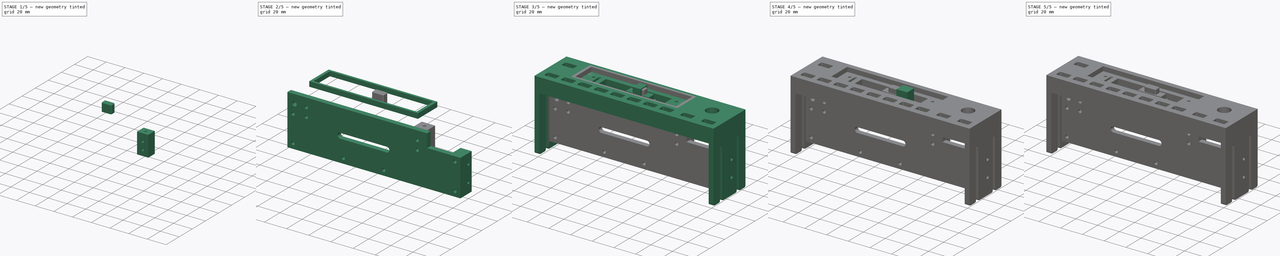
[diagram: build sequence overview — one tinted view per stage of 5, left to right]
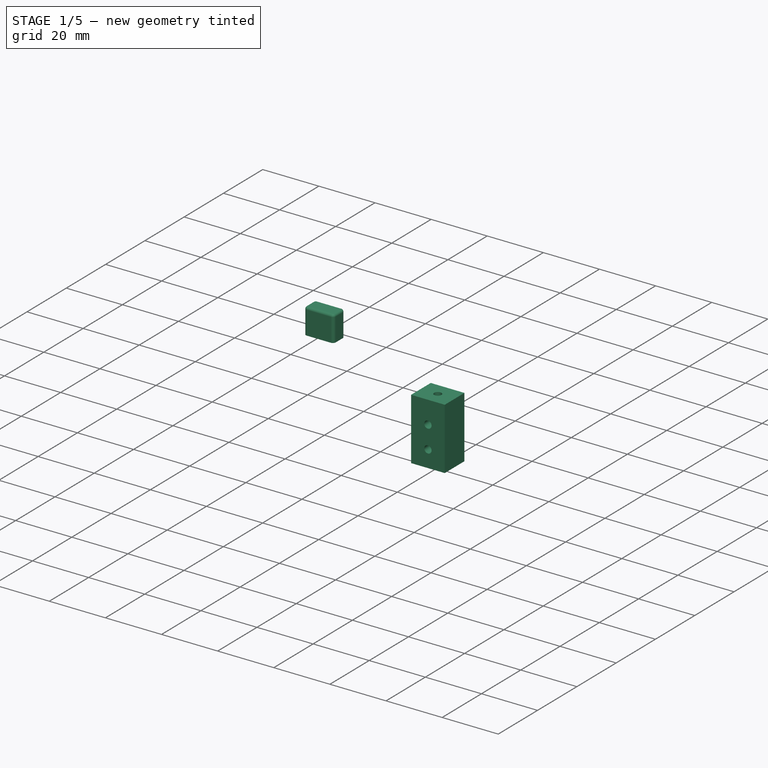
[diagram: stage 1 of 5 — iso view after this stage's code; geometry added in this stage tinted green]
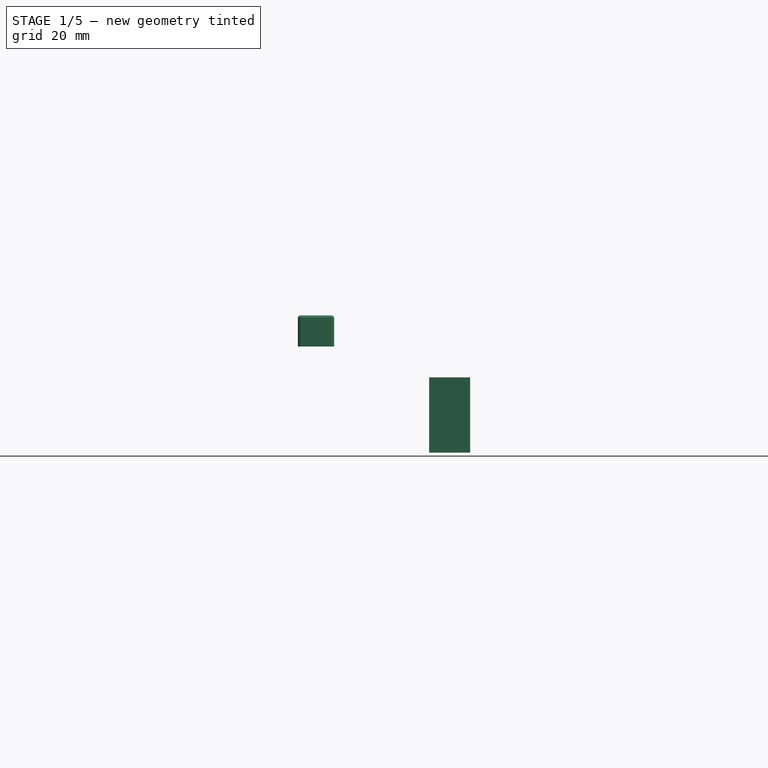
[diagram: stage 1 of 5 — front view after this stage's code; geometry added in this stage tinted green]
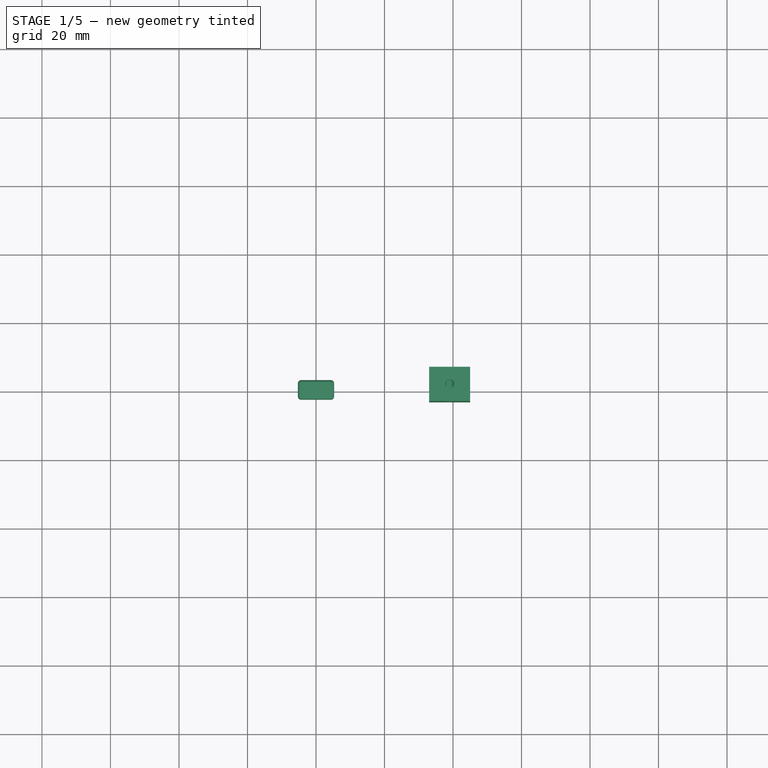
[diagram: stage 1 of 5 — top view after this stage's code; geometry added in this stage tinted green]
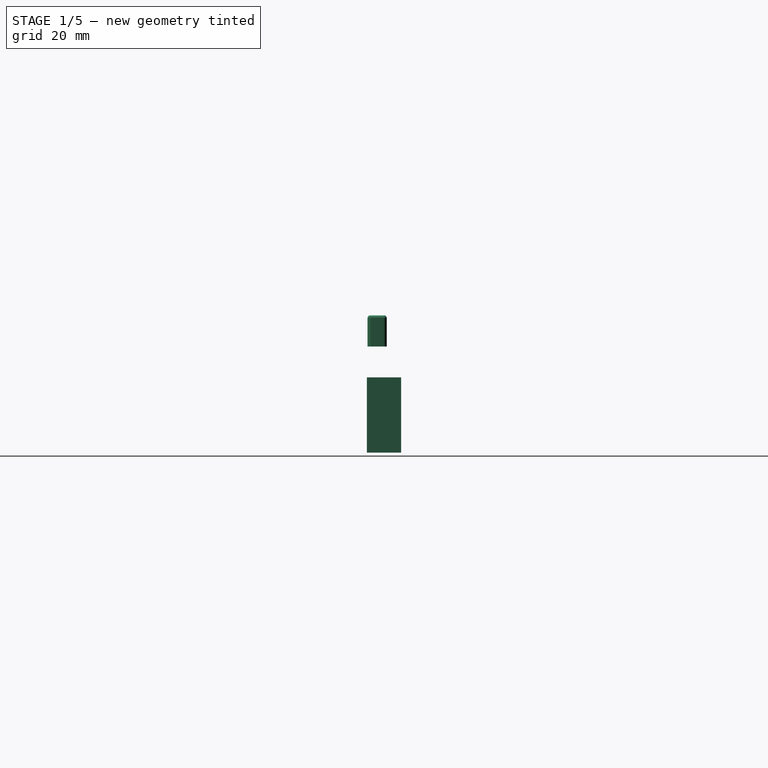
[diagram: stage 1 of 5 — right view after this stage's code; geometry added in this stage tinted green]
FCSTD DOCUMENT  (FreeCAD 0.16R6706 (Git))
Label: bendix_king_kt_76c
License: All rights reserved
LicenseURL: http://en.wikipedia.org/wiki/All_rights_reserved
objects: Sketcher::SketchObject×25, PartDesign::Pad×20, App::DocumentObjectGroup×8, Part::Cut×4, PartDesign::Pocket×4, Part::MultiCommon×3, Part::Part2DObjectPython×3, Part::Fillet×2, Part::FeaturePython×2, Part::MultiFuse×1, Image::ImagePlane×1
note: 88 computed .brp shape members not serialized (recipe doc carries the construction recipe); baked Part::Feature solids carry a one-line shape summary decoded from their .brp

FEATURE [App::DocumentObjectGroup] Group006  label="Side bracket"
  Group = -> [Pad039,Pocket002,Pocket003]
FEATURE [Sketcher::SketchObject] Sketch057  label="Sketch (front bracket)"
  Placement = pos=(0,-3,0) rot=(0,0.707107,0.707107;3.14159rad)
  sketch-geometry (4):
    g0: LineSegment StartX=-45.0119 StartY=-9 StartZ=0 EndX=-33.0119 EndY=-9 EndZ=0
    g1: LineSegment StartX=-33.0119 StartY=-9 StartZ=0 EndX=-33.0119 EndY=-31 EndZ=0
    g2: LineSegment StartX=-33.0119 StartY=-31 StartZ=0 EndX=-45.0119 EndY=-31 EndZ=0
    g3: LineSegment StartX=-45.0119 StartY=-31 StartZ=0 EndX=-45.0119 EndY=-9 EndZ=0
  constraints (11):
    c: Coincident(g0,g1)
    c: Coincident(g1,g2)
    c: Coincident(g2,g3)
    c: Coincident(g3,g0)
    c: Horizontal(g0)
    c: Horizontal(g2)
    c: Vertical(g1)
    c: Vertical(g3)
    c: DistanceX(g2,g2) = 12
    c: DistanceY(g3,g3) = 22
    c: DistanceY(g0,g-1) = 9
FEATURE [PartDesign::Pad] Pad  label="Pad (front bracket)"
  Length = 10
  Length2 = 100
  Placement = pos=(0,-3,0) rot=(0,0.707107,0.707107;3.14159rad)
  Sketch = -> Sketch057
  Type = 0
FEATURE [Sketcher::SketchObject] Sketch058  label="Sketch (front bracket bottom holes)"
  ExternalGeometry = -> [Pad]
  Placement = pos=(0,-3,0) rot=(0,-0.707107,0.707107;3.14159rad)
  Support = -> Pad [Face5]
  sketch-geometry (5):
    g0: Circle CenterX=-39.0119 CenterY=25 CenterZ=0 NormalX=0 NormalY=0 NormalZ=1 Radius=1.3
    g1: Circle CenterX=-39.0119 CenterY=17 CenterZ=0 NormalX=0 NormalY=0 NormalZ=1 Radius=1.3
    g2: LineSegment [constr] StartX=-39.0119 StartY=25 StartZ=0 EndX=-39.0119 EndY=17 EndZ=0
    g3: LineSegment [constr] StartX=-45.0119 StartY=9 StartZ=0 EndX=-39.0119 EndY=17 EndZ=0
    g4: LineSegment [constr] StartX=-39.0119 StartY=17 StartZ=0 EndX=-33.0119 EndY=9 EndZ=0
  constraints (12):
    c: Radius(g1) = 1.3
    c: Equal(g1,g0)
    c: Coincident(g2,g0)
    c: Coincident(g2,g1)
    c: Vertical(g2)
    c: Coincident(g3,g-3)
    c: Coincident(g3,g1)
    c: Coincident(g4,g1)
    c: Coincident(g4,g-3)
    c: Equal(g4,g3)
    c: DistanceY(g2,g2) = 8
    c: DistanceY(g3,g1) = 8
FEATURE [PartDesign::Pocket] Pocket  label="Pocket (front bracket bottom holes)"
  Length = 8
  Placement = pos=(0,-3,0) rot=(0,0.707107,0.707107;3.14159rad)
  Sketch = -> Sketch058
  Type = 0
FEATURE [Part::Part2DObjectPython] Clone2D002  label="Clone of Sketch (electronics mount) (2D)"  # Draft 2D object (typed FeaturePython)
  Objects = -> [Sketch053]
  Placement = pos=(0,-3,0) rot=(0,0,1;0rad)
  Scale = (1,1,1)
FEATURE [App::DocumentObjectGroup] Group005  label="Export"
  Group = -> [Clone2D,Clone2D001,Clone2D002]
FEATURE [App::DocumentObjectGroup] Group002  label="Panels"
  Group = -> [Pad030,Pad031,Group005,Pad033,Pad034,Pad035,Pad038]
FEATURE [Sketcher::SketchObject] Sketch059  label="Sketch (front bracket front hole)"
  ExternalGeometry = -> [Pocket]
  Placement = pos=(0,-3,-9) rot=(0,0,1;0rad)
  Support = -> Pocket [Face1]
  sketch-geometry (1):
    g0: Circle CenterX=39.0119 CenterY=5 CenterZ=0 NormalX=0 NormalY=0 NormalZ=1 Radius=1.3
  constraints (3):
    c: Radius(g0) = 1.3
    c: DistanceY(g-1,g0) = 5
    c: DistanceX(g-3,g0) = 6
FEATURE [PartDesign::Pocket] Pocket004  label="Pocket (front bracket front hole)"
  Length = 8
  Placement = pos=(0,-3,0) rot=(0,0.707107,0.707107;3.14159rad)
  Sketch = -> Sketch059
  Type = 0
FEATURE [App::DocumentObjectGroup] Group007  label="Front bracket"
  Group = -> [Pad,Pocket,Pocket004]
FEATURE [App::DocumentObjectGroup] Group004  label="Bracket"
  Group = -> [Group006,Group007]
FEATURE [Sketcher::SketchObject] Sketch060  label="Sketch (button)"
  sketch-geometry (11):
    g0: LineSegment StartX=-4.3 StartY=2.8 StartZ=0 EndX=4.3 EndY=2.8 EndZ=0
    g1: LineSegment StartX=5.3 StartY=1.8 StartZ=0 EndX=5.3 EndY=-1.8 EndZ=0
    g2: LineSegment StartX=4.3 StartY=-2.8 StartZ=0 EndX=-4.3 EndY=-2.8 EndZ=0
    g3: LineSegment StartX=-5.3 StartY=-1.8 StartZ=0 EndX=-5.3 EndY=1.8 EndZ=0
    g4: ArcOfCircle CenterX=-4.3 CenterY=1.8 CenterZ=0 NormalX=0 NormalY=0 NormalZ=1 Radius=1 StartAngle=1.5708 EndAngle=3.14159
    g5: ArcOfCircle CenterX=4.3 CenterY=1.8 CenterZ=0 NormalX=0 NormalY=0 NormalZ=1 Radius=1 StartAngle=0 EndAngle=1.5708
    g6: ArcOfCircle CenterX=4.3 CenterY=-1.8 CenterZ=0 NormalX=0 NormalY=0 NormalZ=1 Radius=1 StartAngle=4.71239 EndAngle=6.28319
    g7: ArcOfCircle CenterX=-4.3 CenterY=-1.8 CenterZ=0 NormalX=0 NormalY=0 NormalZ=1 Radius=1 StartAngle=3.14159 EndAngle=4.71239
    g8: GeomPoint [constr] X=0 Y=0 Z=0
    g9: LineSegment [constr] StartX=-5.3 StartY=1.8 StartZ=0 EndX=5.3 EndY=1.8 EndZ=0
    g10: LineSegment [constr] StartX=-4.3 StartY=2.8 StartZ=0 EndX=-4.3 EndY=-2.8 EndZ=0
  constraints (24):
    c: Horizontal(g0)
    c: Horizontal(g2)
    c: Vertical(g1)
    c: Vertical(g3)
    c: Tangent(g3,g4) = 1.5708
    c: Tangent(g0,g4) = 1.5708
    c: Tangent(g0,g5) = 1.5708
    c: Tangent(g1,g5) = 1.5708
    c: Tangent(g1,g6) = 1.5708
    c: Tangent(g2,g6) = 1.5708
    c: Tangent(g2,g7) = 1.5708
    c: Tangent(g3,g7) = 1.5708
    c: Radius(g7) = 1
    c: Equal(g7,g4)
    c: Equal(g7,g5)
    c: Equal(g7,g6)
    c: Symmetric(g4,g6,g8)
    c: Coincident(g9,g3)
    c: Coincident(g9,g1)
    c: Coincident(g10,g0)
    c: Coincident(g10,g2)
    c: DistanceX(g9,g9) = 10.6
    c: DistanceY(g10,g10) = 5.6
    c: Coincident(g8,g-1)
FEATURE [Sketcher::SketchObject] Sketch061  label="Sketch (button hole)"
  sketch-geometry (6):
    g0: LineSegment StartX=-1.625 StartY=1.1 StartZ=0 EndX=1.625 EndY=1.1 EndZ=0
    g1: LineSegment StartX=1.625 StartY=1.1 StartZ=0 EndX=1.625 EndY=-1.1 EndZ=0
    g2: LineSegment StartX=1.625 StartY=-1.1 StartZ=0 EndX=-1.625 EndY=-1.1 EndZ=0
    g3: LineSegment StartX=-1.625 StartY=-1.1 StartZ=0 EndX=-1.625 EndY=1.1 EndZ=0
    g4: LineSegment [constr] StartX=-1.625 StartY=1.1 StartZ=0 EndX=0 EndY=0 EndZ=0
    g5: LineSegment [constr] StartX=0 StartY=0 StartZ=0 EndX=1.625 EndY=-1.1 EndZ=0
  constraints (16):
    c: Coincident(g0,g1)
    c: Coincident(g1,g2)
    c: Coincident(g2,g3)
    c: Coincident(g3,g0)
    c: Horizontal(g0)
    c: Horizontal(g2)
    c: Vertical(g1)
    c: Vertical(g3)
    c: DistanceX(g0,g0) = 3.25
    c: DistanceY(g1,g1) = 2.2
    c: Coincident(g4,g0)
    c: Coincident(g4,g-1)
    c: Coincident(g5,g-1)
    c: Coincident(g5,g1)
    c: Equal(g5,g4)
    c: Parallel(g5,g4)
FEATURE [PartDesign::Pad] Pad040  label="Pad (button hole)"
  Length = 3
  Length2 = 100
  Sketch = -> Sketch061
  Type = 0
FEATURE [PartDesign::Pad] Pad041  label="Pad (button)"
  Length = 9.1
  Length2 = 100
  Sketch = -> Sketch060
  Type = 0
FEATURE [Part::Fillet] Fillet  label="Fillet (button)"
  Base = -> Pad041
  Edges = 8 edges r=0.8: [Edge4,Edge7,Edge10,Edge13,Edge16,Edge19,Edge22,Edge24]
FEATURE [Part::Cut] Cut  label="Cut (button)"
  Base = -> Fillet
  Tool = -> Pad040
FEATURE [App::DocumentObjectGroup] Group001  label="Buttons"
  Group = -> [Pad041,Cut]
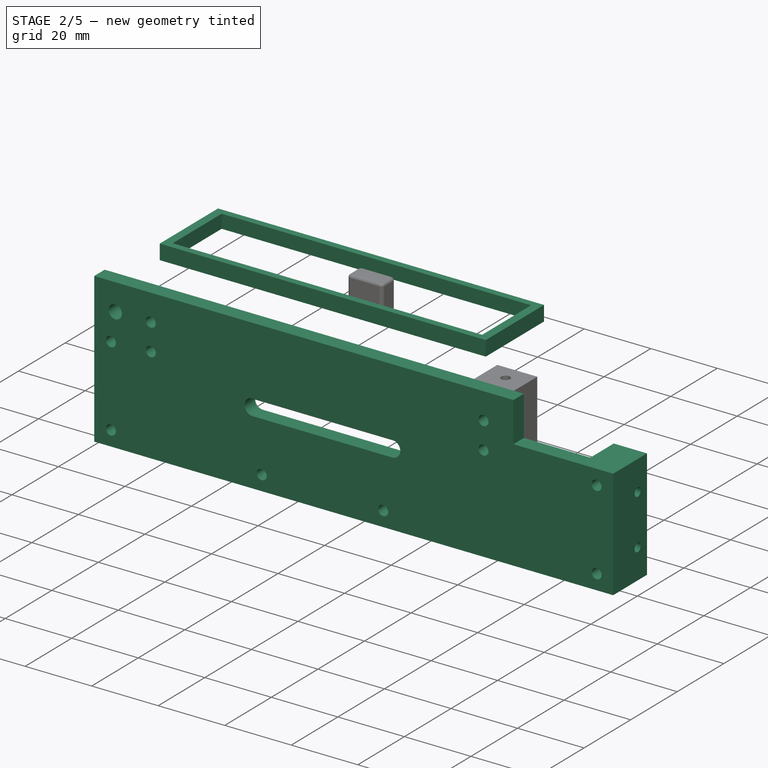
[diagram: stage 2 of 5 — iso view after this stage's code; geometry added in this stage tinted green]
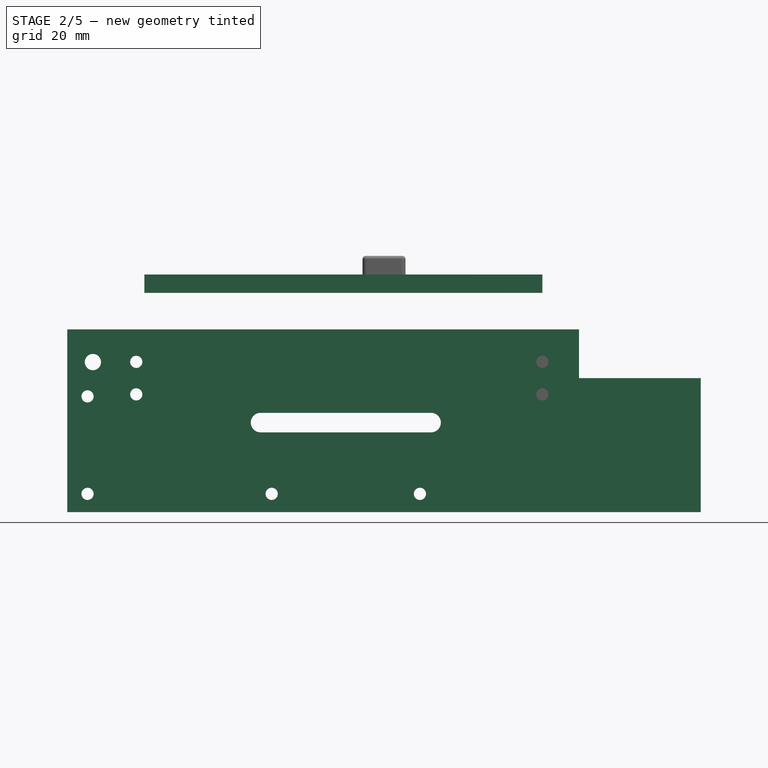
[diagram: stage 2 of 5 — front view after this stage's code; geometry added in this stage tinted green]
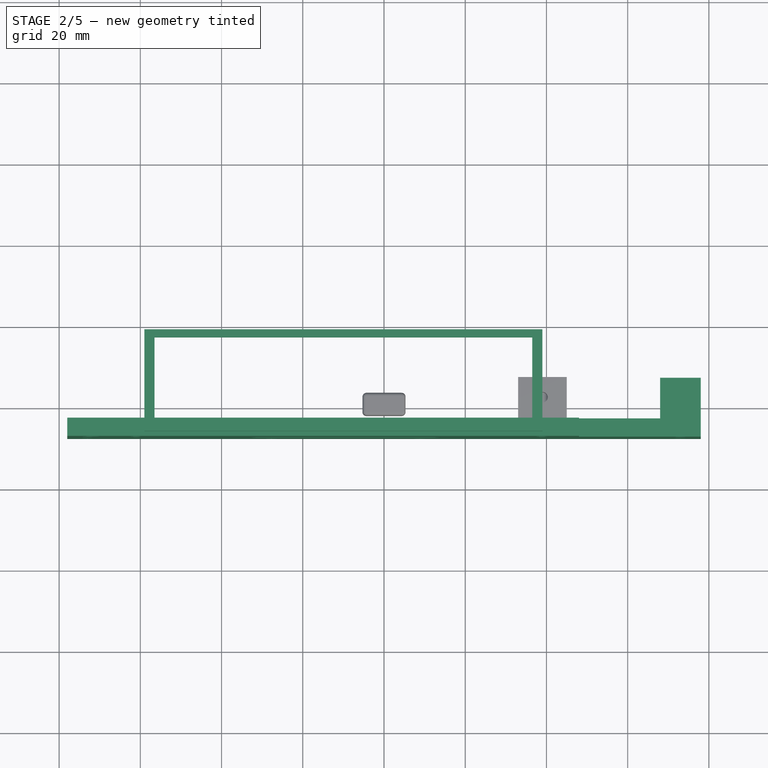
[diagram: stage 2 of 5 — top view after this stage's code; geometry added in this stage tinted green]
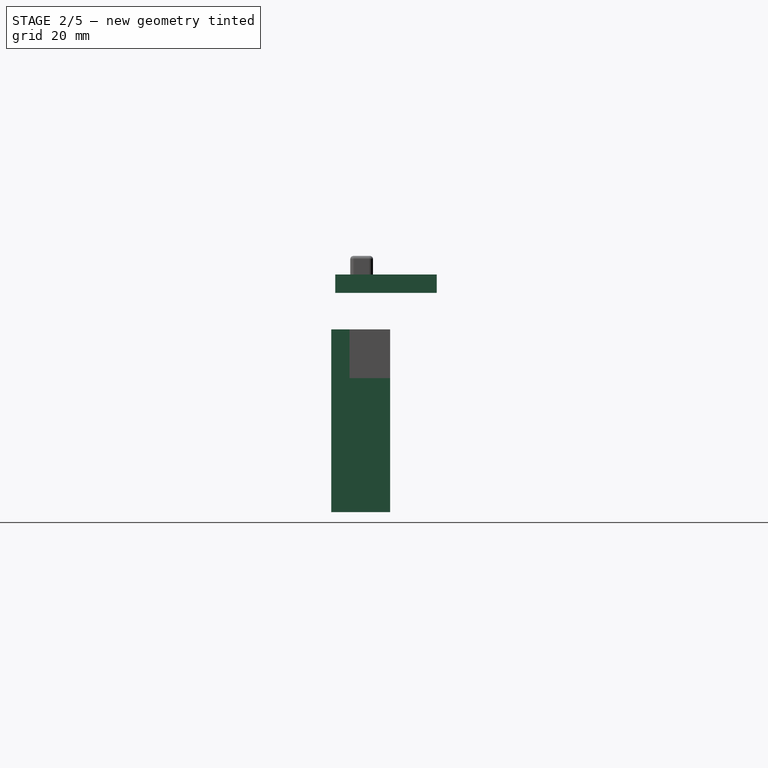
[diagram: stage 2 of 5 — right view after this stage's code; geometry added in this stage tinted green]
FEATURE [Sketcher::SketchObject] Sketch051
  sketch-geometry (9):
    g0: LineSegment StartX=-59 StartY=18.5 StartZ=0 EndX=39 EndY=18.5 EndZ=0
    g1: LineSegment StartX=39 StartY=18.5 StartZ=0 EndX=39 EndY=-6.5 EndZ=0
    g2: LineSegment StartX=39 StartY=-6.5 StartZ=0 EndX=-59 EndY=-6.5 EndZ=0
    g3: LineSegment StartX=-59 StartY=-6.5 StartZ=0 EndX=-59 EndY=18.5 EndZ=0
    g4: LineSegment StartX=-56.5 StartY=16.5 StartZ=0 EndX=36.5 EndY=16.5 EndZ=0
    g5: LineSegment StartX=36.5 StartY=16.5 StartZ=0 EndX=36.5 EndY=-4.5 EndZ=0
    g6: LineSegment StartX=36.5 StartY=-4.5 StartZ=0 EndX=-56.5 EndY=-4.5 EndZ=0
    g7: LineSegment StartX=-56.5 StartY=-4.5 StartZ=0 EndX=-56.5 EndY=16.5 EndZ=0
    g8: GeomPoint [constr] X=-10 Y=6 Z=0
  constraints (24):
    c: Coincident(g0,g1)
    c: Coincident(g1,g2)
    c: Coincident(g2,g3)
    c: Coincident(g3,g0)
    c: Horizontal(g0)
    c: Horizontal(g2)
    c: Vertical(g1)
    c: Vertical(g3)
    c: Coincident(g4,g5)
    c: Coincident(g5,g6)
    c: Coincident(g6,g7)
    c: Coincident(g7,g4)
    c: Horizontal(g4)
    c: Horizontal(g6)
    c: Vertical(g5)
    c: Vertical(g7)
    c: DistanceX(g4,g4) = 93
    c: DistanceY(g5,g5) = 21
    c: Symmetric(g4,g5,g8)
    c: Symmetric(g0,g1,g8)
    c: DistanceX(g8,g-1) = 10
    c: DistanceY(g-1,g8) = 6
    c: DistanceY(g1,g1) = 25
    c: DistanceX(g0,g0) = 98
FEATURE [PartDesign::Pad] Pad036
  Length = 4.5
  Length2 = 100
  Sketch = -> Sketch051
  Type = 0
FEATURE [Sketcher::SketchObject] Sketch052
  Placement = pos=(0,0,-0.5) rot=(0,0,1;0rad)
  sketch-geometry (5):
    g0: LineSegment StartX=-57 StartY=17.2 StartZ=0 EndX=37 EndY=17.2 EndZ=0
    g1: LineSegment StartX=37 StartY=17.2 StartZ=0 EndX=37 EndY=-5.2 EndZ=0
    g2: LineSegment StartX=37 StartY=-5.2 StartZ=0 EndX=-57 EndY=-5.2 EndZ=0
    g3: LineSegment StartX=-57 StartY=-5.2 StartZ=0 EndX=-57 EndY=17.2 EndZ=0
    g4: GeomPoint [constr] X=-10 Y=6 Z=0
  constraints (13):
    c: Coincident(g0,g1)
    c: Coincident(g1,g2)
    c: Coincident(g2,g3)
    c: Coincident(g3,g0)
    c: Horizontal(g0)
    c: Horizontal(g2)
    c: Vertical(g1)
    c: Vertical(g3)
    c: DistanceX(g0,g0) = 94
    c: DistanceY(g1,g1) = 22.4
    c: Symmetric(g0,g1,g4)
    c: DistanceX(g4,g-1) = 10
    c: DistanceY(g-1,g4) = 6
FEATURE [PartDesign::Pad] Pad037
  Length = 4.5
  Length2 = 100
  Placement = pos=(0,0,-0.5) rot=(0,0,1;0rad)
  Sketch = -> Sketch052
  Type = 0
FEATURE [Part::Cut] Cut006  label="Cut (bezel)"
  Base = -> Pad036
  Tool = -> Pad037
FEATURE [Sketcher::SketchObject] Sketch053  label="Sketch (electronics mount)"
  Placement = pos=(0,-3,0) rot=(0,0.707107,0.707107;3.14159rad)
  sketch-geometry (39):
    g0: LineSegment StartX=-48 StartY=-9 StartZ=0 EndX=78 EndY=-9 EndZ=0
    g1: LineSegment StartX=78 StartY=-9 StartZ=0 EndX=78 EndY=-54 EndZ=0
    g2: LineSegment StartX=78 StartY=-54 StartZ=0 EndX=-78 EndY=-54 EndZ=0
    g3: LineSegment StartX=-78 StartY=-54 StartZ=0 EndX=-78 EndY=-21 EndZ=0
    g4: LineSegment StartX=-48 StartY=-21 StartZ=0 EndX=-78 EndY=-21 EndZ=0
    g5: Circle CenterX=-73 CenterY=-49.5 CenterZ=0 NormalX=0 NormalY=0 NormalZ=1 Radius=1.5
    g6: Circle CenterX=-73 CenterY=-25.5 CenterZ=0 NormalX=0 NormalY=0 NormalZ=1 Radius=1.5
    g7: Circle CenterX=73 CenterY=-25.5 CenterZ=0 NormalX=0 NormalY=0 NormalZ=1 Radius=1.5
    g8: Circle CenterX=73 CenterY=-49.5 CenterZ=0 NormalX=0 NormalY=0 NormalZ=1 Radius=1.5
    g9: LineSegment [constr] StartX=-78 StartY=-21 StartZ=0 EndX=-73 EndY=-25.5 EndZ=0
    g10: LineSegment [constr] StartX=-78 StartY=-54 StartZ=0 EndX=-73 EndY=-49.5 EndZ=0
    g11: LineSegment [constr] StartX=-73 StartY=-25.5 StartZ=0 EndX=-73 EndY=-49.5 EndZ=0
    g12: LineSegment [constr] StartX=-73 StartY=-49.5 StartZ=0 EndX=73 EndY=-49.5 EndZ=0
    g13: LineSegment [constr] StartX=73 StartY=-49.5 StartZ=0 EndX=73 EndY=-25.5 EndZ=0
    g14: LineSegment [constr] StartX=-73 StartY=-25.5 StartZ=0 EndX=73 EndY=-25.5 EndZ=0
    g15: LineSegment [constr] StartX=73 StartY=-49.5 StartZ=0 EndX=78 EndY=-54 EndZ=0
    g16: Circle CenterX=61 CenterY=-17 CenterZ=0 NormalX=0 NormalY=0 NormalZ=1 Radius=1.5
    g17: Circle CenterX=61 CenterY=-25 CenterZ=0 NormalX=0 NormalY=0 NormalZ=1 Radius=1.5
    g18: Circle CenterX=-39 CenterY=-17 CenterZ=0 NormalX=0 NormalY=0 NormalZ=1 Radius=1.5
    g19: Circle CenterX=-39 CenterY=-25 CenterZ=0 NormalX=0 NormalY=0 NormalZ=1 Radius=1.5
    g20: LineSegment [constr] StartX=61 StartY=-17 StartZ=0 EndX=61 EndY=-25 EndZ=0
    g21: LineSegment [constr] StartX=-39 StartY=-17 StartZ=0 EndX=-39 EndY=-25 EndZ=0
    g22: LineSegment [constr] StartX=-39 StartY=-17 StartZ=0 EndX=61 EndY=-17 EndZ=0
    g23: LineSegment [constr] StartX=61 StartY=-25 StartZ=0 EndX=-39 EndY=-25 EndZ=0
    g24: LineSegment StartX=-48 StartY=-9 StartZ=0 EndX=-48 EndY=-21 EndZ=0
    g25: Circle CenterX=-8.84621 CenterY=-49.5 CenterZ=0 NormalX=0 NormalY=0 NormalZ=1 Radius=1.5
    g26: Circle CenterX=27.6538 CenterY=-49.5 CenterZ=0 NormalX=0 NormalY=0 NormalZ=1 Radius=1.5
    g27: LineSegment [constr] StartX=-8.84621 StartY=-49.5 StartZ=0 EndX=27.6538 EndY=-49.5 EndZ=0
    g28: Circle CenterX=71.6799 CenterY=-17.0527 CenterZ=0 NormalX=0 NormalY=0 NormalZ=1 Radius=2
    g29: LineSegment [constr] StartX=-11.5962 StartY=-30.25 StartZ=0 EndX=30.4038 EndY=-30.25 EndZ=0
    g30: LineSegment [constr] StartX=30.4038 StartY=-30.25 StartZ=0 EndX=30.4038 EndY=-52.25 EndZ=0
    g31: LineSegment [constr] StartX=30.4038 StartY=-52.25 StartZ=0 EndX=-11.5962 EndY=-52.25 EndZ=0
    g32: LineSegment [constr] StartX=-11.5962 StartY=-52.25 StartZ=0 EndX=-11.5962 EndY=-30.25 EndZ=0
    g33: ArcOfCircle CenterX=-11.5962 CenterY=-31.95 CenterZ=0 NormalX=0 NormalY=0 NormalZ=1 Radius=2.4 StartAngle=1.5708 EndAngle=4.71239
    g34: ArcOfCircle CenterX=30.4038 CenterY=-31.95 CenterZ=0 NormalX=0 NormalY=0 NormalZ=1 Radius=2.4 StartAngle=4.71239 EndAngle=7.85398
    g35: LineSegment StartX=-11.5962 StartY=-34.35 StartZ=0 EndX=30.4038 EndY=-34.35 EndZ=0
    g36: LineSegment StartX=-11.5962 StartY=-29.55 StartZ=0 EndX=30.4038 EndY=-29.55 EndZ=0
    g37: LineSegment [constr] StartX=-11.5962 StartY=-52.25 StartZ=0 EndX=-8.84621 EndY=-49.5 EndZ=0
    g38: LineSegment [constr] StartX=27.6538 StartY=-49.5 StartZ=0 EndX=30.4038 EndY=-52.25 EndZ=0
  constraints (98):
    c: Coincident(g0,g1)
    c: Coincident(g1,g2)
    c: Coincident(g2,g3)
    c: Horizontal(g0)
    c: Horizontal(g2)
    c: Vertical(g1)
    c: Vertical(g3)
    c: DistanceX(g2,g2) = 156
    c: Symmetric(g2,g1,g-2)
    c: Horizontal(g4)
    c: Coincident(g3,g4)
    c: DistanceY(g1,g1) = 45
    c: DistanceX(g4,g4) = 30
    c: DistanceY(g4,g0) = 12
    c: DistanceY(g0,g-1) = 9
    c: Radius(g6) = 1.5
    c: Equal(g6,g5)
    c: Equal(g6,g7)
    c: Equal(g6,g8)
    c: Coincident(g9,g3)
    c: Coincident(g9,g6)
    c: Coincident(g10,g2)
    c: Coincident(g10,g5)
    c: Coincident(g11,g6)
    c: Coincident(g11,g5)
    c: Vertical(g11)
    c: Coincident(g12,g5)
    c: Coincident(g12,g8)
    c: Horizontal(g12)
    c: Coincident(g13,g8)
    c: Vertical(g13)
    c: Coincident(g14,g6)
    c: Coincident(g14,g7)
    c: Coincident(g7,g13)
    c: Coincident(g15,g8)
    c: Coincident(g15,g1)
    c: Equal(g15,g10)
    c: DistanceX(g2,g5) = 5
    c: Equal(g9,g10)
    c: Equal(g10,g15)
    c: DistanceY(g11,g11) = 24
    c: Radius(g16) = 1.5
    c: Equal(g16,g17)
    c: Equal(g16,g19)
    c: Equal(g16,g18)
    c: Coincident(g20,g16)
    c: Coincident(g20,g17)
    c: Coincident(g21,g18)
    c: Coincident(g21,g19)
    c: Vertical(g21)
    c: Vertical(g20)
    c: Coincident(g22,g18)
    c: Coincident(g22,g16)
    c: Horizontal(g22)
    c: Coincident(g23,g17)
    c: Horizontal(g23)
    c: Coincident(g19,g23)
    c: DistanceY(g21,g21) = 8
    c: DistanceY(g19,g0) = 16
    c: DistanceX(g19,g-1) = 39
    c: DistanceX(g-1,g17) = 61
    c: Coincident(g24,g0)
    c: Coincident(g24,g4)
    c: Vertical(g24)
    c: Coincident(g27,g25)
    c: Coincident(g27,g26)
    c: Horizontal(g27)
    c: DistanceX(g27,g27) = 36.5
    c: Radius(g26) = 1.5
    c: Equal(g26,g25)
    c: PointOnObject(g26,g12)
    c: Radius(g28) = 2
    c: Coincident(g29,g30)
    c: Coincident(g30,g31)
    c: Coincident(g31,g32)
    c: Coincident(g32,g29)
    c: Horizontal(g29)
    c: Horizontal(g31)
    c: Vertical(g30)
    c: Vertical(g32)
    c: DistanceX(g29,g29) = 42
    c: DistanceY(g30,g30) = 22
    c: Tangent(g33,g36) = 1.5708
    c: Tangent(g33,g35) = -1.5708
    c: Tangent(g35,g34) = -1.5708
    c: Tangent(g36,g34) = 1.5708
    c: Horizontal(g35)
    c: Equal(g33,g34)
    c: PointOnObject(g33,g32)
    c: PointOnObject(g34,g30)
    c: Radius(g34) = 2.4
    c: Coincident(g37,g31)
    c: Coincident(g37,g25)
    c: Coincident(g38,g26)
    c: Coincident(g38,g30)
    c: Equal(g38,g37)
    c: Angle(g30,g38) = 0.785398
    c: DistanceY(g33,g29) = 1.7
FEATURE [PartDesign::Pad] Pad038  label="Pad (electronics mount)"
  Length = 4.5
  Length2 = 100
  Placement = pos=(0,-3,0) rot=(0,0.707107,0.707107;3.14159rad)
  Reversed = true
  Sketch = -> Sketch053
  Type = 0
FEATURE [Sketcher::SketchObject] Sketch054  label="Sketch (side bracket)"
  Placement = pos=(0,-3,0) rot=(0,0.707107,0.707107;3.14159rad)
  sketch-geometry (9):
    g0: LineSegment StartX=-78 StartY=-54 StartZ=0 EndX=-68 EndY=-54 EndZ=0
    g1: LineSegment StartX=-68 StartY=-54 StartZ=0 EndX=-68 EndY=-21 EndZ=0
    g2: LineSegment StartX=-68 StartY=-21 StartZ=0 EndX=-78 EndY=-21 EndZ=0
    g3: LineSegment StartX=-78 StartY=-21 StartZ=0 EndX=-78 EndY=-54 EndZ=0
    g4: LineSegment [constr] StartX=-78 StartY=-21 StartZ=0 EndX=-73 EndY=-25.5 EndZ=0
    g5: LineSegment [constr] StartX=-73 StartY=-25.5 StartZ=0 EndX=-68 EndY=-21 EndZ=0
    g6: LineSegment [constr] StartX=-68 StartY=-54 StartZ=0 EndX=-73 EndY=-49.5 EndZ=0
    g7: LineSegment [constr] StartX=-73 StartY=-49.5 StartZ=0 EndX=-78 EndY=-54 EndZ=0
    g8: LineSegment [constr] StartX=-73 StartY=-25.5 StartZ=0 EndX=-73 EndY=-49.5 EndZ=0
  constraints (24):
    c: Coincident(g0,g1)
    c: Coincident(g1,g2)
    c: Coincident(g2,g3)
    c: Coincident(g3,g0)
    c: Horizontal(g0)
    c: Horizontal(g2)
    c: Vertical(g1)
    c: Vertical(g3)
    c: DistanceX(g0,g0) = 10
    c: DistanceY(g1,g1) = 33
    c: Coincident(g4,g2)
    c: Coincident(g5,g4)
    c: Coincident(g5,g1)
    c: Coincident(g7,g6)
    c: Coincident(g0,g6)
    c: Coincident(g0,g7)
    c: Equal(g6,g7)
    c: Equal(g7,g5)
    c: Equal(g5,g4)
    c: Coincident(g8,g4)
    c: Coincident(g8,g6)
    c: DistanceY(g8,g8) = 24
    c: DistanceY(g2,g-1) = 21
    c: DistanceX(g0,g-1) = 78
FEATURE [PartDesign::Pad] Pad039  label="Pad (side bracket)"
  Length = 10
  Length2 = 100
  Placement = pos=(0,-3,0) rot=(0,0.707107,0.707107;3.14159rad)
  Sketch = -> Sketch054
  Type = 0
FEATURE [Sketcher::SketchObject] Sketch055  label="Sketch (side bracket bottom holes)"
  ExternalGeometry = -> [Pad039]
  Placement = pos=(0,-3,0) rot=(0,-0.707107,0.707107;3.14159rad)
  Support = -> Pad039 [Face5]
  sketch-geometry (4):
    g0: Circle CenterX=-73 CenterY=49.5 CenterZ=0 NormalX=0 NormalY=0 NormalZ=1 Radius=1.3
    g1: Circle CenterX=-73 CenterY=25.5 CenterZ=0 NormalX=0 NormalY=0 NormalZ=1 Radius=1.3
    g2: LineSegment [constr] StartX=-78 StartY=54 StartZ=0 EndX=-73 EndY=49.5 EndZ=0
    g3: LineSegment [constr] StartX=-73 StartY=25.5 StartZ=0 EndX=-78 EndY=21 EndZ=0
  constraints (9):
    c: Coincident(g2,g-3)
    c: Coincident(g2,g0)
    c: Coincident(g3,g1)
    c: Coincident(g3,g-3)
    c: Equal(g3,g2)
    c: Radius(g0) = 1.3
    c: Equal(g0,g1)
    c: DistanceY(g1,g0) = 24
    c: DistanceX(g2,g0) = 5
FEATURE [PartDesign::Pocket] Pocket002  label="Pocket (side bracket bottom holes)"
  Length = 8
  Placement = pos=(0,-3,0) rot=(0,0.707107,0.707107;3.14159rad)
  Sketch = -> Sketch055
  Type = 0
FEATURE [Sketcher::SketchObject] Sketch056  label="Sketch (side bracket side holes)"
  Placement = pos=(78,-3,0) rot=(0,1,0;1.5708rad)
  Support = -> Pocket002 [Face2]
  sketch-geometry (3):
    g0: Circle CenterX=30 CenterY=6 CenterZ=0 NormalX=0 NormalY=0 NormalZ=1 Radius=1.3
    g1: Circle CenterX=45 CenterY=6 CenterZ=0 NormalX=0 NormalY=0 NormalZ=1 Radius=1.3
    g2: LineSegment [constr] StartX=30 StartY=6 StartZ=0 EndX=45 EndY=6 EndZ=0
  constraints (8):
    c: Radius(g0) = 1.3
    c: Equal(g0,g1)
    c: Coincident(g2,g0)
    c: Coincident(g2,g1)
    c: Horizontal(g2)
    c: DistanceX(g2,g2) = 15
    c: DistanceY(g-1,g0) = 6
    c: DistanceX(g-1,g0) = 30
FEATURE [PartDesign::Pocket] Pocket003  label="Pocket (side bracket side holes)"
  Length = 8
  Placement = pos=(0,-3,0) rot=(0,0.707107,0.707107;3.14159rad)
  Sketch = -> Sketch056
  Type = 0
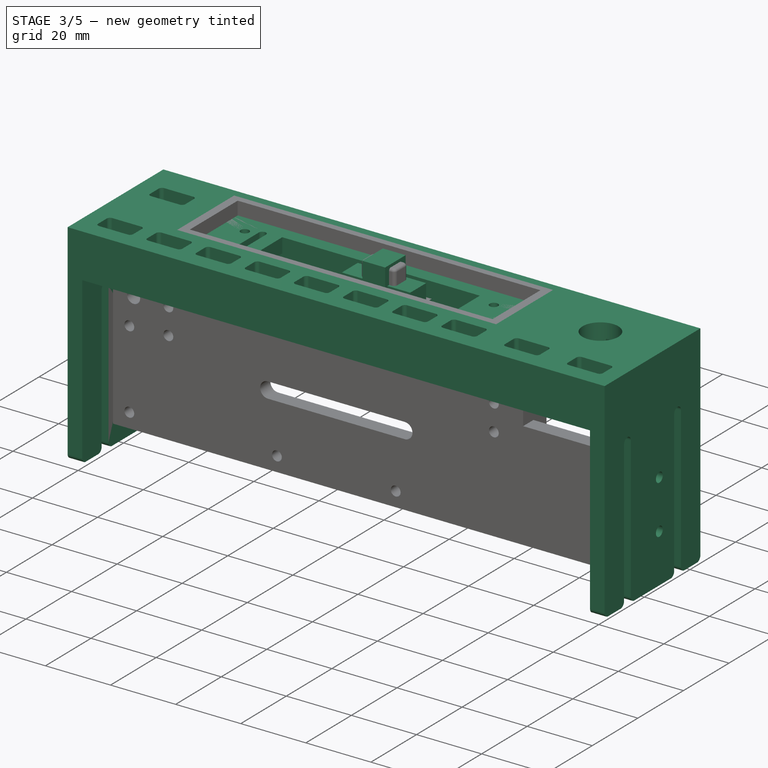
[diagram: stage 3 of 5 — iso view after this stage's code; geometry added in this stage tinted green]
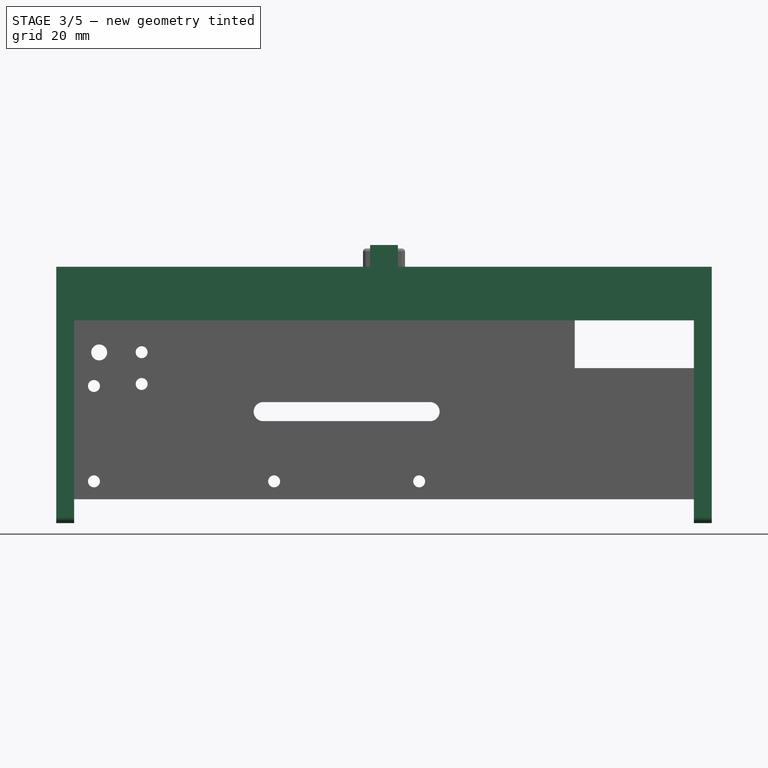
[diagram: stage 3 of 5 — front view after this stage's code; geometry added in this stage tinted green]
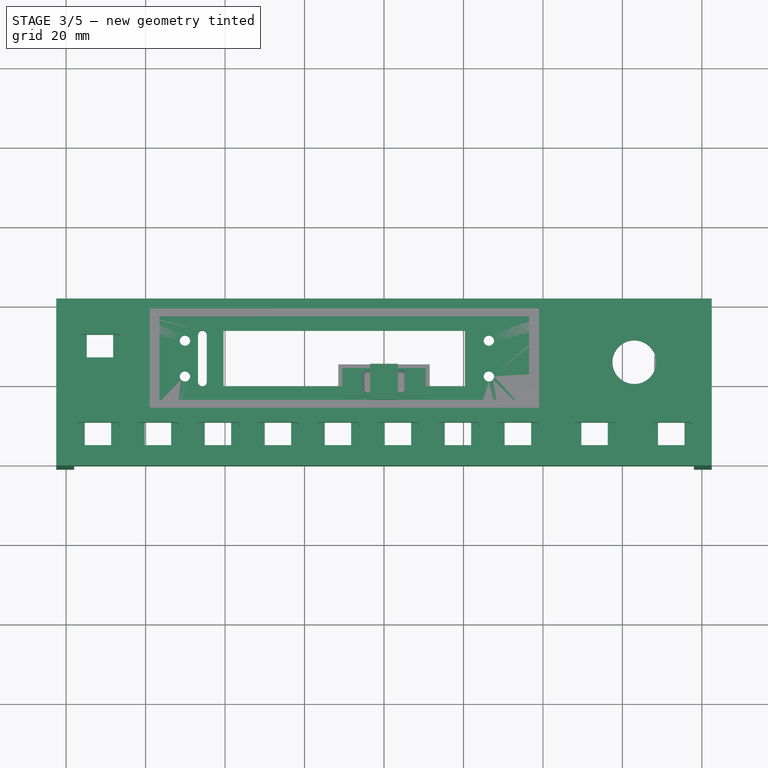
[diagram: stage 3 of 5 — top view after this stage's code; geometry added in this stage tinted green]
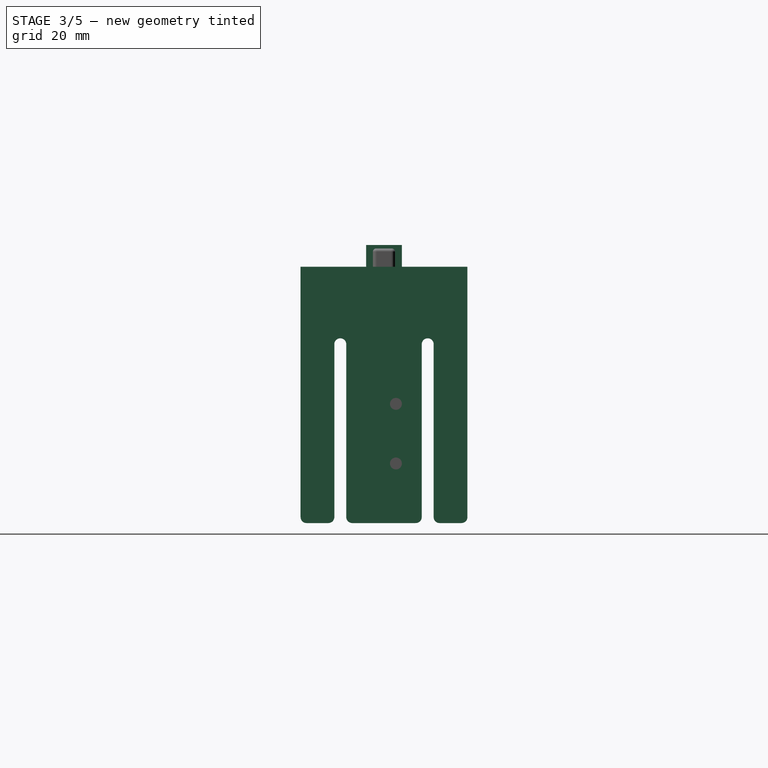
[diagram: stage 3 of 5 — right view after this stage's code; geometry added in this stage tinted green]
FEATURE [Sketcher::SketchObject] Sketch023  label="Sketch (panel)002"
  sketch-geometry (71):
    g0: ArcOfCircle CenterX=-51.9 CenterY=-57.2926 CenterZ=0 NormalX=0 NormalY=0 NormalZ=1 Radius=71.4049 StartAngle=1.51469 EndAngle=1.6269
    g1: ArcOfCircle CenterX=-51.9 CenterY=76.2926 CenterZ=0 NormalX=0 NormalY=0 NormalZ=1 Radius=71.4049 StartAngle=4.65629 EndAngle=4.76849
    g2: ArcOfCircle CenterX=-47.985 CenterY=12.4168 CenterZ=0 NormalX=0 NormalY=0 NormalZ=1 Radius=1.58572 StartAngle=0.0311628 EndAngle=1.51469
    g3: ArcOfCircle CenterX=-47.9849 CenterY=6.58322 CenterZ=0 NormalX=0 NormalY=0 NormalZ=1 Radius=1.58572 StartAngle=4.76849 EndAngle=6.25202
    g4: ArcOfCircle CenterX=-141.552 CenterY=9.49999 CenterZ=0 NormalX=0 NormalY=0 NormalZ=1 Radius=95.1985 StartAngle=6.25202 EndAngle=6.31435
    g5: ArcOfCircle CenterX=-55.815 CenterY=12.4168 CenterZ=0 NormalX=0 NormalY=0 NormalZ=1 Radius=1.58572 StartAngle=1.6269 EndAngle=3.11043
    g6: ArcOfCircle CenterX=-55.8151 CenterY=6.58322 CenterZ=0 NormalX=0 NormalY=0 NormalZ=1 Radius=1.58572 StartAngle=3.17276 EndAngle=4.65629
    g7: ArcOfCircle CenterX=37.7523 CenterY=9.49999 CenterZ=0 NormalX=0 NormalY=0 NormalZ=1 Radius=95.1985 StartAngle=3.11043 EndAngle=3.17276
    g8: LineSegment [constr] StartX=-55.904 StartY=14 StartZ=0 EndX=-55.904 EndY=5 EndZ=0
    g9: LineSegment [constr] StartX=-47.896 StartY=14 StartZ=0 EndX=-47.896 EndY=5 EndZ=0
    g10: LineSegment [constr] StartX=-46.4 StartY=6.53382 StartZ=0 EndX=-57.4 EndY=6.53382 EndZ=0
    g11: LineSegment [constr] StartX=-46.4 StartY=12.4662 StartZ=0 EndX=-57.4 EndY=12.4662 EndZ=0
    g12: LineSegment [constr] StartX=-57.4 StartY=12.4662 StartZ=0 EndX=-46.4 EndY=6.53382 EndZ=0
    g13: LineSegment [constr] StartX=-57.4 StartY=6.53382 StartZ=0 EndX=-46.4 EndY=12.4662 EndZ=0
    g14: LineSegment [constr] StartX=-55.904 StartY=14 StartZ=0 EndX=-47.896 EndY=5 EndZ=0
    g15: LineSegment [constr] StartX=-47.896 StartY=14 StartZ=0 EndX=-55.904 EndY=5 EndZ=0
    g16: GeomPoint [constr] X=-51.9 Y=9.5 Z=0
    g17: LineSegment [constr] StartX=37.7523 StartY=9.50017 StartZ=0 EndX=-51.9 EndY=76.2926 EndZ=0
    g18: LineSegment [constr] StartX=-51.9 StartY=9.5 StartZ=0 EndX=-55.815 EndY=12.4168 EndZ=0
    g19: LineSegment [constr] StartX=-55.815 StartY=12.4168 StartZ=0 EndX=-55.904 EndY=14 EndZ=0
    g20: LineSegment [constr] StartX=-55.815 StartY=12.4168 StartZ=0 EndX=-57.4 EndY=12.4662 EndZ=0
    g21: LineSegment [constr] StartX=-9.5 StartY=9.5 StartZ=0 EndX=9.5 EndY=9.5 EndZ=0
    g22: LineSegment [constr] StartX=-36.9 StartY=9.5 StartZ=0 EndX=-23.2 EndY=9.5 EndZ=0
    g23: LineSegment [constr] StartX=-51.9 StartY=9.5 StartZ=0 EndX=-36.9 EndY=9.5 EndZ=0
    g24: ArcOfCircle CenterX=-36.0974 CenterY=-72.9832 CenterZ=0 NormalX=0 NormalY=0 NormalZ=1 Radius=75.6405 StartAngle=1.52696 EndAngle=1.63531
    g25: ArcOfCircle CenterX=-36.0974 CenterY=61.9832 CenterZ=0 NormalX=0 NormalY=0 NormalZ=1 Radius=75.6405 StartAngle=4.64787 EndAngle=4.75622
    g26: ArcOfCircle CenterX=-32.8435 CenterY=1.20112 CenterZ=0 NormalX=0 NormalY=0 NormalZ=1 Radius=1.38492 StartAngle=0.0153234 EndAngle=1.52696
    g27: ArcOfCircle CenterX=-32.7816 CenterY=-12.1998 CenterZ=0 NormalX=0 NormalY=0 NormalZ=1 Radius=1.38492 StartAngle=4.71151 EndAngle=6.21441
    g28: ArcOfCircle CenterX=-123.687 CenterY=-5.93754 CenterZ=0 NormalX=0 NormalY=0 NormalZ=1 Radius=92.506 StartAngle=6.21441 EndAngle=6.36066
    g29: ArcOfCircle CenterX=-40.9604 CenterY=1.11515 CenterZ=0 NormalX=0 NormalY=0 NormalZ=1 Radius=1.38492 StartAngle=1.58059 EndAngle=3.06412
    g30: ArcOfCircle CenterX=-41.0267 CenterY=-12.1161 CenterZ=0 NormalX=0 NormalY=0 NormalZ=1 Radius=1.38492 StartAngle=3.27112 EndAngle=4.75043
    g31: ArcOfCircle CenterX=49.8873 CenterY=-5.93754 CenterZ=0 NormalX=0 NormalY=0 NormalZ=1 Radius=92.506 StartAngle=3.06412 EndAngle=3.21037
    g32: LineSegment [constr] StartX=-40.974 StartY=2.5 StartZ=0 EndX=-40.974 EndY=-13.5 EndZ=0
    g33: LineSegment [constr] StartX=-32.7829 StartY=2.58471 StartZ=0 EndX=-32.7829 EndY=-13.5847 EndZ=0
    g34: LineSegment [constr] StartX=-31.4 StartY=-12.295 StartZ=0 EndX=-42.4 EndY=-12.295 EndZ=0
    g35: LineSegment [constr] StartX=-31.4588 StartY=1.22234 StartZ=0 EndX=-42.3412 EndY=1.22234 EndZ=0
    g36: LineSegment [constr] StartX=-42.3412 StartY=1.22234 StartZ=0 EndX=-31.4 EndY=-12.295 EndZ=0
    g37: LineSegment [constr] StartX=-42.4 StartY=-12.295 StartZ=0 EndX=-31.4588 EndY=1.22234 EndZ=0
    g38: LineSegment [constr] StartX=-40.974 StartY=2.5 StartZ=0 EndX=-32.7829 EndY=-13.5847 EndZ=0
    g39: LineSegment [constr] StartX=-32.7829 StartY=2.58471 StartZ=0 EndX=-40.974 EndY=-13.5 EndZ=0
    g40: GeomPoint [constr] X=-36.9 Y=-5.5 Z=0
    g41: LineSegment [constr] StartX=-36.9 StartY=-5.5 StartZ=0 EndX=-40.9604 EndY=1.11515 EndZ=0
    g42: LineSegment [constr] StartX=-40.9604 StartY=1.11515 StartZ=0 EndX=-40.974 EndY=2.5 EndZ=0
    g43: LineSegment [constr] StartX=-40.9604 StartY=1.11515 StartZ=0 EndX=-42.3412 EndY=1.22234 EndZ=0
    g44: LineSegment [constr] StartX=-36.9 StartY=9.5 StartZ=0 EndX=-36.9 EndY=-5.5 EndZ=0
    g45: LineSegment [constr] StartX=-36.9 StartY=-5.5 StartZ=0 EndX=-23.2 EndY=-5.5 EndZ=0
    g46: LineSegment [constr] StartX=-9.5 StartY=-5.5 StartZ=0 EndX=9.5 EndY=-5.5 EndZ=0
    g47: ArcOfCircle CenterX=-52.036 CenterY=-77.0371 CenterZ=0 NormalX=0 NormalY=0 NormalZ=1 Radius=68.948 StartAngle=1.50861 EndAngle=1.62937
    g48: ArcOfCircle CenterX=-52.036 CenterY=55.319 CenterZ=0 NormalX=0 NormalY=0 NormalZ=1 Radius=68.948 StartAngle=4.65382 EndAngle=4.77457
    g49: ArcOfCircle CenterX=-47.8417 CenterY=-9.67267 CenterZ=0 NormalX=0 NormalY=0 NormalZ=1 Radius=1.45313 StartAngle=0.0201127 EndAngle=1.50861
    g50: ArcOfCircle CenterX=-47.8529 CenterY=-12.0461 CenterZ=0 NormalX=0 NormalY=0 NormalZ=1 Radius=1.45313 StartAngle=4.78227 EndAngle=6.26527
    g51: ArcOfCircle CenterX=-137.388 CenterY=-10.4416 CenterZ=0 NormalX=0 NormalY=0 NormalZ=1 Radius=91.0025 StartAngle=6.26527 EndAngle=6.29196
    g52: ArcOfCircle CenterX=-55.958 CenterY=-9.65598 CenterZ=0 NormalX=0 NormalY=0 NormalZ=1 Radius=1.45313 StartAngle=1.64944 EndAngle=3.13297
    g53: ArcOfCircle CenterX=-55.9469 CenterY=-12.063 CenterZ=0 NormalX=0 NormalY=0 NormalZ=1 Radius=1.45313 StartAngle=3.14789 EndAngle=4.62606
    g54: ArcOfCircle CenterX=34.6339 CenterY=-10.4369 CenterZ=0 NormalX=0 NormalY=0 NormalZ=1 Radius=92.0484 StartAngle=3.13297 EndAngle=3.15936
    g55: LineSegment [constr] StartX=-56.0722 StartY=-8.20734 StartZ=0 EndX=-56.0722 EndY=-13.5107 EndZ=0
    g56: LineSegment [constr] StartX=-47.7514 StartY=-8.22235 StartZ=0 EndX=-47.7514 EndY=-13.4957 EndZ=0
    g57: LineSegment [constr] StartX=-46.4 StartY=-12.0721 StartZ=0 EndX=-57.4 EndY=-12.0721 EndZ=0
    g58: LineSegment [constr] StartX=-46.3889 StartY=-9.64345 StartZ=0 EndX=-57.4111 EndY=-9.64345 EndZ=0
    g59: LineSegment [constr] StartX=-57.4111 StartY=-9.64345 StartZ=0 EndX=-46.4 EndY=-12.0721 EndZ=0
    g60: LineSegment [constr] StartX=-57.4 StartY=-12.0721 StartZ=0 EndX=-46.3889 EndY=-9.64345 EndZ=0
    g61: LineSegment [constr] StartX=-56.0722 StartY=-8.20734 StartZ=0 EndX=-47.7514 EndY=-13.4957 EndZ=0
    g62: LineSegment [constr] StartX=-47.7514 StartY=-8.22235 StartZ=0 EndX=-56.0722 EndY=-13.5107 EndZ=0
    g63: GeomPoint [constr] X=-51.9 Y=-10.859 Z=0
    g64: LineSegment [constr] StartX=-51.9 StartY=-10.859 StartZ=0 EndX=-55.958 EndY=-9.65598 EndZ=0
    g65: LineSegment [constr] StartX=-55.958 StartY=-9.65598 StartZ=0 EndX=-56.0722 EndY=-8.20734 EndZ=0
    g66: LineSegment [constr] StartX=-55.958 StartY=-9.65598 StartZ=0 EndX=-57.4111 EndY=-9.64345 EndZ=0
    g67: LineSegment [constr] StartX=-51.9 StartY=9.5 StartZ=0 EndX=-51.9 EndY=-10.859 EndZ=0
    g68: LineSegment StartX=-79.988 StartY=12.4279 StartZ=0 EndX=-58.988 EndY=12.4279 EndZ=0
    g69: LineSegment StartX=-58.988 StartY=12.4279 StartZ=0 EndX=-58.988 EndY=5.42785 EndZ=0
    g70: LineSegment StartX=-58.988 StartY=5.42785 StartZ=0 EndX=-79.988 EndY=5.42785 EndZ=0
  constraints (178):
    c: Coincident(g2,g0)
    c: Coincident(g3,g1)
    c: Coincident(g4,g2)
    c: Coincident(g4,g3)
    c: Coincident(g5,g0)
    c: Coincident(g6,g1)
    c: Coincident(g7,g5)
    c: Coincident(g7,g6)
    c: Coincident(g8,g0)
    c: Coincident(g8,g1)
    c: Coincident(g9,g0)
    c: Coincident(g9,g1)
    c: Vertical(g9)
    c: Coincident(g10,g3)
    c: Coincident(g10,g6)
    c: Horizontal(g10)
    c: Coincident(g11,g2)
    c: Coincident(g11,g5)
    c: Horizontal(g11)
    c: Vertical(g8)
    c: Equal(g5,g2)
    c: Equal(g2,g3)
    c: Equal(g3,g6)
    c: Tangent(g5,g7)
    c: Tangent(g3,g4)
    c: Tangent(g2,g0)
    c: Equal(g8,g9)
    c: Coincident(g12,g5)
    c: Coincident(g12,g3)
    c: Coincident(g13,g6)
    c: Coincident(g13,g2)
    c: Coincident(g14,g0)
    c: Coincident(g14,g1)
    c: Coincident(g15,g0)
    c: PointOnObject(g16,g12)
    c: PointOnObject(g16,g14)
    c: PointOnObject(g16,g13)
    c: PointOnObject(g16,g15)
    c: Coincident(g15,g1)
    c: Equal(g14,g15)
    c: Equal(g13,g12)
    c: Equal(g4,g7)
    c: Equal(g0,g1)
    c: DistanceX(g6,g3) = 11
    c: DistanceY(g1,g0) = 9
    c: Angle(g14,g12) = 0.349066
    c: Coincident(g17,g1)
    c: Coincident(g18,g16)
    c: Coincident(g18,g5)
    c: Parallel(g18,g17)
    c: Coincident(g19,g5)
    c: Coincident(g19,g0)
    c: Coincident(g20,g5)
    c: Coincident(g5,g20)
    c: Angle(g19,g20) = 1.48353
    c: Horizontal(g21)
    c: Horizontal(g22)
    c: Coincident(g23,g16)
    c: Horizontal(g23)
    c: DistanceX(g23,g23) = 15
    c: Coincident(g26,g24)
    c: Coincident(g27,g25)
    c: Coincident(g28,g26)
    c: Coincident(g28,g27)
    c: Coincident(g29,g24)
    c: Coincident(g30,g25)
    c: Coincident(g31,g29)
    c: Coincident(g31,g30)
    c: Coincident(g32,g24)
    c: Coincident(g32,g25)
    c: Coincident(g33,g24)
    c: Coincident(g33,g25)
    c: Vertical(g33)
    c: Coincident(g34,g27)
    c: Coincident(g34,g30)
    c: Horizontal(g34)
    c: Coincident(g35,g26)
    c: Coincident(g35,g29)
    c: Horizontal(g35)
    c: Vertical(g32)
    c: Equal(g29,g26)
    c: Equal(g26,g27)
    c: Equal(g27,g30)
    c: Tangent(g29,g31)
    c: Tangent(g27,g28)
    c: Tangent(g26,g24)
    c: Coincident(g36,g29)
    c: Coincident(g36,g27)
    c: Coincident(g37,g30)
    c: Coincident(g37,g26)
    c: Coincident(g38,g24)
    c: Coincident(g38,g25)
    c: Coincident(g39,g24)
    c: PointOnObject(g40,g36)
    c: PointOnObject(g40,g38)
    c: PointOnObject(g40,g37)
    c: PointOnObject(g40,g39)
    c: Coincident(g39,g25)
    c: Equal(g38,g39)
    c: Equal(g37,g36)
    c: Equal(g28,g31)
    c: Equal(g24,g25)
    c: Angle(g38,g36) = 0.20944
    c: Coincident(g41,g40)
    c: Coincident(g41,g29)
    c: Coincident(g42,g29)
    c: Coincident(g42,g24)
    c: Coincident(g43,g29)
    c: Coincident(g29,g43)
    c: Angle(g42,g43) = 1.48353
    c: Coincident(g44,g40)
    c: Vertical(g44)
    c: Coincident(g45,g40)
    c: Horizontal(g45)
    c: Horizontal(g46)
    c: Equal(g22,g45)
    c: Equal(g21,g46)
    c: DistanceY(g32,g32) = 16
    c: DistanceY(g44,g44) = 15
    c: Coincident(g49,g47)
    c: Coincident(g50,g48)
    c: Coincident(g51,g49)
    c: Coincident(g51,g50)
    c: Coincident(g52,g47)
    c: Coincident(g53,g48)
    c: Coincident(g54,g52)
    c: Coincident(g54,g53)
    c: Coincident(g55,g47)
    c: Coincident(g55,g48)
    c: Coincident(g56,g47)
    c: Coincident(g56,g48)
    c: Vertical(g56)
    c: Coincident(g57,g50)
    c: Coincident(g57,g53)
    c: Horizontal(g57)
    c: Coincident(g58,g49)
    c: Coincident(g58,g52)
    c: Horizontal(g58)
    c: Vertical(g55)
    c: Equal(g52,g49)
    c: Equal(g49,g50)
    c: Equal(g50,g53)
    c: Tangent(g52,g54)
    c: Tangent(g50,g51)
    c: Tangent(g49,g47)
    c: Coincident(g59,g52)
    c: Coincident(g59,g50)
    c: Coincident(g60,g53)
    c: Coincident(g60,g49)
    c: Coincident(g61,g47)
    c: Coincident(g61,g48)
    c: Coincident(g62,g47)
    c: PointOnObject(g63,g59)
    c: PointOnObject(g63,g61)
    c: PointOnObject(g63,g60)
    c: PointOnObject(g63,g62)
    c: Coincident(g62,g48)
    c: Equal(g61,g62)
    c: Equal(g60,g59)
    c: Equal(g47,g48)
    c: Angle(g61,g59) = 0.349066
    c: Coincident(g64,g63)
    c: Coincident(g64,g52)
    c: Coincident(g65,g52)
    c: Coincident(g65,g47)
    c: Coincident(g66,g52)
    c: Coincident(g52,g66)
    c: Angle(g65,g66) = 1.48353
    c: Equal(g10,g57)
    c: Coincident(g67,g16)
    c: Coincident(g67,g63)
    c: Vertical(g67)
    c: Coincident(g68,g69)
    c: Coincident(g69,g70)
    c: Horizontal(g68)
    c: Horizontal(g70)
    c: Vertical(g69)
    c: DistanceX(g68,g68) = 21
FEATURE [Sketcher::SketchObject] Sketch  label="Sketch (marker window)"
  sketch-geometry (6):
    g0: LineSegment StartX=-10.5 StartY=3.5 StartZ=0 EndX=10.5 EndY=3.5 EndZ=0
    g1: LineSegment StartX=10.5 StartY=3.5 StartZ=0 EndX=10.5 EndY=-3.5 EndZ=0
    g2: LineSegment StartX=10.5 StartY=-3.5 StartZ=0 EndX=-10.5 EndY=-3.5 EndZ=0
    g3: LineSegment StartX=-10.5 StartY=-3.5 StartZ=0 EndX=-10.5 EndY=3.5 EndZ=0
    g4: LineSegment [constr] StartX=-10.5 StartY=3.5 StartZ=0 EndX=0 EndY=0 EndZ=0
    g5: LineSegment [constr] StartX=0 StartY=0 StartZ=0 EndX=10.5 EndY=-3.5 EndZ=0
  constraints (16):
    c: Coincident(g0,g1)
    c: Coincident(g1,g2)
    c: Coincident(g2,g3)
    c: Coincident(g3,g0)
    c: Horizontal(g0)
    c: Horizontal(g2)
    c: Vertical(g1)
    c: Vertical(g3)
    c: DistanceY(g1,g1) = 7
    c: DistanceX(g0,g0) = 21
    c: Coincident(g4,g0)
    c: Coincident(g4,g-1)
    c: Coincident(g5,g-1)
    c: Coincident(g5,g1)
    c: Parallel(g5,g4)
    c: Equal(g5,g4)
FEATURE [PartDesign::Pad] Pad021  label="Pad (marker window)"
  Length = 4.5
  Length2 = 100
  Sketch = -> Sketch
  Type = 0
FEATURE [Sketcher::SketchObject] Sketch039  label="Sketch (marker window base)"
  sketch-geometry (6):
    g0: LineSegment StartX=-11.5 StartY=4.5 StartZ=0 EndX=11.5 EndY=4.5 EndZ=0
    g1: LineSegment StartX=11.5 StartY=4.5 StartZ=0 EndX=11.5 EndY=-4.5 EndZ=0
    g2: LineSegment StartX=11.5 StartY=-4.5 StartZ=0 EndX=-11.5 EndY=-4.5 EndZ=0
    g3: LineSegment StartX=-11.5 StartY=-4.5 StartZ=0 EndX=-11.5 EndY=4.5 EndZ=0
    g4: LineSegment [constr] StartX=-11.5 StartY=4.5 StartZ=0 EndX=0 EndY=0 EndZ=0
    g5: LineSegment [constr] StartX=0 StartY=0 StartZ=0 EndX=11.5 EndY=-4.5 EndZ=0
  constraints (16):
    c: Coincident(g0,g1)
    c: Coincident(g1,g2)
    c: Coincident(g2,g3)
    c: Coincident(g3,g0)
    c: Horizontal(g0)
    c: Horizontal(g2)
    c: Vertical(g1)
    c: Vertical(g3)
    c: DistanceY(g1,g1) = 9
    c: DistanceX(g0,g0) = 23
    c: Coincident(g4,g0)
    c: Coincident(g4,g-1)
    c: Coincident(g5,g-1)
    c: Coincident(g5,g1)
    c: Parallel(g5,g4)
    c: Equal(g5,g4)
FEATURE [PartDesign::Pad] Pad026  label="Pad (marker window base)"
  Length = 1
  Length2 = 100
  Reversed = true
  Sketch = -> Sketch039
  Type = 0
FEATURE [Sketcher::SketchObject] Sketch041  label="Sketch (marker center)"
  sketch-geometry (4):
    g0: LineSegment StartX=3.5 StartY=4.5 StartZ=0 EndX=-3.5 EndY=4.5 EndZ=0
    g1: LineSegment StartX=-3.5 StartY=4.5 StartZ=0 EndX=-3.5 EndY=-4.5 EndZ=0
    g2: LineSegment StartX=-3.5 StartY=-4.5 StartZ=0 EndX=3.5 EndY=-4.5 EndZ=0
    g3: LineSegment StartX=3.5 StartY=-4.5 StartZ=0 EndX=3.5 EndY=4.5 EndZ=0
  constraints (12):
    c: Coincident(g0,g1)
    c: Coincident(g1,g2)
    c: Coincident(g2,g3)
    c: Coincident(g3,g0)
    c: Horizontal(g0)
    c: Horizontal(g2)
    c: Vertical(g1)
    c: Vertical(g3)
    c: DistanceY(g3,g3) = 9
    c: DistanceX(g0,g0) = 7
    c: Symmetric(g0,g2,g-1)
    c: Symmetric(g0,g0,g-2)
FEATURE [PartDesign::Pad] Pad028  label="Pad (marker center)"
  Length = 10
  Length2 = 1
  Sketch = -> Sketch041
  Type = 4
FEATURE [App::DocumentObjectGroup] Group003  label="Marker"
  Group = -> [Cut004,Common,Common001,Common002]
FEATURE [Sketcher::SketchObject] Sketch013  label="Sketch (right side)"
  Placement = pos=(78,0,0) rot=(0.57735,0.57735,0.57735;2.0944rad)
  expr: Placement.Base.x = 165 / 2 - 4.5
  sketch-geometry (27):
    g0: LineSegment StartX=21 StartY=0 StartZ=0 EndX=-21 EndY=0 EndZ=0
    g1: LineSegment StartX=-21 StartY=0 StartZ=0 EndX=-21 EndY=-58.5 EndZ=0
    g2: LineSegment StartX=21 StartY=-58.5 StartZ=0 EndX=21 EndY=0 EndZ=0
    g3: ArcOfCircle CenterX=-11 CenterY=-15 CenterZ=0 NormalX=0 NormalY=0 NormalZ=1 Radius=1.5 StartAngle=0 EndAngle=3.14159
    g4: LineSegment StartX=-12.5 StartY=-15 StartZ=0 EndX=-12.5 EndY=-58.5 EndZ=0
    g5: LineSegment StartX=-9.5 StartY=-15 StartZ=0 EndX=-9.5 EndY=-58.5 EndZ=0
    g6: ArcOfCircle CenterX=11 CenterY=-15 CenterZ=0 NormalX=0 NormalY=0 NormalZ=1 Radius=1.5 StartAngle=0 EndAngle=3.14159
    g7: LineSegment StartX=9.5 StartY=-15 StartZ=0 EndX=9.5 EndY=-58.5 EndZ=0
    g8: LineSegment StartX=12.5 StartY=-15 StartZ=0 EndX=12.5 EndY=-58.5 EndZ=0
    g9: LineSegment [constr] StartX=11 StartY=-15 StartZ=0 EndX=-11 EndY=-15 EndZ=0
    g10: ArcOfCircle CenterX=-14 CenterY=-58.5 CenterZ=0 NormalX=0 NormalY=0 NormalZ=1 Radius=1.5 StartAngle=4.71239 EndAngle=6.28319
    g11: ArcOfCircle CenterX=14 CenterY=-58.5 CenterZ=0 NormalX=0 NormalY=0 NormalZ=1 Radius=1.5 StartAngle=3.14159 EndAngle=4.71239
    g12: ArcOfCircle CenterX=8 CenterY=-58.5 CenterZ=0 NormalX=0 NormalY=0 NormalZ=1 Radius=1.5 StartAngle=4.71238 EndAngle=6.28319
    g13: ArcOfCircle CenterX=-8 CenterY=-58.5 CenterZ=0 NormalX=0 NormalY=0 NormalZ=1 Radius=1.5 StartAngle=3.14159 EndAngle=4.71239
    g14: LineSegment [constr] StartX=-14 StartY=-58.5 StartZ=0 EndX=14 EndY=-58.5 EndZ=0
    g15: LineSegment StartX=-19.5 StartY=-60 StartZ=0 EndX=-14 EndY=-60 EndZ=0
    g16: LineSegment StartX=-8 StartY=-60 StartZ=0 EndX=7.99999 EndY=-60 EndZ=0
    g17: LineSegment StartX=14 StartY=-60 StartZ=0 EndX=19.5 EndY=-60 EndZ=0
    g18: LineSegment [constr] StartX=-14 StartY=-58.5 StartZ=0 EndX=-14 EndY=-60 EndZ=0
    g19: LineSegment [constr] StartX=-8 StartY=-58.5 StartZ=0 EndX=-8 EndY=-60 EndZ=0
    g20: LineSegment [constr] StartX=8 StartY=-58.5 StartZ=0 EndX=7.99999 EndY=-60 EndZ=0
    g21: LineSegment [constr] StartX=14 StartY=-58.5 StartZ=0 EndX=14 EndY=-60 EndZ=0
    g22: ArcOfCircle CenterX=19.5 CenterY=-58.5 CenterZ=0 NormalX=0 NormalY=0 NormalZ=1 Radius=1.5 StartAngle=4.71239 EndAngle=6.28319
    g23: ArcOfCircle CenterX=-19.5 CenterY=-58.5 CenterZ=0 NormalX=0 NormalY=0 NormalZ=1 Radius=1.5 StartAngle=3.14159 EndAngle=4.71239
    g24: Circle CenterX=3 CenterY=-30 CenterZ=0 NormalX=0 NormalY=0 NormalZ=1 Radius=1.5
    g25: Circle CenterX=3 CenterY=-45 CenterZ=0 NormalX=0 NormalY=0 NormalZ=1 Radius=1.5
    g26: LineSegment [constr] StartX=3 StartY=-30 StartZ=0 EndX=3 EndY=-45 EndZ=0
  constraints (74):
    c: Coincident(g0,g1)
    c: Coincident(g2,g0)
    c: Horizontal(g0)
    c: Vertical(g1)
    c: Vertical(g2)
    c: PointOnObject(g0,g-1)
    c: Tangent(g3,g5) = 1.5708
    c: Tangent(g3,g4) = -1.5708
    c: Vertical(g4)
    c: Tangent(g6,g8) = 1.5708
    c: Tangent(g6,g7) = -1.5708
    c: Vertical(g7)
    c: Coincident(g9,g6)
    c: Coincident(g9,g3)
    c: Horizontal(g9)
    c: Radius(g3) = 1.5
    c: Equal(g3,g6)
    c: DistanceX(g9,g9) = 22
    c: Coincident(g10,g4)
    c: Coincident(g11,g8)
    c: Coincident(g12,g7)
    c: Coincident(g13,g5)
    c: Equal(g10,g13)
    c: Equal(g13,g12)
    c: Equal(g12,g11)
    c: Coincident(g14,g10)
    c: Coincident(g14,g11)
    c: Horizontal(g14)
    c: PointOnObject(g8,g14)
    c: PointOnObject(g7,g14)
    c: PointOnObject(g12,g14)
    c: PointOnObject(g13,g14)
    c: PointOnObject(g5,g14)
    c: Vertical(g5)
    c: PointOnObject(g4,g14)
    c: Coincident(g15,g10)
    c: Horizontal(g15)
    c: Coincident(g16,g13)
    c: Coincident(g16,g12)
    c: Coincident(g17,g11)
    c: Horizontal(g17)
    c: Horizontal(g16)
    c: Coincident(g18,g10)
    c: Coincident(g18,g10)
    c: Vertical(g18)
    c: Coincident(g19,g13)
    c: Coincident(g20,g12)
    c: Coincident(g20,g12)
    c: Coincident(g21,g11)
    c: Coincident(g21,g11)
    c: Vertical(g21)
    c: Vertical(g19)
    c: Coincident(g13,g19)
    c: Vertical(g8)
    c: Equal(g15,g17)
    c: DistanceY(g3,g0) = 15
    c: Equal(g10,g3)
    c: Tangent(g2,g22) = -1.5708
    c: Tangent(g17,g22) = -1.5708
    c: Tangent(g1,g23) = -1.5708
    c: Tangent(g15,g23) = -1.5708
    c: Equal(g10,g23)
    c: Equal(g23,g22)
    c: DistanceY(g17,g0) = 60
    c: DistanceX(g0,g0) = 42
    c: Symmetric(g0,g0,g-2)
    c: DistanceY(g24,g-1) = 30
    c: Equal(g24,g25)
    c: Radius(g25) = 1.5
    c: Coincident(g26,g24)
    c: Coincident(g26,g25)
    c: Vertical(g26)
    c: DistanceY(g26,g26) = 15
    c: DistanceX(g-1,g25) = 3
FEATURE [PartDesign::Pad] Pad030  label="Pad (right side)"
  Length = 4.5
  Length2 = 100
  Placement = pos=(78,0,0) rot=(0.57735,0.57735,0.57735;2.0944rad)
  Sketch = -> Sketch013
  Type = 0
FEATURE [Sketcher::SketchObject] Sketch043  label="Sketch (left side)"
  Placement = pos=(-78,0,0) rot=(0.57735,0.57735,0.57735;2.0944rad)
  expr: Placement.Base.x = -165 / 2 + 4.5
  sketch-geometry (27):
    g0: LineSegment StartX=-21 StartY=0 StartZ=0 EndX=-21 EndY=-58.5 EndZ=0
    g1: LineSegment StartX=21 StartY=-58.5 StartZ=0 EndX=21 EndY=0 EndZ=0
    g2: ArcOfCircle CenterX=-11 CenterY=-15 CenterZ=0 NormalX=0 NormalY=0 NormalZ=1 Radius=1.5 StartAngle=0 EndAngle=3.14159
    g3: LineSegment StartX=-12.5 StartY=-15 StartZ=0 EndX=-12.5 EndY=-58.5 EndZ=0
    g4: LineSegment StartX=-9.5 StartY=-15 StartZ=0 EndX=-9.5 EndY=-58.5 EndZ=0
    g5: ArcOfCircle CenterX=11 CenterY=-15 CenterZ=0 NormalX=0 NormalY=0 NormalZ=1 Radius=1.5 StartAngle=0 EndAngle=3.14159
    g6: LineSegment StartX=9.5 StartY=-15 StartZ=0 EndX=9.5 EndY=-58.5 EndZ=0
    g7: LineSegment StartX=12.5 StartY=-15 StartZ=0 EndX=12.5 EndY=-58.5 EndZ=0
    g8: LineSegment [constr] StartX=11 StartY=-15 StartZ=0 EndX=-11 EndY=-15 EndZ=0
    g9: ArcOfCircle CenterX=-14 CenterY=-58.5 CenterZ=0 NormalX=0 NormalY=0 NormalZ=1 Radius=1.5 StartAngle=4.71239 EndAngle=6.28319
    g10: ArcOfCircle CenterX=14 CenterY=-58.5 CenterZ=0 NormalX=0 NormalY=0 NormalZ=1 Radius=1.5 StartAngle=3.14159 EndAngle=4.71239
    g11: ArcOfCircle CenterX=8 CenterY=-58.5 CenterZ=0 NormalX=0 NormalY=0 NormalZ=1 Radius=1.5 StartAngle=4.71238 EndAngle=6.28319
    g12: ArcOfCircle CenterX=-8 CenterY=-58.5 CenterZ=0 NormalX=0 NormalY=0 NormalZ=1 Radius=1.5 StartAngle=3.14159 EndAngle=4.71239
    g13: LineSegment [constr] StartX=-14 StartY=-58.5 StartZ=0 EndX=14 EndY=-58.5 EndZ=0
    g14: LineSegment StartX=-19.5 StartY=-60 StartZ=0 EndX=-14 EndY=-60 EndZ=0
    g15: LineSegment StartX=-8 StartY=-60 StartZ=0 EndX=7.99999 EndY=-60 EndZ=0
    g16: LineSegment StartX=14 StartY=-60 StartZ=0 EndX=19.5 EndY=-60 EndZ=0
    g17: LineSegment [constr] StartX=-14 StartY=-58.5 StartZ=0 EndX=-14 EndY=-60 EndZ=0
    g18: LineSegment [constr] StartX=-8 StartY=-58.5 StartZ=0 EndX=-8 EndY=-60 EndZ=0
    g19: LineSegment [constr] StartX=8 StartY=-58.5 StartZ=0 EndX=7.99999 EndY=-60 EndZ=0
    g20: LineSegment [constr] StartX=14 StartY=-58.5 StartZ=0 EndX=14 EndY=-60 EndZ=0
    g21: ArcOfCircle CenterX=19.5 CenterY=-58.5 CenterZ=0 NormalX=0 NormalY=0 NormalZ=1 Radius=1.5 StartAngle=4.71239 EndAngle=6.28319
    g22: ArcOfCircle CenterX=-19.5 CenterY=-58.5 CenterZ=0 NormalX=0 NormalY=0 NormalZ=1 Radius=1.5 StartAngle=3.14159 EndAngle=4.71239
    g23: LineSegment StartX=-21 StartY=0 StartZ=0 EndX=21 EndY=0 EndZ=0
    g24: Circle CenterX=3 CenterY=-30 CenterZ=0 NormalX=0 NormalY=0 NormalZ=1 Radius=1.5
    g25: Circle CenterX=3 CenterY=-45 CenterZ=0 NormalX=0 NormalY=0 NormalZ=1 Radius=1.5
    g26: LineSegment [constr] StartX=3 StartY=-30 StartZ=0 EndX=3 EndY=-45 EndZ=0
  constraints (74):
    c: Vertical(g0)
    c: Vertical(g1)
    c: PointOnObject(g1,g-1)
    c: Tangent(g2,g4) = 1.5708
    c: Tangent(g2,g3) = -1.5708
    c: Vertical(g3)
    c: Tangent(g5,g7) = 1.5708
    c: Tangent(g5,g6) = -1.5708
    c: Vertical(g6)
    c: Coincident(g8,g5)
    c: Coincident(g8,g2)
    c: Horizontal(g8)
    c: Radius(g2) = 1.5
    c: Equal(g2,g5)
    c: DistanceX(g8,g8) = 22
    c: Coincident(g9,g3)
    c: Coincident(g10,g7)
    c: Coincident(g11,g6)
    c: Coincident(g12,g4)
    c: Equal(g9,g12)
    c: Equal(g12,g11)
    c: Equal(g11,g10)
    c: Coincident(g13,g9)
    c: Coincident(g13,g10)
    c: Horizontal(g13)
    c: PointOnObject(g7,g13)
    c: PointOnObject(g6,g13)
    c: PointOnObject(g11,g13)
    c: PointOnObject(g12,g13)
    c: PointOnObject(g4,g13)
    c: Vertical(g4)
    c: PointOnObject(g3,g13)
    c: Coincident(g14,g9)
    c: Horizontal(g14)
    c: Coincident(g15,g12)
    c: Coincident(g15,g11)
    c: Coincident(g16,g10)
    c: Horizontal(g16)
    c: Horizontal(g15)
    c: Coincident(g17,g9)
    c: Coincident(g17,g9)
    c: Vertical(g17)
    c: Coincident(g18,g12)
    c: Coincident(g19,g11)
    c: Coincident(g19,g11)
    c: Coincident(g20,g10)
    c: Coincident(g20,g10)
    c: Vertical(g20)
    c: Vertical(g18)
    c: Coincident(g12,g18)
    c: Vertical(g7)
    c: Equal(g14,g16)
    c: DistanceY(g2,g0) = 15
    c: Equal(g9,g2)
    c: Tangent(g1,g21) = -1.5708
    c: Tangent(g16,g21) = -1.5708
    c: Tangent(g0,g22) = -1.5708
    c: Tangent(g14,g22) = -1.5708
    c: Equal(g9,g22)
    c: Equal(g22,g21)
    c: DistanceY(g16,g1) = 60
    c: DistanceX(g0,g1) = 42
    c: Symmetric(g1,g0,g-2)
    c: Coincident(g23,g0)
    c: Horizontal(g23)
    c: DistanceY(g24,g-1) = 30
    c: Equal(g24,g25)
    c: Radius(g25) = 1.5
    c: Coincident(g1,g23)
    c: Coincident(g26,g24)
    c: Vertical(g26)
    c: Coincident(g25,g26)
    c: DistanceX(g-1,g25) = 3
    c: DistanceY(g26,g26) = 15
FEATURE [PartDesign::Pad] Pad031  label="Pad (left side)"
  Length = 4.5
  Length2 = 100
  Placement = pos=(-78,0,0) rot=(0.57735,0.57735,0.57735;2.0944rad)
  Reversed = true
  Sketch = -> Sketch043
  Type = 0
FEATURE [Part::Part2DObjectPython] Clone2D  label="Clone of Sketch (right side) (2D)"  # Draft 2D object (typed FeaturePython)
  Objects = -> [Sketch013]
  Placement = pos=(78,0,0) rot=(0,0,1;1.5708rad)
  Scale = (1,1,1)
FEATURE [Part::Part2DObjectPython] Clone2D001  label="Clone of Sketch (left side) (2D)"  # Draft 2D object (typed FeaturePython)
  Objects = -> [Sketch043]
  Placement = pos=(-78,0,0) rot=(0,0,-1;1.5708rad)
  Scale = (1,1,1)
FEATURE [Sketcher::SketchObject] Sketch048  label="Sketch (faceplate)"
  sketch-geometry (140):
    g0: LineSegment StartX=-82.5 StartY=21 StartZ=0 EndX=82.5 EndY=21 EndZ=0
    g1: LineSegment StartX=82.5 StartY=21 StartZ=0 EndX=82.5 EndY=-21 EndZ=0
    g2: LineSegment StartX=82.5 StartY=-21 StartZ=0 EndX=-82.5 EndY=-21 EndZ=0
    g3: LineSegment StartX=-82.5 StartY=-21 StartZ=0 EndX=-82.5 EndY=21 EndZ=0
    g4: Circle CenterX=63 CenterY=5 CenterZ=0 NormalX=0 NormalY=0 NormalZ=1 Radius=5.5
    g5: LineSegment StartX=-76.4 StartY=-10.1 StartZ=0 EndX=-67.6 EndY=-10.1 EndZ=0
    g6: LineSegment StartX=-66.6 StartY=-11.1 StartZ=0 EndX=-66.6 EndY=-14.9 EndZ=0
    g7: LineSegment StartX=-67.6 StartY=-15.9 StartZ=0 EndX=-76.4 EndY=-15.9 EndZ=0
    g8: LineSegment StartX=-77.4 StartY=-14.9 StartZ=0 EndX=-77.4 EndY=-11.1 EndZ=0
    g9: ArcOfCircle CenterX=-76.4 CenterY=-11.1 CenterZ=0 NormalX=0 NormalY=0 NormalZ=1 Radius=1 StartAngle=1.5708 EndAngle=3.14159
    g10: ArcOfCircle CenterX=-67.6 CenterY=-11.1 CenterZ=0 NormalX=0 NormalY=0 NormalZ=1 Radius=1 StartAngle=0 EndAngle=1.5708
    g11: ArcOfCircle CenterX=-67.6 CenterY=-14.9 CenterZ=0 NormalX=0 NormalY=0 NormalZ=1 Radius=1 StartAngle=4.71239 EndAngle=6.28319
    g12: ArcOfCircle CenterX=-76.4 CenterY=-14.9 CenterZ=0 NormalX=0 NormalY=0 NormalZ=1 Radius=1 StartAngle=3.14159 EndAngle=4.71239
    g13: GeomPoint [constr] X=-72 Y=-13 Z=0
    g14: LineSegment [constr] StartX=-77.4 StartY=-11.1 StartZ=0 EndX=-66.6 EndY=-11.1 EndZ=0
    g15: LineSegment [constr] StartX=-76.4 StartY=-10.1 StartZ=0 EndX=-76.4 EndY=-15.9 EndZ=0
    g16: LineSegment StartX=-61.3 StartY=-10.1 StartZ=0 EndX=-52.5 EndY=-10.1 EndZ=0
    g17: LineSegment StartX=-51.5 StartY=-11.1 StartZ=0 EndX=-51.5 EndY=-14.9 EndZ=0
    g18: LineSegment StartX=-52.5 StartY=-15.9 StartZ=0 EndX=-61.3 EndY=-15.9 EndZ=0
    g19: LineSegment StartX=-62.3 StartY=-14.9 StartZ=0 EndX=-62.3 EndY=-11.1 EndZ=0
    g20: ArcOfCircle CenterX=-61.3 CenterY=-11.1 CenterZ=0 NormalX=0 NormalY=0 NormalZ=1 Radius=1 StartAngle=1.5708 EndAngle=3.14159
    g21: ArcOfCircle CenterX=-52.5 CenterY=-11.1 CenterZ=0 NormalX=0 NormalY=0 NormalZ=1 Radius=1 StartAngle=0 EndAngle=1.5708
    g22: ArcOfCircle CenterX=-52.5 CenterY=-14.9 CenterZ=0 NormalX=0 NormalY=0 NormalZ=1 Radius=1 StartAngle=4.71239 EndAngle=6.28319
    g23: ArcOfCircle CenterX=-61.3 CenterY=-14.9 CenterZ=0 NormalX=0 NormalY=0 NormalZ=1 Radius=1 StartAngle=3.14159 EndAngle=4.71239
    g24: GeomPoint [constr] X=-56.9 Y=-13 Z=0
    g25: LineSegment [constr] StartX=-62.3 StartY=-11.1 StartZ=0 EndX=-51.5 EndY=-11.1 EndZ=0
    g26: LineSegment [constr] StartX=-61.3 StartY=-10.1 StartZ=0 EndX=-61.3 EndY=-15.9 EndZ=0
    g27: LineSegment StartX=-46.2 StartY=-10.1 StartZ=0 EndX=-37.4 EndY=-10.1 EndZ=0
    g28: LineSegment StartX=-36.4 StartY=-11.1 StartZ=0 EndX=-36.4 EndY=-14.9 EndZ=0
    g29: LineSegment StartX=-37.4 StartY=-15.9 StartZ=0 EndX=-46.2 EndY=-15.9 EndZ=0
    g30: LineSegment StartX=-47.2 StartY=-14.9 StartZ=0 EndX=-47.2 EndY=-11.1 EndZ=0
    g31: ArcOfCircle CenterX=-46.2 CenterY=-11.1 CenterZ=0 NormalX=0 NormalY=0 NormalZ=1 Radius=1 StartAngle=1.5708 EndAngle=3.14159
    g32: ArcOfCircle CenterX=-37.4 CenterY=-11.1 CenterZ=0 NormalX=0 NormalY=0 NormalZ=1 Radius=1 StartAngle=0 EndAngle=1.5708
    g33: ArcOfCircle CenterX=-37.4 CenterY=-14.9 CenterZ=0 NormalX=0 NormalY=0 NormalZ=1 Radius=1 StartAngle=4.71239 EndAngle=6.28319
    g34: ArcOfCircle CenterX=-46.2 CenterY=-14.9 CenterZ=0 NormalX=0 NormalY=0 NormalZ=1 Radius=1 StartAngle=3.14159 EndAngle=4.71239
    g35: GeomPoint [constr] X=-41.8 Y=-13 Z=0
    g36: LineSegment [constr] StartX=-47.2 StartY=-11.1 StartZ=0 EndX=-36.4 EndY=-11.1 EndZ=0
    g37: LineSegment [constr] StartX=-46.2 StartY=-10.1 StartZ=0 EndX=-46.2 EndY=-15.9 EndZ=0
    g38: LineSegment StartX=-31.1 StartY=-10.1 StartZ=0 EndX=-22.3 EndY=-10.1 EndZ=0
    g39: LineSegment StartX=-21.3 StartY=-11.1 StartZ=0 EndX=-21.3 EndY=-14.9 EndZ=0
    g40: LineSegment StartX=-22.3 StartY=-15.9 StartZ=0 EndX=-31.1 EndY=-15.9 EndZ=0
    g41: LineSegment StartX=-32.1 StartY=-14.9 StartZ=0 EndX=-32.1 EndY=-11.1 EndZ=0
    g42: ArcOfCircle CenterX=-31.1 CenterY=-11.1 CenterZ=0 NormalX=0 NormalY=0 NormalZ=1 Radius=1 StartAngle=1.5708 EndAngle=3.14159
    g43: ArcOfCircle CenterX=-22.3 CenterY=-11.1 CenterZ=0 NormalX=0 NormalY=0 NormalZ=1 Radius=1 StartAngle=0 EndAngle=1.5708
    g44: ArcOfCircle CenterX=-22.3 CenterY=-14.9 CenterZ=0 NormalX=0 NormalY=0 NormalZ=1 Radius=1 StartAngle=4.71239 EndAngle=6.28319
    g45: ArcOfCircle CenterX=-31.1 CenterY=-14.9 CenterZ=0 NormalX=0 NormalY=0 NormalZ=1 Radius=1 StartAngle=3.14159 EndAngle=4.71239
    g46: GeomPoint [constr] X=-26.7 Y=-13 Z=0
    g47: LineSegment [constr] StartX=-32.1 StartY=-11.1 StartZ=0 EndX=-21.3 EndY=-11.1 EndZ=0
    g48: LineSegment [constr] StartX=-31.1 StartY=-10.1 StartZ=0 EndX=-31.1 EndY=-15.9 EndZ=0
    g49: LineSegment StartX=-16 StartY=-10.1 StartZ=0 EndX=-7.2 EndY=-10.1 EndZ=0
    g50: LineSegment StartX=-6.2 StartY=-11.1 StartZ=0 EndX=-6.2 EndY=-14.9 EndZ=0
    g51: LineSegment StartX=-7.2 StartY=-15.9 StartZ=0 EndX=-16 EndY=-15.9 EndZ=0
    g52: LineSegment StartX=-17 StartY=-14.9 StartZ=0 EndX=-17 EndY=-11.1 EndZ=0
    g53: ArcOfCircle CenterX=-16 CenterY=-11.1 CenterZ=0 NormalX=0 NormalY=0 NormalZ=1 Radius=1 StartAngle=1.5708 EndAngle=3.14159
    g54: ArcOfCircle CenterX=-7.2 CenterY=-11.1 CenterZ=0 NormalX=0 NormalY=0 NormalZ=1 Radius=1 StartAngle=0 EndAngle=1.5708
    g55: ArcOfCircle CenterX=-7.2 CenterY=-14.9 CenterZ=0 NormalX=0 NormalY=0 NormalZ=1 Radius=1 StartAngle=4.71239 EndAngle=6.28319
    g56: ArcOfCircle CenterX=-16 CenterY=-14.9 CenterZ=0 NormalX=0 NormalY=0 NormalZ=1 Radius=1 StartAngle=3.14159 EndAngle=4.71239
    g57: GeomPoint [constr] X=-11.6 Y=-13 Z=0
    g58: LineSegment [constr] StartX=-17 StartY=-11.1 StartZ=0 EndX=-6.2 EndY=-11.1 EndZ=0
    g59: LineSegment [constr] StartX=-16 StartY=-10.1 StartZ=0 EndX=-16 EndY=-15.9 EndZ=0
    g60: LineSegment StartX=-0.9 StartY=-10.1 StartZ=0 EndX=7.9 EndY=-10.1 EndZ=0
    g61: LineSegment StartX=8.9 StartY=-11.1 StartZ=0 EndX=8.9 EndY=-14.9 EndZ=0
    g62: LineSegment StartX=7.9 StartY=-15.9 StartZ=0 EndX=-0.9 EndY=-15.9 EndZ=0
    g63: LineSegment StartX=-1.9 StartY=-14.9 StartZ=0 EndX=-1.9 EndY=-11.1 EndZ=0
    g64: ArcOfCircle CenterX=-0.9 CenterY=-11.1 CenterZ=0 NormalX=0 NormalY=0 NormalZ=1 Radius=1 StartAngle=1.5708 EndAngle=3.14159
    g65: ArcOfCircle CenterX=7.9 CenterY=-11.1 CenterZ=0 NormalX=0 NormalY=0 NormalZ=1 Radius=1 StartAngle=0 EndAngle=1.5708
    g66: ArcOfCircle CenterX=7.9 CenterY=-14.9 CenterZ=0 NormalX=0 NormalY=0 NormalZ=1 Radius=1 StartAngle=4.71239 EndAngle=6.28319
    g67: ArcOfCircle CenterX=-0.9 CenterY=-14.9 CenterZ=0 NormalX=0 NormalY=0 NormalZ=1 Radius=1 StartAngle=3.14159 EndAngle=4.71239
    g68: GeomPoint [constr] X=3.5 Y=-13 Z=0
    g69: LineSegment [constr] StartX=-1.9 StartY=-11.1 StartZ=0 EndX=8.9 EndY=-11.1 EndZ=0
    g70: LineSegment [constr] StartX=-0.9 StartY=-10.1 StartZ=0 EndX=-0.9 EndY=-15.9 EndZ=0
    g71: LineSegment StartX=14.2 StartY=-10.1 StartZ=0 EndX=23 EndY=-10.1 EndZ=0
    g72: LineSegment StartX=24 StartY=-11.1 StartZ=0 EndX=24 EndY=-14.9 EndZ=0
    g73: LineSegment StartX=23 StartY=-15.9 StartZ=0 EndX=14.2 EndY=-15.9 EndZ=0
    g74: LineSegment StartX=13.2 StartY=-14.9 StartZ=0 EndX=13.2 EndY=-11.1 EndZ=0
    g75: ArcOfCircle CenterX=14.2 CenterY=-11.1 CenterZ=0 NormalX=0 NormalY=0 NormalZ=1 Radius=1 StartAngle=1.5708 EndAngle=3.14159
    g76: ArcOfCircle CenterX=23 CenterY=-11.1 CenterZ=0 NormalX=0 NormalY=0 NormalZ=1 Radius=1 StartAngle=0 EndAngle=1.5708
    g77: ArcOfCircle CenterX=23 CenterY=-14.9 CenterZ=0 NormalX=0 NormalY=0 NormalZ=1 Radius=1 StartAngle=4.71239 EndAngle=6.28319
    g78: ArcOfCircle CenterX=14.2 CenterY=-14.9 CenterZ=0 NormalX=0 NormalY=0 NormalZ=1 Radius=1 StartAngle=3.14159 EndAngle=4.71239
    g79: GeomPoint [constr] X=18.6 Y=-13 Z=0
    g80: LineSegment [constr] StartX=13.2 StartY=-11.1 StartZ=0 EndX=24 EndY=-11.1 EndZ=0
    g81: LineSegment [constr] StartX=14.2 StartY=-10.1 StartZ=0 EndX=14.2 EndY=-15.9 EndZ=0
    g82: LineSegment StartX=29.3 StartY=-10.1 StartZ=0 EndX=38.1 EndY=-10.1 EndZ=0
    g83: LineSegment StartX=39.1 StartY=-11.1 StartZ=0 EndX=39.1 EndY=-14.9 EndZ=0
    g84: LineSegment StartX=38.1 StartY=-15.9 StartZ=0 EndX=29.3 EndY=-15.9 EndZ=0
    g85: LineSegment StartX=28.3 StartY=-14.9 StartZ=0 EndX=28.3 EndY=-11.1 EndZ=0
    g86: ArcOfCircle CenterX=29.3 CenterY=-11.1 CenterZ=0 NormalX=0 NormalY=0 NormalZ=1 Radius=1 StartAngle=1.5708 EndAngle=3.14159
    g87: ArcOfCircle CenterX=38.1 CenterY=-11.1 CenterZ=0 NormalX=0 NormalY=0 NormalZ=1 Radius=1 StartAngle=0 EndAngle=1.5708
    g88: ArcOfCircle CenterX=38.1 CenterY=-14.9 CenterZ=0 NormalX=0 NormalY=0 NormalZ=1 Radius=1 StartAngle=4.71239 EndAngle=6.28319
    g89: ArcOfCircle CenterX=29.3 CenterY=-14.9 CenterZ=0 NormalX=0 NormalY=0 NormalZ=1 Radius=1 StartAngle=3.14159 EndAngle=4.71239
    g90: GeomPoint [constr] X=33.7 Y=-13 Z=0
    g91: LineSegment [constr] StartX=28.3 StartY=-11.1 StartZ=0 EndX=39.1 EndY=-11.1 EndZ=0
    g92: LineSegment [constr] StartX=29.3 StartY=-10.1 StartZ=0 EndX=29.3 EndY=-15.9 EndZ=0
    g93: LineSegment StartX=48.6 StartY=-10.1 StartZ=0 EndX=57.4 EndY=-10.1 EndZ=0
    g94: LineSegment StartX=58.4 StartY=-11.1 StartZ=0 EndX=58.4 EndY=-14.9 EndZ=0
    g95: LineSegment StartX=57.4 StartY=-15.9 StartZ=0 EndX=48.6 EndY=-15.9 EndZ=0
    g96: LineSegment StartX=47.6 StartY=-14.9 StartZ=0 EndX=47.6 EndY=-11.1 EndZ=0
    g97: ArcOfCircle CenterX=48.6 CenterY=-11.1 CenterZ=0 NormalX=0 NormalY=0 NormalZ=1 Radius=1 StartAngle=1.5708 EndAngle=3.14159
    g98: ArcOfCircle CenterX=57.4 CenterY=-11.1 CenterZ=0 NormalX=0 NormalY=0 NormalZ=1 Radius=1 StartAngle=0 EndAngle=1.5708
    g99: ArcOfCircle CenterX=57.4 CenterY=-14.9 CenterZ=0 NormalX=0 NormalY=0 NormalZ=1 Radius=1 StartAngle=4.71239 EndAngle=6.28319
    g100: ArcOfCircle CenterX=48.6 CenterY=-14.9 CenterZ=0 NormalX=0 NormalY=0 NormalZ=1 Radius=1 StartAngle=3.14159 EndAngle=4.71239
    g101: GeomPoint [constr] X=53 Y=-13 Z=0
    g102: LineSegment [constr] StartX=47.6 StartY=-11.1 StartZ=0 EndX=58.4 EndY=-11.1 EndZ=0
    g103: LineSegment [constr] StartX=48.6 StartY=-10.1 StartZ=0 EndX=48.6 EndY=-15.9 EndZ=0
    g104: LineSegment StartX=67.9 StartY=-10.1 StartZ=0 EndX=76.7 EndY=-10.1 EndZ=0
    g105: LineSegment StartX=77.7 StartY=-11.1 StartZ=0 EndX=77.7 EndY=-14.9 EndZ=0
    g106: LineSegment StartX=76.7 StartY=-15.9 StartZ=0 EndX=67.9 EndY=-15.9 EndZ=0
    g107: LineSegment StartX=66.9 StartY=-14.9 StartZ=0 EndX=66.9 EndY=-11.1 EndZ=0
    g108: ArcOfCircle CenterX=67.9 CenterY=-11.1 CenterZ=0 NormalX=0 NormalY=0 NormalZ=1 Radius=1 StartAngle=1.5708 EndAngle=3.14159
    g109: ArcOfCircle CenterX=76.7 CenterY=-11.1 CenterZ=0 NormalX=0 NormalY=0 NormalZ=1 Radius=1 StartAngle=0 EndAngle=1.5708
    g110: ArcOfCircle CenterX=76.7 CenterY=-14.9 CenterZ=0 NormalX=0 NormalY=0 NormalZ=1 Radius=1 StartAngle=4.71239 EndAngle=6.28319
    g111: ArcOfCircle CenterX=67.9 CenterY=-14.9 CenterZ=0 NormalX=0 NormalY=0 NormalZ=1 Radius=1 StartAngle=3.14159 EndAngle=4.71239
    g112: GeomPoint [constr] X=72.3 Y=-13 Z=0
    g113: LineSegment [constr] StartX=66.9 StartY=-11.1 StartZ=0 EndX=77.7 EndY=-11.1 EndZ=0
    g114: LineSegment [constr] StartX=67.9 StartY=-10.1 StartZ=0 EndX=67.9 EndY=-15.9 EndZ=0
    g115: LineSegment StartX=-75.9 StartY=12 StartZ=0 EndX=-67.1 EndY=12 EndZ=0
    g116: LineSegment StartX=-66.1 StartY=11 StartZ=0 EndX=-66.1 EndY=7.2 EndZ=0
    g117: LineSegment StartX=-67.1 StartY=6.2 StartZ=0 EndX=-75.9 EndY=6.2 EndZ=0
    g118: LineSegment StartX=-76.9 StartY=7.2 StartZ=0 EndX=-76.9 EndY=11 EndZ=0
    g119: ArcOfCircle CenterX=-75.9 CenterY=11 CenterZ=0 NormalX=0 NormalY=0 NormalZ=1 Radius=1 StartAngle=1.5708 EndAngle=3.14159
    g120: ArcOfCircle CenterX=-67.1 CenterY=11 CenterZ=0 NormalX=0 NormalY=0 NormalZ=1 Radius=1 StartAngle=0 EndAngle=1.5708
    g121: ArcOfCircle CenterX=-67.1 CenterY=7.2 CenterZ=0 NormalX=0 NormalY=0 NormalZ=1 Radius=1 StartAngle=4.71239 EndAngle=6.28319
    g122: ArcOfCircle CenterX=-75.9 CenterY=7.2 CenterZ=0 NormalX=0 NormalY=0 NormalZ=1 Radius=1 StartAngle=3.14159 EndAngle=4.71239
    g123: GeomPoint [constr] X=-71.5 Y=9.1 Z=0
    g124: LineSegment [constr] StartX=-76.9 StartY=11 StartZ=0 EndX=-66.1 EndY=11 EndZ=0
    g125: LineSegment [constr] StartX=-75.9 StartY=12 StartZ=0 EndX=-75.9 EndY=6.2 EndZ=0
    g126: LineSegment [constr] StartX=-72 StartY=-13 StartZ=0 EndX=-56.9 EndY=-13 EndZ=0
    g127: LineSegment [constr] StartX=-56.9 StartY=-13 StartZ=0 EndX=-41.8 EndY=-13 EndZ=0
    g128: LineSegment [constr] StartX=-41.8 StartY=-13 StartZ=0 EndX=-26.7 EndY=-13 EndZ=0
    g129: LineSegment [constr] StartX=-26.7 StartY=-13 StartZ=0 EndX=-11.6 EndY=-13 EndZ=0
    g130: LineSegment [constr] StartX=-11.6 StartY=-13 StartZ=0 EndX=3.5 EndY=-13 EndZ=0
    g131: LineSegment [constr] StartX=3.5 StartY=-13 StartZ=0 EndX=18.6 EndY=-13 EndZ=0
    g132: LineSegment [constr] StartX=18.6 StartY=-13 StartZ=0 EndX=33.7 EndY=-13 EndZ=0
    g133: LineSegment [constr] StartX=33.7 StartY=-13 StartZ=0 EndX=53 EndY=-13 EndZ=0
    g134: LineSegment [constr] StartX=53 StartY=-13 StartZ=0 EndX=72.3 EndY=-13 EndZ=0
    g135: LineSegment StartX=-59 StartY=18.5 StartZ=0 EndX=39 EndY=18.5 EndZ=0
    g136: LineSegment StartX=39 StartY=18.5 StartZ=0 EndX=39 EndY=-6.5 EndZ=0
    g137: LineSegment StartX=39 StartY=-6.5 StartZ=0 EndX=-59 EndY=-6.5 EndZ=0
    g138: LineSegment StartX=-59 StartY=-6.5 StartZ=0 EndX=-59 EndY=18.5 EndZ=0
    g139: GeomPoint [constr] X=-10 Y=6 Z=0
  constraints (320):
    c: Coincident(g0,g1)
    c: Coincident(g1,g2)
    c: Coincident(g2,g3)
    c: Coincident(g3,g0)
    c: Horizontal(g0)
    c: Horizontal(g2)
    c: Vertical(g1)
    c: Vertical(g3)
    c: DistanceX(g0,g0) = 165
    c: DistanceY(g1,g1) = 42
    c: Symmetric(g0,g1,g-1)
    c: DistanceX(g-1,g4) = 63
    c: Radius(g4) = 5.5
    c: Horizontal(g5)
    c: Horizontal(g7)
    c: Vertical(g6)
    c: Vertical(g8)
    c: Tangent(g8,g9) = 1.5708
    c: Tangent(g5,g9) = 1.5708
    c: Tangent(g5,g10) = 1.5708
    c: Tangent(g6,g10) = 1.5708
    c: Tangent(g6,g11) = 1.5708
    c: Tangent(g7,g11) = 1.5708
    c: Tangent(g7,g12) = 1.5708
    c: Tangent(g8,g12) = 1.5708
    c: Radius(g12) = 1
    c: Equal(g12,g9)
    c: Equal(g12,g10)
    c: Equal(g12,g11)
    c: Symmetric(g9,g11,g13)
    c: Coincident(g14,g8)
    c: Coincident(g14,g6)
    c: Coincident(g15,g5)
    c: Coincident(g15,g7)
    c: DistanceX(g14,g14) = 10.8
    c: DistanceY(g15,g15) = 5.8
    c: Horizontal(g16)
    c: Horizontal(g18)
    c: Vertical(g17)
    c: Vertical(g19)
    c: Tangent(g19,g20) = 1.5708
    c: Tangent(g16,g20) = 1.5708
    c: Tangent(g16,g21) = 1.5708
    c: Tangent(g17,g21) = 1.5708
    c: Tangent(g17,g22) = 1.5708
    c: Tangent(g18,g22) = 1.5708
    c: Tangent(g18,g23) = 1.5708
    c: Tangent(g19,g23) = 1.5708
    c: Equal(g12,g23) = 1
    c: Equal(g23,g20)
    c: Equal(g23,g21)
    c: Equal(g23,g22)
    c: Symmetric(g20,g22,g24)
    c: Coincident(g25,g19)
    c: Coincident(g25,g17)
    c: Coincident(g26,g16)
    c: Coincident(g26,g18)
    c: Equal(g14,g25) = 10.2
    c: Equal(g15,g26) = 5.7
    c: Horizontal(g27)
    c: Horizontal(g29)
    c: Vertical(g28)
    c: Vertical(g30)
    c: Tangent(g30,g31) = 1.5708
    c: Tangent(g27,g31) = 1.5708
    c: Tangent(g27,g32) = 1.5708
    c: Tangent(g28,g32) = 1.5708
    c: Tangent(g28,g33) = 1.5708
    c: Tangent(g29,g33) = 1.5708
    c: Tangent(g29,g34) = 1.5708
    c: Tangent(g30,g34) = 1.5708
    c: Equal(g12,g34) = 1
    c: Equal(g34,g31)
    c: Equal(g34,g32)
    c: Equal(g34,g33)
    c: Symmetric(g31,g33,g35)
    c: Coincident(g36,g30)
    c: Coincident(g36,g28)
    c: Coincident(g37,g27)
    c: Coincident(g37,g29)
    c: Equal(g14,g36) = 10.2
    c: Equal(g15,g37) = 5.7
    c: Horizontal(g38)
    c: Horizontal(g40)
    c: Vertical(g39)
    c: Vertical(g41)
    c: Tangent(g41,g42) = 1.5708
    c: Tangent(g38,g42) = 1.5708
    c: Tangent(g38,g43) = 1.5708
    c: Tangent(g39,g43) = 1.5708
    c: Tangent(g39,g44) = 1.5708
    c: Tangent(g40,g44) = 1.5708
    c: Tangent(g40,g45) = 1.5708
    c: Tangent(g41,g45) = 1.5708
    c: Equal(g12,g45) = 1
    c: Equal(g45,g42)
    c: Equal(g45,g43)
    c: Equal(g45,g44)
    c: Symmetric(g42,g44,g46)
    c: Coincident(g47,g41)
    c: Coincident(g47,g39)
    c: Coincident(g48,g38)
    c: Coincident(g48,g40)
    c: Equal(g14,g47) = 10.2
    c: Equal(g15,g48) = 5.7
    c: Horizontal(g49)
    c: Horizontal(g51)
    c: Vertical(g50)
    c: Vertical(g52)
    c: Tangent(g52,g53) = 1.5708
    c: Tangent(g49,g53) = 1.5708
    c: Tangent(g49,g54) = 1.5708
    c: Tangent(g50,g54) = 1.5708
    c: Tangent(g50,g55) = 1.5708
    c: Tangent(g51,g55) = 1.5708
    c: Tangent(g51,g56) = 1.5708
    c: Tangent(g52,g56) = 1.5708
    c: Equal(g12,g56) = 1
    c: Equal(g56,g53)
    c: Equal(g56,g54)
    c: Equal(g56,g55)
    c: Symmetric(g53,g55,g57)
    c: Coincident(g58,g52)
    c: Coincident(g58,g50)
    c: Coincident(g59,g49)
    c: Coincident(g59,g51)
    c: Equal(g14,g58) = 10.2
    c: Equal(g15,g59) = 5.7
    c: Horizontal(g60)
    c: Horizontal(g62)
    c: Vertical(g61)
    c: Vertical(g63)
    c: Tangent(g63,g64) = 1.5708
    c: Tangent(g60,g64) = 1.5708
    c: Tangent(g60,g65) = 1.5708
    c: Tangent(g61,g65) = 1.5708
    c: Tangent(g61,g66) = 1.5708
    c: Tangent(g62,g66) = 1.5708
    c: Tangent(g62,g67) = 1.5708
    c: Tangent(g63,g67) = 1.5708
    c: Equal(g12,g67) = 1
    c: Equal(g67,g64)
    c: Equal(g67,g65)
    c: Equal(g67,g66)
    c: Symmetric(g64,g66,g68)
    c: Coincident(g69,g63)
    c: Coincident(g69,g61)
    c: Coincident(g70,g60)
    c: Coincident(g70,g62)
    c: Equal(g14,g69) = 10.2
    c: Equal(g15,g70) = 5.7
    c: Horizontal(g71)
    c: Horizontal(g73)
    c: Vertical(g72)
    c: Vertical(g74)
    c: Tangent(g74,g75) = 1.5708
    c: Tangent(g71,g75) = 1.5708
    c: Tangent(g71,g76) = 1.5708
    c: Tangent(g72,g76) = 1.5708
    c: Tangent(g72,g77) = 1.5708
    c: Tangent(g73,g77) = 1.5708
    c: Tangent(g73,g78) = 1.5708
    c: Tangent(g74,g78) = 1.5708
    c: Equal(g12,g78) = 1
    c: Equal(g78,g75)
    c: Equal(g78,g76)
    c: Equal(g78,g77)
    c: Symmetric(g75,g77,g79)
    c: Coincident(g80,g74)
    c: Coincident(g80,g72)
    c: Coincident(g81,g71)
    c: Coincident(g81,g73)
    c: Equal(g14,g80) = 10.2
    c: Equal(g15,g81) = 5.7
    c: Horizontal(g82)
    c: Horizontal(g84)
    c: Vertical(g83)
    c: Vertical(g85)
    c: Tangent(g85,g86) = 1.5708
    c: Tangent(g82,g86) = 1.5708
    c: Tangent(g82,g87) = 1.5708
    c: Tangent(g83,g87) = 1.5708
    c: Tangent(g83,g88) = 1.5708
    c: Tangent(g84,g88) = 1.5708
    c: Tangent(g84,g89) = 1.5708
    c: Tangent(g85,g89) = 1.5708
    c: Equal(g12,g89) = 1
    c: Equal(g89,g86)
    c: Equal(g89,g87)
    c: Equal(g89,g88)
    c: Symmetric(g86,g88,g90)
    c: Coincident(g91,g85)
    c: Coincident(g91,g83)
    c: Coincident(g92,g82)
    c: Coincident(g92,g84)
    c: Equal(g14,g91) = 10.2
    c: Equal(g15,g92) = 5.7
    c: Horizontal(g93)
    c: Horizontal(g95)
    c: Vertical(g94)
    c: Vertical(g96)
    c: Tangent(g96,g97) = 1.5708
    c: Tangent(g93,g97) = 1.5708
    c: Tangent(g93,g98) = 1.5708
    c: Tangent(g94,g98) = 1.5708
    c: Tangent(g94,g99) = 1.5708
    c: Tangent(g95,g99) = 1.5708
    c: Tangent(g95,g100) = 1.5708
    c: Tangent(g96,g100) = 1.5708
    c: Equal(g12,g100) = 1
    c: Equal(g100,g97)
    c: Equal(g100,g98)
    c: Equal(g100,g99)
    c: Symmetric(g97,g99,g101)
    c: Coincident(g102,g96)
    c: Coincident(g102,g94)
    c: Coincident(g103,g93)
    c: Coincident(g103,g95)
    c: Equal(g14,g102) = 10.2
    c: Equal(g15,g103) = 5.7
    c: Horizontal(g104)
    c: Horizontal(g106)
    c: Vertical(g105)
    c: Vertical(g107)
    c: Tangent(g107,g108) = 1.5708
    c: Tangent(g104,g108) = 1.5708
    c: Tangent(g104,g109) = 1.5708
    c: Tangent(g105,g109) = 1.5708
    c: Tangent(g105,g110) = 1.5708
    c: Tangent(g106,g110) = 1.5708
    c: Tangent(g106,g111) = 1.5708
    c: Tangent(g107,g111) = 1.5708
    c: Equal(g12,g111) = 1
    c: Equal(g111,g108)
    c: Equal(g111,g109)
    c: Equal(g111,g110)
    c: Symmetric(g108,g110,g112)
    c: Coincident(g113,g107)
    c: Coincident(g113,g105)
    c: Coincident(g114,g104)
    c: Coincident(g114,g106)
    c: Equal(g14,g113) = 10.2
    c: Equal(g15,g114) = 5.7
    c: Horizontal(g115)
    c: Horizontal(g117)
    c: Vertical(g116)
    c: Vertical(g118)
    c: Tangent(g118,g119) = 1.5708
    c: Tangent(g115,g119) = 1.5708
    c: Tangent(g115,g120) = 1.5708
    c: Tangent(g116,g120) = 1.5708
    c: Tangent(g116,g121) = 1.5708
    c: Tangent(g117,g121) = 1.5708
    c: Tangent(g117,g122) = 1.5708
    c: Tangent(g118,g122) = 1.5708
    c: Equal(g12,g122) = 1
    c: Equal(g122,g119)
    c: Equal(g122,g120)
    c: Equal(g122,g121)
    c: Symmetric(g119,g121,g123)
    c: Coincident(g124,g118)
    c: Coincident(g124,g116)
    c: Coincident(g125,g115)
    c: Coincident(g125,g117)
    c: Equal(g14,g124) = 10.2
    c: Equal(g15,g125) = 5.7
    c: Coincident(g126,g13)
    c: Coincident(g126,g24)
    c: Horizontal(g126)
    c: Coincident(g127,g24)
    c: Coincident(g127,g35)
    c: Horizontal(g127)
    c: Coincident(g128,g35)
    c: Coincident(g128,g46)
    c: Coincident(g129,g46)
    c: Coincident(g129,g57)
    c: Horizontal(g129)
    c: Coincident(g130,g57)
    c: Coincident(g130,g68)
    c: Horizontal(g130)
    c: Coincident(g131,g68)
    c: Coincident(g131,g79)
    c: Horizontal(g131)
    c: Coincident(g132,g79)
    c: Coincident(g132,g90)
    c: Horizontal(g132)
    c: Coincident(g133,g90)
    c: Coincident(g133,g101)
    c: Horizontal(g133)
    c: Coincident(g134,g101)
    c: Coincident(g134,g112)
    c: Horizontal(g134)
    c: Horizontal(g128)
    c: Equal(g126,g127)
    c: Equal(g127,g128)
    c: Equal(g128,g129)
    c: Equal(g129,g130)
    c: Equal(g130,g131)
    c: Equal(g132,g131)
    c: Equal(g133,g134)
    c: DistanceX(g126,g126) = 15.1
    c: Coincident(g135,g136)
    c: Coincident(g136,g137)
    c: Coincident(g137,g138)
    c: Coincident(g138,g135)
    c: Horizontal(g135)
    c: Horizontal(g137)
    c: Vertical(g136)
    c: Vertical(g138)
    c: DistanceX(g135,g135) = 98
    c: DistanceY(g138,g138) = 25
    c: DistanceX(g13,g-1) = 72
    c: DistanceY(g13,g-1) = 13
    c: DistanceX(g-1,g101) = 53
    c: DistanceY(g-1,g123) = 9.1
    c: DistanceX(g123,g-1) = 71.5
    c: Symmetric(g135,g136,g139)
    c: DistanceY(g-1,g4) = 5
    c: DistanceX(g139,g-1) = 10
    c: DistanceY(g-1,g139) = 6
FEATURE [Image::ImagePlane] ImagePlane001
  XSize = 165
  YSize = 42
FEATURE [App::DocumentObjectGroup] Group  label="Reference images"
  Group = -> [ImagePlane001]
FEATURE [PartDesign::Pad] Pad033  label="Pad (faceplate)"
  Length = 4.5
  Length2 = 100
  Sketch = -> Sketch048
  Type = 0
FEATURE [Sketcher::SketchObject] Sketch049  label="Sketch (hardware mount)"
  Placement = pos=(0,0,-4.5) rot=(0,0,1;0rad)
  expr: Constraints[8] = 165 - 9
  sketch-geometry (107):
    g0: LineSegment StartX=-78 StartY=21 StartZ=0 EndX=78 EndY=21 EndZ=0
    g1: LineSegment StartX=78 StartY=21 StartZ=0 EndX=78 EndY=-21 EndZ=0
    g2: LineSegment StartX=78 StartY=-21 StartZ=0 EndX=-78 EndY=-21 EndZ=0
    g3: LineSegment StartX=-78 StartY=-21 StartZ=0 EndX=-78 EndY=21 EndZ=0
    g4: ArcOfCircle CenterX=63 CenterY=5 CenterZ=0 NormalX=0 NormalY=0 NormalZ=1 Radius=12.5 StartAngle=2.07145 EndAngle=4.21173
    g5: GeomPoint [constr] X=-72 Y=-13 Z=0
    g6: GeomPoint [constr] X=-56.9 Y=-13 Z=0
    g7: GeomPoint [constr] X=-41.8 Y=-13 Z=0
    g8: GeomPoint [constr] X=-26.7 Y=-13 Z=0
    g9: GeomPoint [constr] X=-11.6 Y=-13 Z=0
    g10: GeomPoint [constr] X=3.5 Y=-13 Z=0
    g11: GeomPoint [constr] X=18.6 Y=-13 Z=0
    g12: GeomPoint [constr] X=33.7 Y=-13 Z=0
    g13: GeomPoint [constr] X=53 Y=-13 Z=0
    g14: GeomPoint [constr] X=72.3 Y=-13 Z=0
    g15: GeomPoint [constr] X=-71.5 Y=9.1 Z=0
    g16: LineSegment [constr] StartX=-72 StartY=-13 StartZ=0 EndX=-56.9 EndY=-13 EndZ=0
    g17: LineSegment [constr] StartX=-56.9 StartY=-13 StartZ=0 EndX=-41.8 EndY=-13 EndZ=0
    g18: LineSegment [constr] StartX=-41.8 StartY=-13 StartZ=0 EndX=-26.7 EndY=-13 EndZ=0
    g19: LineSegment [constr] StartX=-26.7 StartY=-13 StartZ=0 EndX=-11.6 EndY=-13 EndZ=0
    g20: LineSegment [constr] StartX=-11.6 StartY=-13 StartZ=0 EndX=3.5 EndY=-13 EndZ=0
    g21: LineSegment [constr] StartX=3.5 StartY=-13 StartZ=0 EndX=18.6 EndY=-13 EndZ=0
    g22: LineSegment [constr] StartX=18.6 StartY=-13 StartZ=0 EndX=33.7 EndY=-13 EndZ=0
    g23: LineSegment [constr] StartX=33.7 StartY=-13 StartZ=0 EndX=53 EndY=-13 EndZ=0
    g24: LineSegment [constr] StartX=53 StartY=-13 StartZ=0 EndX=72.3 EndY=-13 EndZ=0
    g25: LineSegment StartX=-54.5 StartY=14 StartZ=0 EndX=29.5 EndY=14 EndZ=0
    g26: LineSegment StartX=29.5 StartY=14 StartZ=0 EndX=29.5 EndY=-2 EndZ=0
    g27: LineSegment StartX=29.5 StartY=-2 StartZ=0 EndX=-54.5 EndY=-2 EndZ=0
    g28: LineSegment StartX=-54.5 StartY=-2 StartZ=0 EndX=-54.5 EndY=14 EndZ=0
    g29: LineSegment StartX=-74.825 StartY=12.425 StartZ=0 EndX=-68.175 EndY=12.425 EndZ=0
    g30: LineSegment StartX=-68.175 StartY=12.425 StartZ=0 EndX=-68.175 EndY=5.775 EndZ=0
    g31: LineSegment StartX=-68.175 StartY=5.775 StartZ=0 EndX=-74.825 EndY=5.775 EndZ=0
    g32: LineSegment StartX=-74.825 StartY=5.775 StartZ=0 EndX=-74.825 EndY=12.425 EndZ=0
    g33: GeomPoint [constr] X=-71.5 Y=9.1 Z=0
    g34: LineSegment StartX=-60.225 StartY=-9.675 StartZ=0 EndX=-53.575 EndY=-9.675 EndZ=0
    g35: LineSegment StartX=-53.575 StartY=-9.675 StartZ=0 EndX=-53.575 EndY=-16.325 EndZ=0
    g36: LineSegment StartX=-53.575 StartY=-16.325 StartZ=0 EndX=-60.225 EndY=-16.325 EndZ=0
    g37: LineSegment StartX=-60.225 StartY=-16.325 StartZ=0 EndX=-60.225 EndY=-9.675 EndZ=0
    g38: GeomPoint [constr] X=-56.9 Y=-13 Z=0
    g39: LineSegment StartX=-45.125 StartY=-16.325 StartZ=0 EndX=-38.475 EndY=-16.325 EndZ=0
    g40: LineSegment StartX=-38.475 StartY=-16.325 StartZ=0 EndX=-38.475 EndY=-9.675 EndZ=0
    g41: LineSegment StartX=-38.475 StartY=-9.675 StartZ=0 EndX=-45.125 EndY=-9.675 EndZ=0
    g42: LineSegment StartX=-45.125 StartY=-9.675 StartZ=0 EndX=-45.125 EndY=-16.325 EndZ=0
    g43: GeomPoint [constr] X=-41.8 Y=-13 Z=0
    g44: LineSegment StartX=-14.925 StartY=-9.675 StartZ=0 EndX=-8.275 EndY=-9.675 EndZ=0
    g45: LineSegment StartX=-8.275 StartY=-9.675 StartZ=0 EndX=-8.275 EndY=-16.325 EndZ=0
    g46: LineSegment StartX=-8.275 StartY=-16.325 StartZ=0 EndX=-14.925 EndY=-16.325 EndZ=0
    g47: LineSegment StartX=-14.925 StartY=-16.325 StartZ=0 EndX=-14.925 EndY=-9.675 EndZ=0
    g48: GeomPoint [constr] X=-11.6 Y=-13 Z=0
    g49: LineSegment StartX=-30.025 StartY=-9.675 StartZ=0 EndX=-23.375 EndY=-9.675 EndZ=0
    g50: LineSegment StartX=-23.375 StartY=-9.675 StartZ=0 EndX=-23.375 EndY=-16.325 EndZ=0
    g51: LineSegment StartX=-23.375 StartY=-16.325 StartZ=0 EndX=-30.025 EndY=-16.325 EndZ=0
    g52: LineSegment StartX=-30.025 StartY=-16.325 StartZ=0 EndX=-30.025 EndY=-9.675 EndZ=0
    g53: GeomPoint [constr] X=-26.7 Y=-13 Z=0
    g54: LineSegment StartX=49.675 StartY=-9.675 StartZ=0 EndX=56.325 EndY=-9.675 EndZ=0
    g55: LineSegment StartX=56.325 StartY=-9.675 StartZ=0 EndX=56.325 EndY=-16.325 EndZ=0
    g56: LineSegment StartX=56.325 StartY=-16.325 StartZ=0 EndX=49.675 EndY=-16.325 EndZ=0
    g57: LineSegment StartX=49.675 StartY=-16.325 StartZ=0 EndX=49.675 EndY=-9.675 EndZ=0
    g58: GeomPoint [constr] X=53 Y=-13 Z=0
    g59: LineSegment StartX=68.975 StartY=-9.675 StartZ=0 EndX=75.625 EndY=-9.675 EndZ=0
    g60: LineSegment StartX=75.625 StartY=-9.675 StartZ=0 EndX=75.625 EndY=-16.325 EndZ=0
    g61: LineSegment StartX=75.625 StartY=-16.325 StartZ=0 EndX=68.975 EndY=-16.325 EndZ=0
    g62: LineSegment StartX=68.975 StartY=-16.325 StartZ=0 EndX=68.975 EndY=-9.675 EndZ=0
    g63: GeomPoint [constr] X=72.3 Y=-13 Z=0
    g64: LineSegment StartX=30.375 StartY=-9.675 StartZ=0 EndX=37.025 EndY=-9.675 EndZ=0
    g65: LineSegment StartX=37.025 StartY=-9.675 StartZ=0 EndX=37.025 EndY=-16.325 EndZ=0
    g66: LineSegment StartX=37.025 StartY=-16.325 StartZ=0 EndX=30.375 EndY=-16.325 EndZ=0
    g67: LineSegment StartX=30.375 StartY=-16.325 StartZ=0 EndX=30.375 EndY=-9.675 EndZ=0
    g68: GeomPoint [constr] X=33.7 Y=-13 Z=0
    g69: LineSegment StartX=15.275 StartY=-9.675 StartZ=0 EndX=21.925 EndY=-9.675 EndZ=0
    g70: LineSegment StartX=21.925 StartY=-9.675 StartZ=0 EndX=21.925 EndY=-16.325 EndZ=0
    g71: LineSegment StartX=21.925 StartY=-16.325 StartZ=0 EndX=15.275 EndY=-16.325 EndZ=0
    g72: LineSegment StartX=15.275 StartY=-16.325 StartZ=0 EndX=15.275 EndY=-9.675 EndZ=0
    g73: GeomPoint [constr] X=18.6 Y=-13 Z=0
    g74: LineSegment StartX=0.175 StartY=-9.675 StartZ=0 EndX=6.825 EndY=-9.675 EndZ=0
    g75: LineSegment StartX=6.825 StartY=-9.675 StartZ=0 EndX=6.825 EndY=-16.325 EndZ=0
    g76: LineSegment StartX=6.825 StartY=-16.325 StartZ=0 EndX=0.175 EndY=-16.325 EndZ=0
    g77: LineSegment StartX=0.175 StartY=-16.325 StartZ=0 EndX=0.175 EndY=-9.675 EndZ=0
    g78: GeomPoint [constr] X=3.5 Y=-13 Z=0
    g79: LineSegment StartX=-75.325 StartY=-16.325 StartZ=0 EndX=-68.675 EndY=-16.325 EndZ=0
    g80: LineSegment StartX=-68.675 StartY=-16.325 StartZ=0 EndX=-68.675 EndY=-9.675 EndZ=0
    g81: LineSegment StartX=-68.675 StartY=-9.675 StartZ=0 EndX=-75.325 EndY=-9.675 EndZ=0
    g82: LineSegment StartX=-75.325 StartY=-9.675 StartZ=0 EndX=-75.325 EndY=-16.325 EndZ=0
    g83: GeomPoint [constr] X=-72 Y=-13 Z=0
    g84: LineSegment [constr] StartX=-40.35 StartY=13.5 StartZ=0 EndX=20.35 EndY=13.5 EndZ=0
    g85: LineSegment [constr] StartX=20.35 StartY=13.5 StartZ=0 EndX=20.35 EndY=-1.5 EndZ=0
    g86: LineSegment [constr] StartX=20.35 StartY=-1.5 StartZ=0 EndX=-40.35 EndY=-1.5 EndZ=0
    g87: LineSegment [constr] StartX=-40.35 StartY=-1.5 StartZ=0 EndX=-40.35 EndY=13.5 EndZ=0
    g88: GeomPoint [constr] X=-10 Y=6 Z=0
    g89: LineSegment [constr] StartX=-10 StartY=6 StartZ=0 EndX=-12.5 EndY=6 EndZ=0
    g90: Circle CenterX=39 CenterY=2 CenterZ=0 NormalX=0 NormalY=0 NormalZ=1 Radius=1.5
    g91: Circle CenterX=-61 CenterY=2 CenterZ=0 NormalX=0 NormalY=0 NormalZ=1 Radius=1.5
    g92: LineSegment [constr] StartX=-61 StartY=2 StartZ=0 EndX=39 EndY=2 EndZ=0
    g93: Circle CenterX=43.5 CenterY=16 CenterZ=0 NormalX=0 NormalY=0 NormalZ=1 Radius=1.85
    g94: Circle CenterX=43.5 CenterY=-13 CenterZ=0 NormalX=0 NormalY=0 NormalZ=1 Radius=1.85
    g95: Circle CenterX=-64.4 CenterY=16 CenterZ=0 NormalX=0 NormalY=0 NormalZ=1 Radius=1.85
    g96: Circle CenterX=-64.4 CenterY=-13 CenterZ=0 NormalX=0 NormalY=0 NormalZ=1 Radius=1.85
    g97: LineSegment [constr] StartX=43.5 StartY=16 StartZ=0 EndX=43.5 EndY=-13 EndZ=0
    g98: LineSegment [constr] StartX=-64.4 StartY=16 StartZ=0 EndX=-64.4 EndY=-13 EndZ=0
    g99: LineSegment [constr] StartX=-64.4 StartY=16 StartZ=0 EndX=43.5 EndY=16 EndZ=0
    g100: LineSegment StartX=57 StartY=18.75 StartZ=0 EndX=69 EndY=18.75 EndZ=0
    g101: LineSegment StartX=69 StartY=18.75 StartZ=0 EndX=69 EndY=15.9659 EndZ=0
    g102: LineSegment StartX=69 StartY=-8.75 StartZ=0 EndX=57 EndY=-8.75 EndZ=0
    g103: LineSegment StartX=57 StartY=-8.75 StartZ=0 EndX=57 EndY=-5.96586 EndZ=0
    g104: LineSegment StartX=57 StartY=15.9659 StartZ=0 EndX=57 EndY=18.75 EndZ=0
    g105: LineSegment StartX=69 StartY=-5.96586 StartZ=0 EndX=69 EndY=-8.75 EndZ=0
    g106: ArcOfCircle CenterX=63 CenterY=5 CenterZ=0 NormalX=0 NormalY=0 NormalZ=1 Radius=12.5 StartAngle=5.21304 EndAngle=7.35333
  constraints (258):
    c: Coincident(g0,g1)
    c: Coincident(g1,g2)
    c: Coincident(g2,g3)
    c: Coincident(g3,g0)
    c: Horizontal(g0)
    c: Horizontal(g2)
    c: Vertical(g1)
    c: Vertical(g3)
    c: DistanceX(g0,g0) = 156
    c: DistanceY(g1,g1) = 42
    c: Symmetric(g0,g1,g-1)
    c: DistanceX(g-1,g4) = 63
    c: Radius(g4) = 12.5
    c: Coincident(g16,g5)
    c: Coincident(g16,g6)
    c: Horizontal(g16)
    c: Coincident(g17,g6)
    c: Coincident(g17,g7)
    c: Horizontal(g17)
    c: Coincident(g18,g7)
    c: Coincident(g18,g8)
    c: Coincident(g19,g8)
    c: Coincident(g19,g9)
    c: Horizontal(g19)
    c: Coincident(g20,g9)
    c: Coincident(g20,g10)
    c: Horizontal(g20)
    c: Coincident(g21,g10)
    c: Coincident(g21,g11)
    c: Horizontal(g21)
    c: Coincident(g22,g11)
    c: Coincident(g22,g12)
    c: Horizontal(g22)
    c: Coincident(g23,g12)
    c: Coincident(g23,g13)
    c: Horizontal(g23)
    c: Coincident(g24,g13)
    c: Coincident(g24,g14)
    c: Horizontal(g24)
    c: Horizontal(g18)
    c: Equal(g16,g17)
    c: Equal(g17,g18)
    c: Equal(g18,g19)
    c: Equal(g19,g20)
    c: Equal(g20,g21)
    c: Equal(g22,g21)
    c: Equal(g23,g24)
    c: DistanceX(g16,g16) = 15.1
    c: Coincident(g25,g26)
    c: Coincident(g26,g27)
    c: Coincident(g27,g28)
    c: Coincident(g28,g25)
    c: Horizontal(g25)
    c: Horizontal(g27)
    c: Vertical(g26)
    c: Vertical(g28)
    c: DistanceX(g25,g25) = 84
    c: DistanceY(g28,g28) = 16
    c: DistanceX(g5,g-1) = 72
    c: DistanceY(g5,g-1) = 13
    c: DistanceX(g-1,g13) = 53
    c: DistanceY(g-1,g15) = 9.1
    c: DistanceX(g15,g-1) = 71.5
    c: Coincident(g29,g30)
    c: Coincident(g30,g31)
    c: Coincident(g31,g32)
    c: Coincident(g32,g29)
    c: Horizontal(g29)
    c: Horizontal(g31)
    c: Vertical(g30)
    c: Vertical(g32)
    c: Equal(g29,g32)
    c: DistanceX(g31,g31) = 6.65
    c: Symmetric(g29,g30,g33)
    c: Coincident(g34,g35)
    c: Coincident(g35,g36)
    c: Coincident(g36,g37)
    c: Coincident(g37,g34)
    c: Horizontal(g34)
    c: Horizontal(g36)
    c: Vertical(g35)
    c: Vertical(g37)
    c: Equal(g34,g37)
    c: Equal(g31,g36) = 7
    c: Symmetric(g34,g35,g38)
    c: Coincident(g39,g40)
    c: Coincident(g40,g41)
    c: Coincident(g41,g42)
    c: Coincident(g42,g39)
    c: Horizontal(g39)
    c: Horizontal(g41)
    c: Vertical(g40)
    c: Vertical(g42)
    c: Equal(g39,g42)
    c: Equal(g31,g41) = 7
    c: Symmetric(g39,g40,g43)
    c: Coincident(g44,g45)
    c: Coincident(g45,g46)
    c: Coincident(g46,g47)
    c: Coincident(g47,g44)
    c: Horizontal(g44)
    c: Horizontal(g46)
    c: Vertical(g45)
    c: Vertical(g47)
    c: Equal(g44,g47)
    c: Equal(g31,g46) = 7
    c: Symmetric(g44,g45,g48)
    c: Coincident(g49,g50)
    c: Coincident(g50,g51)
    c: Coincident(g51,g52)
    c: Coincident(g52,g49)
    c: Horizontal(g49)
    c: Horizontal(g51)
    c: Vertical(g50)
    c: Vertical(g52)
    c: Equal(g49,g52)
    c: Equal(g31,g51) = 7
    c: Symmetric(g49,g50,g53)
    c: Coincident(g54,g55)
    c: Coincident(g55,g56)
    c: Coincident(g56,g57)
    c: Coincident(g57,g54)
    c: Horizontal(g54)
    c: Horizontal(g56)
    c: Vertical(g55)
    c: Vertical(g57)
    c: Equal(g54,g57)
    c: Equal(g31,g56) = 7
    c: Symmetric(g54,g55,g58)
    c: Coincident(g59,g60)
    c: Coincident(g60,g61)
    c: Coincident(g61,g62)
    c: Coincident(g62,g59)
    c: Horizontal(g59)
    c: Horizontal(g61)
    c: Vertical(g60)
    c: Vertical(g62)
    c: Equal(g59,g62)
    c: Equal(g31,g61) = 7
    c: Symmetric(g59,g60,g63)
    c: Coincident(g64,g65)
    c: Coincident(g65,g66)
    c: Coincident(g66,g67)
    c: Coincident(g67,g64)
    c: Horizontal(g64)
    c: Horizontal(g66)
    c: Vertical(g65)
    c: Vertical(g67)
    c: Equal(g64,g67)
    c: Equal(g31,g66) = 7
    c: Symmetric(g64,g65,g68)
    c: Coincident(g69,g70)
    c: Coincident(g70,g71)
    c: Coincident(g71,g72)
    c: Coincident(g72,g69)
    c: Horizontal(g69)
    c: Horizontal(g71)
    c: Vertical(g70)
    c: Vertical(g72)
    c: Equal(g69,g72)
    c: Equal(g31,g71) = 7
    c: Symmetric(g69,g70,g73)
    c: Coincident(g74,g75)
    c: Coincident(g75,g76)
    c: Coincident(g76,g77)
    c: Coincident(g77,g74)
    c: Horizontal(g74)
    c: Horizontal(g76)
    c: Vertical(g75)
    c: Vertical(g77)
    c: Equal(g74,g77)
    c: Equal(g31,g76) = 7
    c: Symmetric(g74,g75,g78)
    c: Coincident(g79,g80)
    c: Coincident(g80,g81)
    c: Coincident(g81,g82)
    c: Coincident(g82,g79)
    c: Horizontal(g79)
    c: Horizontal(g81)
    c: Vertical(g80)
    c: Vertical(g82)
    c: Equal(g79,g82)
    c: Equal(g31,g81) = 7
    c: Symmetric(g79,g80,g83)
    c: Coincident(g33,g15)
    c: Coincident(g83,g5)
    c: Coincident(g38,g6)
    c: Coincident(g43,g7)
    c: Coincident(g8,g53)
    c: Coincident(g9,g48)
    c: Coincident(g10,g78)
    c: Coincident(g11,g73)
    c: Coincident(g12,g68)
    c: Coincident(g13,g58)
    c: Coincident(g14,g63)
    c: Coincident(g84,g85)
    c: Coincident(g85,g86)
    c: Coincident(g86,g87)
    c: Coincident(g87,g84)
    c: Horizontal(g84)
    c: Horizontal(g86)
    c: Vertical(g85)
    c: Vertical(g87)
    c: Symmetric(g84,g85,g88)
    c: DistanceX(g84,g84) = 60.7
    c: DistanceY(g87,g87) = 15
    c: DistanceY(g-1,g4) = 5
    c: DistanceX(g88,g25) = 39.5
    c: Coincident(g89,g88)
    c: Horizontal(g89)
    c: Symmetric(g25,g26,g89)
    c: DistanceX(g88,g-1) = 10
    c: DistanceY(g-1,g89) = 6
    c: Radius(g91) = 1.5
    c: Equal(g91,g90)
    c: Coincident(g92,g91)
    c: Coincident(g92,g90)
    c: Horizontal(g92)
    c: DistanceX(g-1,g90) = 39
    c: DistanceX(g91,g-1) = 61
    c: DistanceY(g-1,g90) = 2
    c: Radius(g96) = 1.85
    c: Equal(g96,g95)
    c: Equal(g96,g93)
    c: Equal(g96,g94)
    c: Coincident(g97,g93)
    c: Coincident(g97,g94)
    c: Vertical(g97)
    c: Coincident(g98,g95)
    c: Coincident(g98,g96)
    c: Vertical(g98)
    c: Coincident(g99,g95)
    c: Coincident(g99,g93)
    c: Horizontal(g99)
    c: PointOnObject(g94,g23)
    c: PointOnObject(g96,g16)
    c: DistanceX(g-1,g94) = 43.5
    c: DistanceX(g96,g-1) = 64.4
    c: DistanceY(g97,g97) = 29
    c: Coincident(g100,g101)
    c: Coincident(g105,g102)
    c: Coincident(g102,g103)
    c: Coincident(g104,g100)
    c: Horizontal(g100)
    c: Horizontal(g102)
    c: Vertical(g101)
    c: Vertical(g103)
    c: DistanceX(g100,g100) = 12
    c: DistanceY(g103,g104) = 27.5
    c: Symmetric(g100,g105,g4)
    c: Tangent(g103,g104)
    c: Tangent(g101,g105)
    c: Coincident(g4,g104)
    c: Coincident(g106,g101)
    c: Equal(g4,g106)
    c: Coincident(g4,g103)
    c: Coincident(g106,g105)
    c: Coincident(g4,g106)
FEATURE [PartDesign::Pad] Pad034  label="Pad (hardware mount)"
  Length = 4.5
  Length2 = 100
  Placement = pos=(0,0,-4.5) rot=(0,0,1;0rad)
  Reversed = true
  Sketch = -> Sketch049
  Type = 0
FEATURE [Sketcher::SketchObject] Sketch050  label="Sketch (spacer)"
  expr: Constraints[8] = 165 - 9
  sketch-geometry (174):
    g0: LineSegment StartX=-78 StartY=21 StartZ=0 EndX=78 EndY=21 EndZ=0
    g1: LineSegment StartX=78 StartY=21 StartZ=0 EndX=78 EndY=-21 EndZ=0
    g2: LineSegment StartX=78 StartY=-21 StartZ=0 EndX=-78 EndY=-21 EndZ=0
    g3: LineSegment StartX=-78 StartY=-21 StartZ=0 EndX=-78 EndY=21 EndZ=0
    g4: ArcOfCircle CenterX=63 CenterY=5 CenterZ=0 NormalX=0 NormalY=0 NormalZ=1 Radius=12.5 StartAngle=2.07145 EndAngle=4.21173
    g5: LineSegment StartX=-76.5 StartY=-10.1 StartZ=0 EndX=-67.5 EndY=-10.1 EndZ=0
    g6: LineSegment StartX=-66.5 StartY=-11.1 StartZ=0 EndX=-66.5 EndY=-14.9 EndZ=0
    g7: LineSegment StartX=-67.5 StartY=-15.9 StartZ=0 EndX=-76.5 EndY=-15.9 EndZ=0
    g8: LineSegment StartX=-77.5 StartY=-14.9 StartZ=0 EndX=-77.5 EndY=-11.1 EndZ=0
    g9: ArcOfCircle CenterX=-76.5 CenterY=-11.1 CenterZ=0 NormalX=0 NormalY=0 NormalZ=1 Radius=1 StartAngle=1.5708 EndAngle=3.14159
    g10: ArcOfCircle CenterX=-67.5 CenterY=-11.1 CenterZ=0 NormalX=0 NormalY=0 NormalZ=1 Radius=1 StartAngle=0 EndAngle=1.5708
    g11: ArcOfCircle CenterX=-67.5 CenterY=-14.9 CenterZ=0 NormalX=0 NormalY=0 NormalZ=1 Radius=1 StartAngle=4.71239 EndAngle=6.28319
    g12: ArcOfCircle CenterX=-76.5 CenterY=-14.9 CenterZ=0 NormalX=0 NormalY=0 NormalZ=1 Radius=1 StartAngle=3.14159 EndAngle=4.71239
    g13: GeomPoint [constr] X=-72 Y=-13 Z=0
    g14: LineSegment [constr] StartX=-77.5 StartY=-11.1 StartZ=0 EndX=-66.5 EndY=-11.1 EndZ=0
    g15: LineSegment [constr] StartX=-76.5 StartY=-10.1 StartZ=0 EndX=-76.5 EndY=-15.9 EndZ=0
    g16: LineSegment StartX=-61.4 StartY=-10.1 StartZ=0 EndX=-52.4 EndY=-10.1 EndZ=0
    g17: LineSegment StartX=-51.4 StartY=-11.1 StartZ=0 EndX=-51.4 EndY=-14.9 EndZ=0
    g18: LineSegment StartX=-52.4 StartY=-15.9 StartZ=0 EndX=-61.4 EndY=-15.9 EndZ=0
    g19: LineSegment StartX=-62.4 StartY=-14.9 StartZ=0 EndX=-62.4 EndY=-11.1 EndZ=0
    g20: ArcOfCircle CenterX=-61.4 CenterY=-11.1 CenterZ=0 NormalX=0 NormalY=0 NormalZ=1 Radius=1 StartAngle=1.5708 EndAngle=3.14159
    g21: ArcOfCircle CenterX=-52.4 CenterY=-11.1 CenterZ=0 NormalX=0 NormalY=0 NormalZ=1 Radius=1 StartAngle=0 EndAngle=1.5708
    g22: ArcOfCircle CenterX=-52.4 CenterY=-14.9 CenterZ=0 NormalX=0 NormalY=0 NormalZ=1 Radius=1 StartAngle=4.71239 EndAngle=6.28319
    g23: ArcOfCircle CenterX=-61.4 CenterY=-14.9 CenterZ=0 NormalX=0 NormalY=0 NormalZ=1 Radius=1 StartAngle=3.14159 EndAngle=4.71239
    g24: GeomPoint [constr] X=-56.9 Y=-13 Z=0
    g25: LineSegment [constr] StartX=-62.4 StartY=-11.1 StartZ=0 EndX=-51.4 EndY=-11.1 EndZ=0
    g26: LineSegment [constr] StartX=-61.4 StartY=-10.1 StartZ=0 EndX=-61.4 EndY=-15.9 EndZ=0
    g27: LineSegment StartX=-46.3 StartY=-10.1 StartZ=0 EndX=-37.3 EndY=-10.1 EndZ=0
    g28: LineSegment StartX=-36.3 StartY=-11.1 StartZ=0 EndX=-36.3 EndY=-14.9 EndZ=0
    g29: LineSegment StartX=-37.3 StartY=-15.9 StartZ=0 EndX=-46.3 EndY=-15.9 EndZ=0
    g30: LineSegment StartX=-47.3 StartY=-14.9 StartZ=0 EndX=-47.3 EndY=-11.1 EndZ=0
    g31: ArcOfCircle CenterX=-46.3 CenterY=-11.1 CenterZ=0 NormalX=0 NormalY=0 NormalZ=1 Radius=1 StartAngle=1.5708 EndAngle=3.14159
    g32: ArcOfCircle CenterX=-37.3 CenterY=-11.1 CenterZ=0 NormalX=0 NormalY=0 NormalZ=1 Radius=1 StartAngle=0 EndAngle=1.5708
    g33: ArcOfCircle CenterX=-37.3 CenterY=-14.9 CenterZ=0 NormalX=0 NormalY=0 NormalZ=1 Radius=1 StartAngle=4.71239 EndAngle=6.28319
    g34: ArcOfCircle CenterX=-46.3 CenterY=-14.9 CenterZ=0 NormalX=0 NormalY=0 NormalZ=1 Radius=1 StartAngle=3.14159 EndAngle=4.71239
    g35: GeomPoint [constr] X=-41.8 Y=-13 Z=0
    g36: LineSegment [constr] StartX=-47.3 StartY=-11.1 StartZ=0 EndX=-36.3 EndY=-11.1 EndZ=0
    g37: LineSegment [constr] StartX=-46.3 StartY=-10.1 StartZ=0 EndX=-46.3 EndY=-15.9 EndZ=0
    g38: LineSegment StartX=-31.2 StartY=-10.1 StartZ=0 EndX=-22.2 EndY=-10.1 EndZ=0
    g39: LineSegment StartX=-21.2 StartY=-11.1 StartZ=0 EndX=-21.2 EndY=-14.9 EndZ=0
    g40: LineSegment StartX=-22.2 StartY=-15.9 StartZ=0 EndX=-31.2 EndY=-15.9 EndZ=0
    g41: LineSegment StartX=-32.2 StartY=-14.9 StartZ=0 EndX=-32.2 EndY=-11.1 EndZ=0
    g42: ArcOfCircle CenterX=-31.2 CenterY=-11.1 CenterZ=0 NormalX=0 NormalY=0 NormalZ=1 Radius=1 StartAngle=1.5708 EndAngle=3.14159
    g43: ArcOfCircle CenterX=-22.2 CenterY=-11.1 CenterZ=0 NormalX=0 NormalY=0 NormalZ=1 Radius=1 StartAngle=0 EndAngle=1.5708
    g44: ArcOfCircle CenterX=-22.2 CenterY=-14.9 CenterZ=0 NormalX=0 NormalY=0 NormalZ=1 Radius=1 StartAngle=4.71239 EndAngle=6.28319
    g45: ArcOfCircle CenterX=-31.2 CenterY=-14.9 CenterZ=0 NormalX=0 NormalY=0 NormalZ=1 Radius=1 StartAngle=3.14159 EndAngle=4.71239
    g46: GeomPoint [constr] X=-26.7 Y=-13 Z=0
    g47: LineSegment [constr] StartX=-32.2 StartY=-11.1 StartZ=0 EndX=-21.2 EndY=-11.1 EndZ=0
    g48: LineSegment [constr] StartX=-31.2 StartY=-10.1 StartZ=0 EndX=-31.2 EndY=-15.9 EndZ=0
    g49: LineSegment StartX=-16.1 StartY=-10.1 StartZ=0 EndX=-7.1 EndY=-10.1 EndZ=0
    g50: LineSegment StartX=-6.1 StartY=-11.1 StartZ=0 EndX=-6.1 EndY=-14.9 EndZ=0
    g51: LineSegment StartX=-7.1 StartY=-15.9 StartZ=0 EndX=-16.1 EndY=-15.9 EndZ=0
    g52: LineSegment StartX=-17.1 StartY=-14.9 StartZ=0 EndX=-17.1 EndY=-11.1 EndZ=0
    g53: ArcOfCircle CenterX=-16.1 CenterY=-11.1 CenterZ=0 NormalX=0 NormalY=0 NormalZ=1 Radius=1 StartAngle=1.5708 EndAngle=3.14159
    g54: ArcOfCircle CenterX=-7.1 CenterY=-11.1 CenterZ=0 NormalX=0 NormalY=0 NormalZ=1 Radius=1 StartAngle=0 EndAngle=1.5708
    g55: ArcOfCircle CenterX=-7.1 CenterY=-14.9 CenterZ=0 NormalX=0 NormalY=0 NormalZ=1 Radius=1 StartAngle=4.71239 EndAngle=6.28319
    g56: ArcOfCircle CenterX=-16.1 CenterY=-14.9 CenterZ=0 NormalX=0 NormalY=0 NormalZ=1 Radius=1 StartAngle=3.14159 EndAngle=4.71239
    g57: GeomPoint [constr] X=-11.6 Y=-13 Z=0
    g58: LineSegment [constr] StartX=-17.1 StartY=-11.1 StartZ=0 EndX=-6.1 EndY=-11.1 EndZ=0
    g59: LineSegment [constr] StartX=-16.1 StartY=-10.1 StartZ=0 EndX=-16.1 EndY=-15.9 EndZ=0
    g60: LineSegment StartX=-1 StartY=-10.1 StartZ=0 EndX=8 EndY=-10.1 EndZ=0
    g61: LineSegment StartX=9 StartY=-11.1 StartZ=0 EndX=9 EndY=-14.9 EndZ=0
    g62: LineSegment StartX=8 StartY=-15.9 StartZ=0 EndX=-1 EndY=-15.9 EndZ=0
    g63: LineSegment StartX=-2 StartY=-14.9 StartZ=0 EndX=-2 EndY=-11.1 EndZ=0
    g64: ArcOfCircle CenterX=-1 CenterY=-11.1 CenterZ=0 NormalX=0 NormalY=0 NormalZ=1 Radius=1 StartAngle=1.5708 EndAngle=3.14159
    g65: ArcOfCircle CenterX=8 CenterY=-11.1 CenterZ=0 NormalX=0 NormalY=0 NormalZ=1 Radius=1 StartAngle=0 EndAngle=1.5708
    g66: ArcOfCircle CenterX=8 CenterY=-14.9 CenterZ=0 NormalX=0 NormalY=0 NormalZ=1 Radius=1 StartAngle=4.71239 EndAngle=6.28319
    g67: ArcOfCircle CenterX=-1 CenterY=-14.9 CenterZ=0 NormalX=0 NormalY=0 NormalZ=1 Radius=1 StartAngle=3.14159 EndAngle=4.71239
    g68: GeomPoint [constr] X=3.5 Y=-13 Z=0
    g69: LineSegment [constr] StartX=-2 StartY=-11.1 StartZ=0 EndX=9 EndY=-11.1 EndZ=0
    g70: LineSegment [constr] StartX=-1 StartY=-10.1 StartZ=0 EndX=-1 EndY=-15.9 EndZ=0
    g71: LineSegment StartX=14.1 StartY=-10.1 StartZ=0 EndX=23.1 EndY=-10.1 EndZ=0
    g72: LineSegment StartX=24.1 StartY=-11.1 StartZ=0 EndX=24.1 EndY=-14.9 EndZ=0
    g73: LineSegment StartX=23.1 StartY=-15.9 StartZ=0 EndX=14.1 EndY=-15.9 EndZ=0
    g74: LineSegment StartX=13.1 StartY=-14.9 StartZ=0 EndX=13.1 EndY=-11.1 EndZ=0
    g75: ArcOfCircle CenterX=14.1 CenterY=-11.1 CenterZ=0 NormalX=0 NormalY=0 NormalZ=1 Radius=1 StartAngle=1.5708 EndAngle=3.14159
    g76: ArcOfCircle CenterX=23.1 CenterY=-11.1 CenterZ=0 NormalX=0 NormalY=0 NormalZ=1 Radius=1 StartAngle=0 EndAngle=1.5708
    g77: ArcOfCircle CenterX=23.1 CenterY=-14.9 CenterZ=0 NormalX=0 NormalY=0 NormalZ=1 Radius=1 StartAngle=4.71239 EndAngle=6.28319
    g78: ArcOfCircle CenterX=14.1 CenterY=-14.9 CenterZ=0 NormalX=0 NormalY=0 NormalZ=1 Radius=1 StartAngle=3.14159 EndAngle=4.71239
    g79: GeomPoint [constr] X=18.6 Y=-13 Z=0
    g80: LineSegment [constr] StartX=13.1 StartY=-11.1 StartZ=0 EndX=24.1 EndY=-11.1 EndZ=0
    g81: LineSegment [constr] StartX=14.1 StartY=-10.1 StartZ=0 EndX=14.1 EndY=-15.9 EndZ=0
    g82: LineSegment StartX=29.2 StartY=-10.1 StartZ=0 EndX=38.2 EndY=-10.1 EndZ=0
    g83: LineSegment StartX=39.2 StartY=-11.1 StartZ=0 EndX=39.2 EndY=-14.9 EndZ=0
    g84: LineSegment StartX=38.2 StartY=-15.9 StartZ=0 EndX=29.2 EndY=-15.9 EndZ=0
    g85: LineSegment StartX=28.2 StartY=-14.9 StartZ=0 EndX=28.2 EndY=-11.1 EndZ=0
    g86: ArcOfCircle CenterX=29.2 CenterY=-11.1 CenterZ=0 NormalX=0 NormalY=0 NormalZ=1 Radius=1 StartAngle=1.5708 EndAngle=3.14159
    g87: ArcOfCircle CenterX=38.2 CenterY=-11.1 CenterZ=0 NormalX=0 NormalY=0 NormalZ=1 Radius=1 StartAngle=0 EndAngle=1.5708
    g88: ArcOfCircle CenterX=38.2 CenterY=-14.9 CenterZ=0 NormalX=0 NormalY=0 NormalZ=1 Radius=1 StartAngle=4.71239 EndAngle=6.28319
    g89: ArcOfCircle CenterX=29.2 CenterY=-14.9 CenterZ=0 NormalX=0 NormalY=0 NormalZ=1 Radius=1 StartAngle=3.14159 EndAngle=4.71239
    g90: GeomPoint [constr] X=33.7 Y=-13 Z=0
    g91: LineSegment [constr] StartX=28.2 StartY=-11.1 StartZ=0 EndX=39.2 EndY=-11.1 EndZ=0
    g92: LineSegment [constr] StartX=29.2 StartY=-10.1 StartZ=0 EndX=29.2 EndY=-15.9 EndZ=0
    g93: LineSegment StartX=48.5 StartY=-10.1 StartZ=0 EndX=57.5 EndY=-10.1 EndZ=0
    g94: LineSegment StartX=58.5 StartY=-11.1 StartZ=0 EndX=58.5 EndY=-14.9 EndZ=0
    g95: LineSegment StartX=57.5 StartY=-15.9 StartZ=0 EndX=48.5 EndY=-15.9 EndZ=0
    g96: LineSegment StartX=47.5 StartY=-14.9 StartZ=0 EndX=47.5 EndY=-11.1 EndZ=0
    g97: ArcOfCircle CenterX=48.5 CenterY=-11.1 CenterZ=0 NormalX=0 NormalY=0 NormalZ=1 Radius=1 StartAngle=1.5708 EndAngle=3.14159
    g98: ArcOfCircle CenterX=57.5 CenterY=-11.1 CenterZ=0 NormalX=0 NormalY=0 NormalZ=1 Radius=1 StartAngle=0 EndAngle=1.5708
    g99: ArcOfCircle CenterX=57.5 CenterY=-14.9 CenterZ=0 NormalX=0 NormalY=0 NormalZ=1 Radius=1 StartAngle=4.71239 EndAngle=6.28319
    g100: ArcOfCircle CenterX=48.5 CenterY=-14.9 CenterZ=0 NormalX=0 NormalY=0 NormalZ=1 Radius=1 StartAngle=3.14159 EndAngle=4.71239
    g101: GeomPoint [constr] X=53 Y=-13 Z=0
    g102: LineSegment [constr] StartX=47.5 StartY=-11.1 StartZ=0 EndX=58.5 EndY=-11.1 EndZ=0
    g103: LineSegment [constr] StartX=48.5 StartY=-10.1 StartZ=0 EndX=48.5 EndY=-15.9 EndZ=0
    g104: LineSegment StartX=67.8 StartY=-10.1 StartZ=0 EndX=76.8 EndY=-10.1 EndZ=0
    g105: LineSegment StartX=77.8 StartY=-11.1 StartZ=0 EndX=77.8 EndY=-14.9 EndZ=0
    g106: LineSegment StartX=76.8 StartY=-15.9 StartZ=0 EndX=67.8 EndY=-15.9 EndZ=0
    g107: LineSegment StartX=66.8 StartY=-14.9 StartZ=0 EndX=66.8 EndY=-11.1 EndZ=0
    g108: ArcOfCircle CenterX=67.8 CenterY=-11.1 CenterZ=0 NormalX=0 NormalY=0 NormalZ=1 Radius=1 StartAngle=1.5708 EndAngle=3.14159
    g109: ArcOfCircle CenterX=76.8 CenterY=-11.1 CenterZ=0 NormalX=0 NormalY=0 NormalZ=1 Radius=1 StartAngle=0 EndAngle=1.5708
    g110: ArcOfCircle CenterX=76.8 CenterY=-14.9 CenterZ=0 NormalX=0 NormalY=0 NormalZ=1 Radius=1 StartAngle=4.71239 EndAngle=6.28319
    g111: ArcOfCircle CenterX=67.8 CenterY=-14.9 CenterZ=0 NormalX=0 NormalY=0 NormalZ=1 Radius=1 StartAngle=3.14159 EndAngle=4.71239
    g112: GeomPoint [constr] X=72.3 Y=-13 Z=0
    g113: LineSegment [constr] StartX=66.8 StartY=-11.1 StartZ=0 EndX=77.8 EndY=-11.1 EndZ=0
    g114: LineSegment [constr] StartX=67.8 StartY=-10.1 StartZ=0 EndX=67.8 EndY=-15.9 EndZ=0
    g115: LineSegment StartX=-76 StartY=12 StartZ=0 EndX=-67 EndY=12 EndZ=0
    g116: LineSegment StartX=-66 StartY=11 StartZ=0 EndX=-66 EndY=7.2 EndZ=0
    g117: LineSegment StartX=-67 StartY=6.2 StartZ=0 EndX=-76 EndY=6.2 EndZ=0
    g118: LineSegment StartX=-77 StartY=7.2 StartZ=0 EndX=-77 EndY=11 EndZ=0
    g119: ArcOfCircle CenterX=-76 CenterY=11 CenterZ=0 NormalX=0 NormalY=0 NormalZ=1 Radius=1 StartAngle=1.5708 EndAngle=3.14159
    g120: ArcOfCircle CenterX=-67 CenterY=11 CenterZ=0 NormalX=0 NormalY=0 NormalZ=1 Radius=1 StartAngle=0 EndAngle=1.5708
    g121: ArcOfCircle CenterX=-67 CenterY=7.2 CenterZ=0 NormalX=0 NormalY=0 NormalZ=1 Radius=1 StartAngle=4.71239 EndAngle=6.28319
    g122: ArcOfCircle CenterX=-76 CenterY=7.2 CenterZ=0 NormalX=0 NormalY=0 NormalZ=1 Radius=1 StartAngle=3.14159 EndAngle=4.71239
    g123: GeomPoint [constr] X=-71.5 Y=9.1 Z=0
    g124: LineSegment [constr] StartX=-77 StartY=11 StartZ=0 EndX=-66 EndY=11 EndZ=0
    g125: LineSegment [constr] StartX=-76 StartY=12 StartZ=0 EndX=-76 EndY=6.2 EndZ=0
    g126: LineSegment [constr] StartX=-72 StartY=-13 StartZ=0 EndX=-56.9 EndY=-13 EndZ=0
    g127: LineSegment [constr] StartX=-56.9 StartY=-13 StartZ=0 EndX=-41.8 EndY=-13 EndZ=0
    g128: LineSegment [constr] StartX=-41.8 StartY=-13 StartZ=0 EndX=-26.7 EndY=-13 EndZ=0
    g129: LineSegment [constr] StartX=-26.7 StartY=-13 StartZ=0 EndX=-11.6 EndY=-13 EndZ=0
    g130: LineSegment [constr] StartX=-11.6 StartY=-13 StartZ=0 EndX=3.5 EndY=-13 EndZ=0
    g131: LineSegment [constr] StartX=3.5 StartY=-13 StartZ=0 EndX=18.6 EndY=-13 EndZ=0
    g132: LineSegment [constr] StartX=18.6 StartY=-13 StartZ=0 EndX=33.7 EndY=-13 EndZ=0
    g133: LineSegment [constr] StartX=33.7 StartY=-13 StartZ=0 EndX=53 EndY=-13 EndZ=0
    g134: LineSegment [constr] StartX=53 StartY=-13 StartZ=0 EndX=72.3 EndY=-13 EndZ=0
    g135: LineSegment StartX=-40.35 StartY=13 StartZ=0 EndX=20.35 EndY=13 EndZ=0
    g136: LineSegment StartX=20.35 StartY=13 StartZ=0 EndX=20.35 EndY=-1 EndZ=0
    g137: LineSegment StartX=20.35 StartY=-1 StartZ=0 EndX=-40.35 EndY=-1 EndZ=0
    g138: LineSegment StartX=-40.35 StartY=-1 StartZ=0 EndX=-40.35 EndY=13 EndZ=0
    g139: GeomPoint [constr] X=-11.85 Y=6 Z=0
    g140: Circle CenterX=26.4 CenterY=10.5 CenterZ=0 NormalX=0 NormalY=0 NormalZ=1 Radius=1.3
    g141: Circle CenterX=26.4 CenterY=1.5 CenterZ=0 NormalX=0 NormalY=0 NormalZ=1 Radius=1.3
    g142: Circle CenterX=-50.1 CenterY=10.5 CenterZ=0 NormalX=0 NormalY=0 NormalZ=1 Radius=1.3
    g143: Circle CenterX=-50.1 CenterY=1.5 CenterZ=0 NormalX=0 NormalY=0 NormalZ=1 Radius=1.3
    g144: LineSegment [constr] StartX=26.4 StartY=10.5 StartZ=0 EndX=26.4 EndY=1.5 EndZ=0
    g145: LineSegment [constr] StartX=-50.1 StartY=10.5 StartZ=0 EndX=-50.1 EndY=1.5 EndZ=0
    g146: LineSegment [constr] StartX=-50.1 StartY=10.5 StartZ=0 EndX=26.4 EndY=10.5 EndZ=0
    g147: LineSegment [constr] StartX=-53.2 StartY=13.55 StartZ=0 EndX=29.5 EndY=13.55 EndZ=0
    g148: LineSegment [constr] StartX=29.5 StartY=13.55 StartZ=0 EndX=29.5 EndY=-1.55 EndZ=0
    g149: LineSegment [constr] StartX=29.5 StartY=-1.55 StartZ=0 EndX=-53.2 EndY=-1.55 EndZ=0
    g150: LineSegment [constr] StartX=-53.2 StartY=-1.55 StartZ=0 EndX=-53.2 EndY=13.55 EndZ=0
    g151: GeomPoint [constr] X=-10 Y=6 Z=0
    g152: LineSegment [constr] StartX=-11.85 StartY=6 StartZ=0 EndX=-10 EndY=6 EndZ=0
    g153: Circle CenterX=-64.4 CenterY=16 CenterZ=0 NormalX=0 NormalY=0 NormalZ=1 Radius=1.85
    g154: Circle CenterX=43.5 CenterY=16 CenterZ=0 NormalX=0 NormalY=0 NormalZ=1 Radius=1.85
    g155: Circle CenterX=43.5 CenterY=-13 CenterZ=0 NormalX=0 NormalY=0 NormalZ=1 Radius=1.85
    g156: Circle CenterX=-64.4 CenterY=-13 CenterZ=0 NormalX=0 NormalY=0 NormalZ=1 Radius=1.85
    g157: LineSegment [constr] StartX=-64.4 StartY=16 StartZ=0 EndX=43.5 EndY=16 EndZ=0
    g158: LineSegment [constr] StartX=43.5 StartY=-13 StartZ=0 EndX=-64.4 EndY=-13 EndZ=0
    g159: LineSegment [constr] StartX=-64.4 StartY=16 StartZ=0 EndX=-64.4 EndY=-13 EndZ=0
    g160: LineSegment [constr] StartX=43.5 StartY=16 StartZ=0 EndX=43.5 EndY=-13 EndZ=0
    g161: LineSegment StartX=57 StartY=18.75 StartZ=0 EndX=69 EndY=18.75 EndZ=0
    g162: LineSegment StartX=69 StartY=18.75 StartZ=0 EndX=69 EndY=15.9659 EndZ=0
    g163: LineSegment StartX=69 StartY=-8.75 StartZ=0 EndX=57 EndY=-8.75 EndZ=0
    g164: LineSegment StartX=57 StartY=-8.75 StartZ=0 EndX=57 EndY=-5.96586 EndZ=0
    g165: LineSegment StartX=69 StartY=-5.96586 StartZ=0 EndX=69 EndY=-8.75 EndZ=0
    g166: LineSegment StartX=57 StartY=15.9659 StartZ=0 EndX=57 EndY=18.75 EndZ=0
    g167: ArcOfCircle CenterX=63 CenterY=5 CenterZ=0 NormalX=0 NormalY=0 NormalZ=1 Radius=12.5 StartAngle=5.21304 EndAngle=7.35333
    g168: ArcOfCircle CenterX=-45.7 CenterY=11.9 CenterZ=0 NormalX=0 NormalY=0 NormalZ=1 Radius=1.1 StartAngle=0 EndAngle=3.14159
    g169: ArcOfCircle CenterX=-45.7 CenterY=0.1 CenterZ=0 NormalX=0 NormalY=0 NormalZ=1 Radius=1.1 StartAngle=3.14159 EndAngle=6.28319
    g170: LineSegment StartX=-46.8 StartY=11.9 StartZ=0 EndX=-46.8 EndY=0.1 EndZ=0
    g171: LineSegment StartX=-44.6 StartY=11.9 StartZ=0 EndX=-44.6 EndY=0.1 EndZ=0
    g172: LineSegment [constr] StartX=-40.35 StartY=13 StartZ=0 EndX=-46.3191 EndY=13 EndZ=0
    g173: LineSegment [constr] StartX=-40.35 StartY=-1 StartZ=0 EndX=-46.1089 EndY=-1 EndZ=0
  constraints (405):
    c: Coincident(g0,g1)
    c: Coincident(g1,g2)
    c: Coincident(g2,g3)
    c: Coincident(g3,g0)
    c: Horizontal(g0)
    c: Horizontal(g2)
    c: Vertical(g1)
    c: Vertical(g3)
    c: DistanceX(g0,g0) = 156
    c: DistanceY(g1,g1) = 42
    c: Symmetric(g0,g1,g-1)
    c: DistanceX(g-1,g4) = 63
    c: Radius(g4) = 12.5
    c: Horizontal(g5)
    c: Horizontal(g7)
    c: Vertical(g6)
    c: Vertical(g8)
    c: Tangent(g8,g9) = 1.5708
    c: Tangent(g5,g9) = 1.5708
    c: Tangent(g5,g10) = 1.5708
    c: Tangent(g6,g10) = 1.5708
    c: Tangent(g6,g11) = 1.5708
    c: Tangent(g7,g11) = 1.5708
    c: Tangent(g7,g12) = 1.5708
    c: Tangent(g8,g12) = 1.5708
    c: Radius(g12) = 1
    c: Equal(g12,g9)
    c: Equal(g12,g10)
    c: Equal(g12,g11)
    c: Symmetric(g9,g11,g13)
    c: Coincident(g14,g8)
    c: Coincident(g14,g6)
    c: Coincident(g15,g5)
    c: Coincident(g15,g7)
    c: DistanceX(g14,g14) = 11
    c: DistanceY(g15,g15) = 5.8
    c: Horizontal(g16)
    c: Horizontal(g18)
    c: Vertical(g17)
    c: Vertical(g19)
    c: Tangent(g19,g20) = 1.5708
    c: Tangent(g16,g20) = 1.5708
    c: Tangent(g16,g21) = 1.5708
    c: Tangent(g17,g21) = 1.5708
    c: Tangent(g17,g22) = 1.5708
    c: Tangent(g18,g22) = 1.5708
    c: Tangent(g18,g23) = 1.5708
    c: Tangent(g19,g23) = 1.5708
    c: Equal(g12,g23) = 1
    c: Equal(g23,g20)
    c: Equal(g23,g21)
    c: Equal(g23,g22)
    c: Symmetric(g20,g22,g24)
    c: Coincident(g25,g19)
    c: Coincident(g25,g17)
    c: Coincident(g26,g16)
    c: Coincident(g26,g18)
    c: Equal(g14,g25) = 10.2
    c: Equal(g15,g26) = 5.7
    c: Horizontal(g27)
    c: Horizontal(g29)
    c: Vertical(g28)
    c: Vertical(g30)
    c: Tangent(g30,g31) = 1.5708
    c: Tangent(g27,g31) = 1.5708
    c: Tangent(g27,g32) = 1.5708
    c: Tangent(g28,g32) = 1.5708
    c: Tangent(g28,g33) = 1.5708
    c: Tangent(g29,g33) = 1.5708
    c: Tangent(g29,g34) = 1.5708
    c: Tangent(g30,g34) = 1.5708
    c: Equal(g12,g34) = 1
    c: Equal(g34,g31)
    c: Equal(g34,g32)
    c: Equal(g34,g33)
    c: Symmetric(g31,g33,g35)
    c: Coincident(g36,g30)
    c: Coincident(g36,g28)
    c: Coincident(g37,g27)
    c: Coincident(g37,g29)
    c: Equal(g14,g36) = 10.2
    c: Equal(g15,g37) = 5.7
    c: Horizontal(g38)
    c: Horizontal(g40)
    c: Vertical(g39)
    c: Vertical(g41)
    c: Tangent(g41,g42) = 1.5708
    c: Tangent(g38,g42) = 1.5708
    c: Tangent(g38,g43) = 1.5708
    c: Tangent(g39,g43) = 1.5708
    c: Tangent(g39,g44) = 1.5708
    c: Tangent(g40,g44) = 1.5708
    c: Tangent(g40,g45) = 1.5708
    c: Tangent(g41,g45) = 1.5708
    c: Equal(g12,g45) = 1
    c: Equal(g45,g42)
    c: Equal(g45,g43)
    c: Equal(g45,g44)
    c: Symmetric(g42,g44,g46)
    c: Coincident(g47,g41)
    c: Coincident(g47,g39)
    c: Coincident(g48,g38)
    c: Coincident(g48,g40)
    c: Equal(g14,g47) = 10.2
    c: Equal(g15,g48) = 5.7
    c: Horizontal(g49)
    c: Horizontal(g51)
    c: Vertical(g50)
    c: Vertical(g52)
    c: Tangent(g52,g53) = 1.5708
    c: Tangent(g49,g53) = 1.5708
    c: Tangent(g49,g54) = 1.5708
    c: Tangent(g50,g54) = 1.5708
    c: Tangent(g50,g55) = 1.5708
    c: Tangent(g51,g55) = 1.5708
    c: Tangent(g51,g56) = 1.5708
    c: Tangent(g52,g56) = 1.5708
    c: Equal(g12,g56) = 1
    c: Equal(g56,g53)
    c: Equal(g56,g54)
    c: Equal(g56,g55)
    c: Symmetric(g53,g55,g57)
    c: Coincident(g58,g52)
    c: Coincident(g58,g50)
    c: Coincident(g59,g49)
    c: Coincident(g59,g51)
    c: Equal(g14,g58) = 10.2
    c: Equal(g15,g59) = 5.7
    c: Horizontal(g60)
    c: Horizontal(g62)
    c: Vertical(g61)
    c: Vertical(g63)
    c: Tangent(g63,g64) = 1.5708
    c: Tangent(g60,g64) = 1.5708
    c: Tangent(g60,g65) = 1.5708
    c: Tangent(g61,g65) = 1.5708
    c: Tangent(g61,g66) = 1.5708
    c: Tangent(g62,g66) = 1.5708
    c: Tangent(g62,g67) = 1.5708
    c: Tangent(g63,g67) = 1.5708
    c: Equal(g12,g67) = 1
    c: Equal(g67,g64)
    c: Equal(g67,g65)
    c: Equal(g67,g66)
    c: Symmetric(g64,g66,g68)
    c: Coincident(g69,g63)
    c: Coincident(g69,g61)
    c: Coincident(g70,g60)
    c: Coincident(g70,g62)
    c: Equal(g14,g69) = 10.2
    c: Equal(g15,g70) = 5.7
    c: Horizontal(g71)
    c: Horizontal(g73)
    c: Vertical(g72)
    c: Vertical(g74)
    c: Tangent(g74,g75) = 1.5708
    c: Tangent(g71,g75) = 1.5708
    c: Tangent(g71,g76) = 1.5708
    c: Tangent(g72,g76) = 1.5708
    c: Tangent(g72,g77) = 1.5708
    c: Tangent(g73,g77) = 1.5708
    c: Tangent(g73,g78) = 1.5708
    c: Tangent(g74,g78) = 1.5708
    c: Equal(g12,g78) = 1
    c: Equal(g78,g75)
    c: Equal(g78,g76)
    c: Equal(g78,g77)
    c: Symmetric(g75,g77,g79)
    c: Coincident(g80,g74)
    c: Coincident(g80,g72)
    c: Coincident(g81,g71)
    c: Coincident(g81,g73)
    c: Equal(g14,g80) = 10.2
    c: Equal(g15,g81) = 5.7
    c: Horizontal(g82)
    c: Horizontal(g84)
    c: Vertical(g83)
    c: Vertical(g85)
    c: Tangent(g85,g86) = 1.5708
    c: Tangent(g82,g86) = 1.5708
    c: Tangent(g82,g87) = 1.5708
    c: Tangent(g83,g87) = 1.5708
    c: Tangent(g83,g88) = 1.5708
    c: Tangent(g84,g88) = 1.5708
    c: Tangent(g84,g89) = 1.5708
    c: Tangent(g85,g89) = 1.5708
    c: Equal(g12,g89) = 1
    c: Equal(g89,g86)
    c: Equal(g89,g87)
    c: Equal(g89,g88)
    c: Symmetric(g86,g88,g90)
    c: Coincident(g91,g85)
    c: Coincident(g91,g83)
    c: Coincident(g92,g82)
    c: Coincident(g92,g84)
    c: Equal(g14,g91) = 10.2
    c: Equal(g15,g92) = 5.7
    c: Horizontal(g93)
    c: Horizontal(g95)
    c: Vertical(g94)
    c: Vertical(g96)
    c: Tangent(g96,g97) = 1.5708
    c: Tangent(g93,g97) = 1.5708
    c: Tangent(g93,g98) = 1.5708
    c: Tangent(g94,g98) = 1.5708
    c: Tangent(g94,g99) = 1.5708
    c: Tangent(g95,g99) = 1.5708
    c: Tangent(g95,g100) = 1.5708
    c: Tangent(g96,g100) = 1.5708
    c: Equal(g12,g100) = 1
    c: Equal(g100,g97)
    c: Equal(g100,g98)
    c: Equal(g100,g99)
    c: Symmetric(g97,g99,g101)
    c: Coincident(g102,g96)
    c: Coincident(g102,g94)
    c: Coincident(g103,g93)
    c: Coincident(g103,g95)
    c: Equal(g14,g102) = 10.2
    c: Equal(g15,g103) = 5.7
    c: Horizontal(g104)
    c: Horizontal(g106)
    c: Vertical(g105)
    c: Vertical(g107)
    c: Tangent(g107,g108) = 1.5708
    c: Tangent(g104,g108) = 1.5708
    c: Tangent(g104,g109) = 1.5708
    c: Tangent(g105,g109) = 1.5708
    c: Tangent(g105,g110) = 1.5708
    c: Tangent(g106,g110) = 1.5708
    c: Tangent(g106,g111) = 1.5708
    c: Tangent(g107,g111) = 1.5708
    c: Equal(g12,g111) = 1
    c: Equal(g111,g108)
    c: Equal(g111,g109)
    c: Equal(g111,g110)
    c: Symmetric(g108,g110,g112)
    c: Coincident(g113,g107)
    c: Coincident(g113,g105)
    c: Coincident(g114,g104)
    c: Coincident(g114,g106)
    c: Equal(g14,g113) = 10.2
    c: Equal(g15,g114) = 5.7
    c: Horizontal(g115)
    c: Horizontal(g117)
    c: Vertical(g116)
    c: Vertical(g118)
    c: Tangent(g118,g119) = 1.5708
    c: Tangent(g115,g119) = 1.5708
    c: Tangent(g115,g120) = 1.5708
    c: Tangent(g116,g120) = 1.5708
    c: Tangent(g116,g121) = 1.5708
    c: Tangent(g117,g121) = 1.5708
    c: Tangent(g117,g122) = 1.5708
    c: Tangent(g118,g122) = 1.5708
    c: Equal(g12,g122) = 1
    c: Equal(g122,g119)
    c: Equal(g122,g120)
    c: Equal(g122,g121)
    c: Symmetric(g119,g121,g123)
    c: Coincident(g124,g118)
    c: Coincident(g124,g116)
    c: Coincident(g125,g115)
    c: Coincident(g125,g117)
    c: Equal(g14,g124) = 10.2
    c: Equal(g15,g125) = 5.7
    c: Coincident(g126,g13)
    c: Coincident(g126,g24)
    c: Horizontal(g126)
    c: Coincident(g127,g24)
    c: Coincident(g127,g35)
    c: Horizontal(g127)
    c: Coincident(g128,g35)
    c: Coincident(g128,g46)
    c: Coincident(g129,g46)
    c: Coincident(g129,g57)
    c: Horizontal(g129)
    c: Coincident(g130,g57)
    c: Coincident(g130,g68)
    c: Horizontal(g130)
    c: Coincident(g131,g68)
    c: Coincident(g131,g79)
    c: Horizontal(g131)
    c: Coincident(g132,g79)
    c: Coincident(g132,g90)
    c: Horizontal(g132)
    c: Coincident(g133,g90)
    c: Coincident(g133,g101)
    c: Horizontal(g133)
    c: Coincident(g134,g101)
    c: Coincident(g134,g112)
    c: Horizontal(g134)
    c: Horizontal(g128)
    c: Equal(g126,g127)
    c: Equal(g127,g128)
    c: Equal(g128,g129)
    c: Equal(g129,g130)
    c: Equal(g130,g131)
    c: Equal(g132,g131)
    c: Equal(g133,g134)
    c: DistanceX(g126,g126) = 15.1
    c: Coincident(g135,g136)
    c: Coincident(g136,g137)
    c: Coincident(g137,g138)
    c: Coincident(g138,g135)
    c: Horizontal(g135)
    c: Horizontal(g137)
    c: Vertical(g136)
    c: Vertical(g138)
    c: DistanceX(g135,g135) = 60.7
    c: DistanceY(g138,g138) = 14
    c: DistanceX(g13,g-1) = 72
    c: DistanceY(g13,g-1) = 13
    c: DistanceX(g-1,g101) = 53
    c: DistanceY(g-1,g123) = 9.1
    c: DistanceX(g123,g-1) = 71.5
    c: DistanceY(g-1,g4) = 5
    c: Radius(g142) = 1.3
    c: Equal(g142,g143)
    c: Equal(g142,g141)
    c: Equal(g142,g140)
    c: Coincident(g144,g141)
    c: Vertical(g144)
    c: Coincident(g145,g142)
    c: Coincident(g145,g143)
    c: Vertical(g145)
    c: Equal(g145,g144)
    c: Coincident(g146,g142)
    c: Coincident(g146,g144)
    c: Horizontal(g146)
    c: Coincident(g140,g144)
    c: Symmetric(g142,g141,g139)
    c: DistanceY(g144,g144) = 9
    c: DistanceX(g146,g146) = 76.5
    c: Coincident(g147,g148)
    c: Coincident(g148,g149)
    c: Coincident(g149,g150)
    c: Coincident(g150,g147)
    c: Horizontal(g147)
    c: Horizontal(g149)
    c: Vertical(g148)
    c: Vertical(g150)
    c: DistanceX(g147,g147) = 82.7
    c: DistanceY(g148,g148) = 15.1
    c: Symmetric(g147,g148,g139)
    c: DistanceY(g-1,g139) = 6
    c: Symmetric(g135,g136,g151)
    c: Coincident(g152,g139)
    c: Coincident(g152,g151)
    c: Horizontal(g152)
    c: DistanceX(g151,g147) = 39.5
    c: DistanceX(g151,g-1) = 10
    c: Coincident(g157,g153)
    c: Coincident(g157,g154)
    c: Horizontal(g157)
    c: Coincident(g158,g155)
    c: Coincident(g158,g156)
    c: Coincident(g159,g153)
    c: Coincident(g159,g156)
    c: Coincident(g160,g154)
    c: Coincident(g160,g155)
    c: Vertical(g160)
    c: Vertical(g159)
    c: Horizontal(g158)
    c: Radius(g155) = 1.85
    c: Equal(g155,g154)
    c: Equal(g155,g153)
    c: Equal(g155,g156)
    c: DistanceY(g160,g160) = 29
    c: DistanceX(g-1,g155) = 43.5
    c: DistanceX(g156,g-1) = 64.4
    c: PointOnObject(g155,g133)
    c: Coincident(g161,g162)
    c: Coincident(g165,g163)
    c: Coincident(g163,g164)
    c: Coincident(g166,g161)
    c: Horizontal(g161)
    c: Horizontal(g163)
    c: Vertical(g162)
    c: Vertical(g164)
    c: DistanceX(g161,g161) = 12
    c: Symmetric(g161,g165,g4)
    c: DistanceY(g164,g166) = 27.5
    c: Tangent(g162,g165)
    c: Tangent(g164,g166)
    c: Coincident(g4,g166)
    c: Coincident(g167,g162)
    c: Equal(g4,g167)
    c: Coincident(g4,g164)
    c: Coincident(g167,g165)
    c: Coincident(g4,g167)
    c: Tangent(g168,g171) = 1.5708
    c: Tangent(g168,g170) = -1.5708
    c: Tangent(g170,g169) = -1.5708
    c: Tangent(g171,g169) = 1.5708
    c: Vertical(g170)
    c: Equal(g168,g169)
    c: DistanceX(g168,g135) = 5.35
    c: Radius(g169) = 1.1
    c: Coincident(g172,g135)
    c: Horizontal(g172)
    c: Tangent(g172,g168)
    c: Coincident(g173,g137)
    c: Horizontal(g173)
    c: Tangent(g173,g169)
FEATURE [PartDesign::Pad] Pad035  label="Pad (spacer)"
  Length = 4.5
  Length2 = 100
  Reversed = true
  Sketch = -> Sketch050
  Type = 0
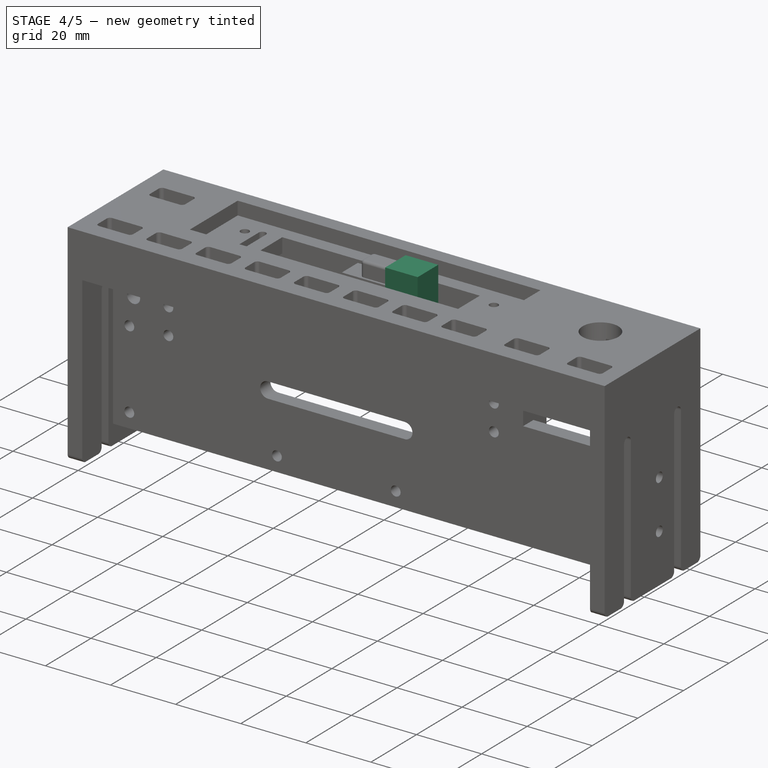
[diagram: stage 4 of 5 — iso view after this stage's code; geometry added in this stage tinted green]
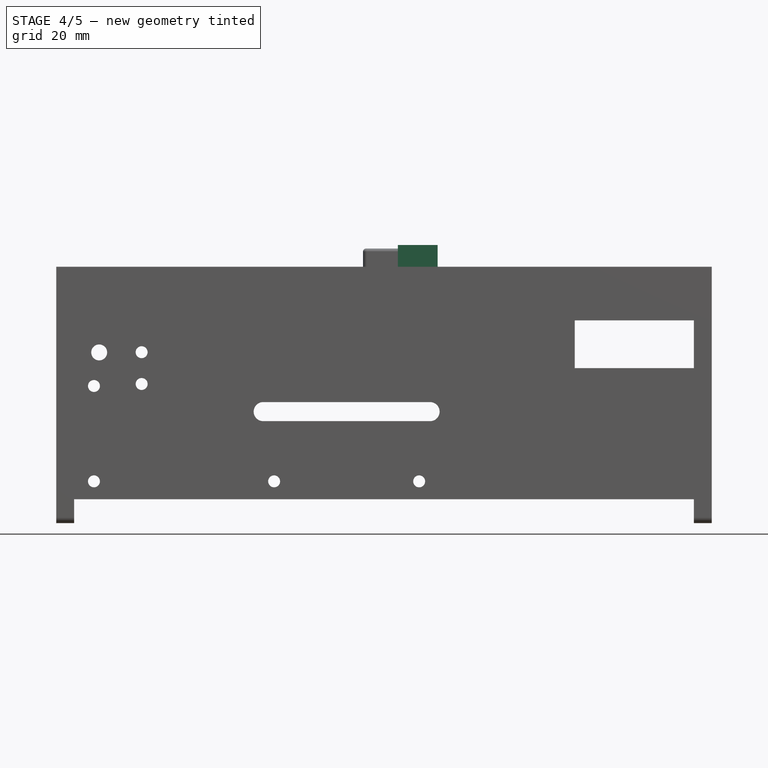
[diagram: stage 4 of 5 — front view after this stage's code; geometry added in this stage tinted green]
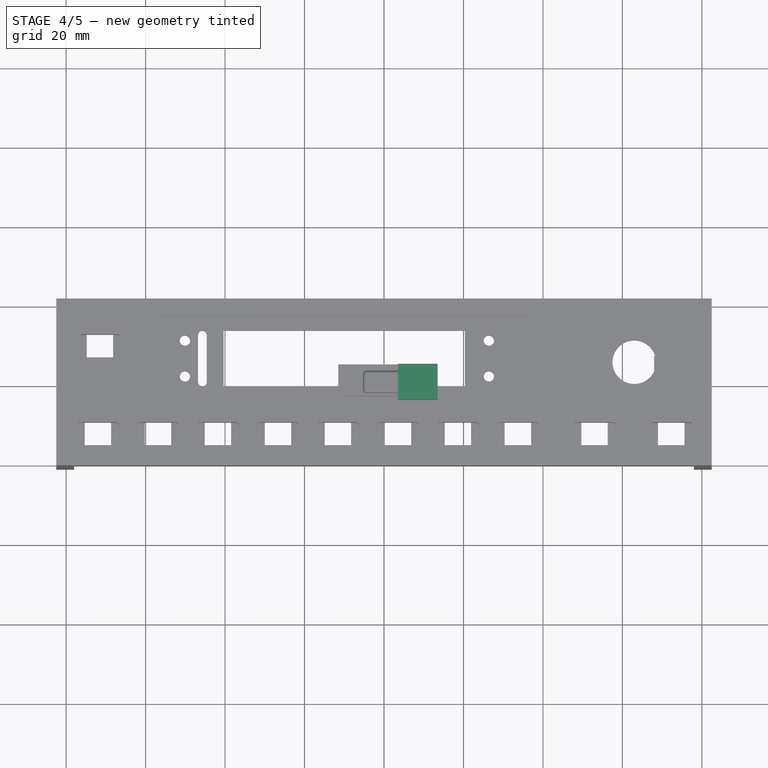
[diagram: stage 4 of 5 — top view after this stage's code; geometry added in this stage tinted green]
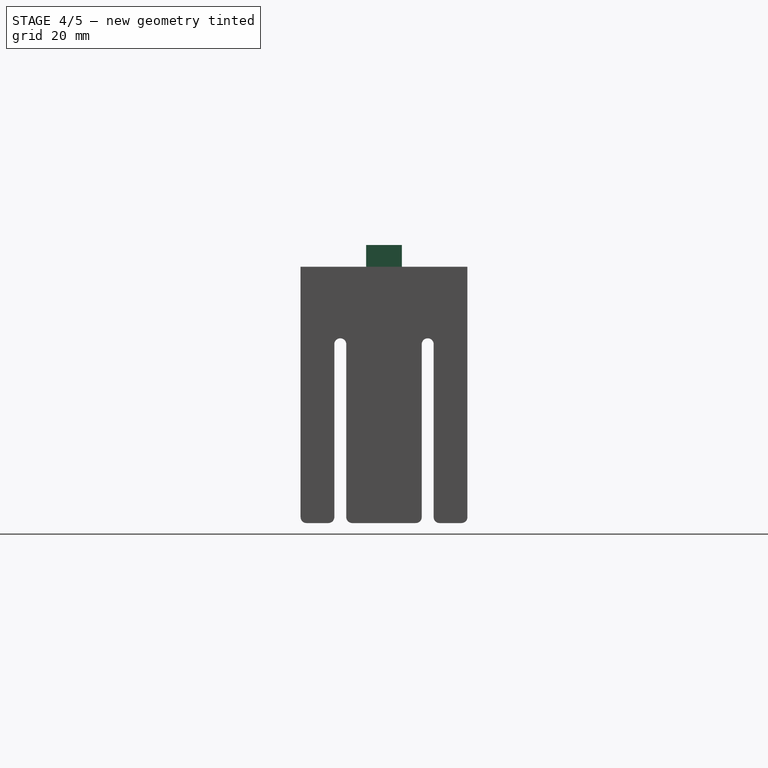
[diagram: stage 4 of 5 — right view after this stage's code; geometry added in this stage tinted green]
FEATURE [Sketcher::SketchObject] Sketch031  label="Sketch (leds)"
  sketch-geometry (5):
    g0: Circle CenterX=0 CenterY=0 CenterZ=0 NormalX=0 NormalY=0 NormalZ=1 Radius=1.7
    g1: Circle CenterX=7 CenterY=0 CenterZ=0 NormalX=0 NormalY=0 NormalZ=1 Radius=1.7
    g2: Circle CenterX=-7 CenterY=0 CenterZ=0 NormalX=0 NormalY=0 NormalZ=1 Radius=1.7
    g3: LineSegment [constr] StartX=-7 StartY=0 StartZ=0 EndX=0 EndY=0 EndZ=0
    g4: LineSegment [constr] StartX=0 StartY=0 StartZ=0 EndX=7 EndY=0 EndZ=0
  constraints (12):
    c: Coincident(g0,g-1)
    c: Coincident(g3,g2)
    c: Coincident(g3,g-1)
    c: Horizontal(g3)
    c: Coincident(g4,g-1)
    c: Coincident(g4,g1)
    c: Equal(g3,g4)
    c: Horizontal(g4)
    c: Equal(g0,g2)
    c: Equal(g2,g1)
    c: Radius(g1) = 1.7
    c: DistanceX(g3,g3) = 7
FEATURE [PartDesign::Pad] Pad022  label="Pad (leds)"
  Length = 3.8
  Length2 = 1
  Sketch = -> Sketch031
  Type = 4
FEATURE [Part::Fillet] Fillet003  label="Fillet (led body)"
  Base = -> Pad022
  Edges = 3 edges r=1.7: [Edge3,Edge6,Edge9]
FEATURE [Part::MultiFuse] Fusion  label="Fusion (marker window)"
  Shapes = -> [Pad026,Pad021]
FEATURE [Part::Cut] Cut005  label="Cut (marker window)"
  Base = -> Fusion
  Tool = -> Fillet003
FEATURE [Sketcher::SketchObject] Sketch042  label="Sketch (marker right)"
  sketch-geometry (4):
    g0: LineSegment StartX=13.5 StartY=4.5 StartZ=0 EndX=3.5 EndY=4.5 EndZ=0
    g1: LineSegment StartX=3.5 StartY=4.5 StartZ=0 EndX=3.5 EndY=-4.5 EndZ=0
    g2: LineSegment StartX=3.5 StartY=-4.5 StartZ=0 EndX=13.5 EndY=-4.5 EndZ=0
    g3: LineSegment StartX=13.5 StartY=-4.5 StartZ=0 EndX=13.5 EndY=4.5 EndZ=0
  constraints (12):
    c: Coincident(g0,g1)
    c: Coincident(g1,g2)
    c: Coincident(g2,g3)
    c: Coincident(g3,g0)
    c: Horizontal(g0)
    c: Horizontal(g2)
    c: Vertical(g1)
    c: Vertical(g3)
    c: DistanceY(g3,g3) = 9
    c: DistanceX(g0,g0) = 10
    c: Symmetric(g0,g2,g-1)
    c: DistanceX(g-1,g0) = 3.5
FEATURE [PartDesign::Pad] Pad029  label="Pad (marker right)"
  Length = 10
  Length2 = 1
  Sketch = -> Sketch042
  Type = 4
FEATURE [Part::FeaturePython] Clone003  label="Clone of Cut (marker window right)"  # Draft clone (typed FeaturePython)
  Objects = -> [Cut005]
  Scale = (1,1,1)
FEATURE [Part::MultiCommon] Common002  label="Common (marker center)"
  Shapes = -> [Pad028,Cut005]
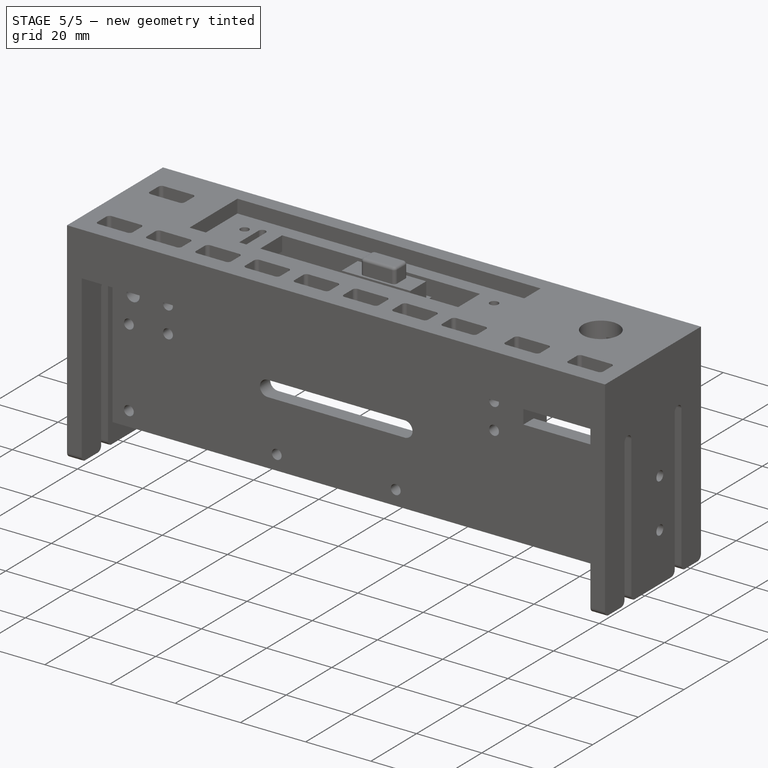
[diagram: stage 5 of 5 — iso view after this stage's code; geometry added in this stage tinted green]
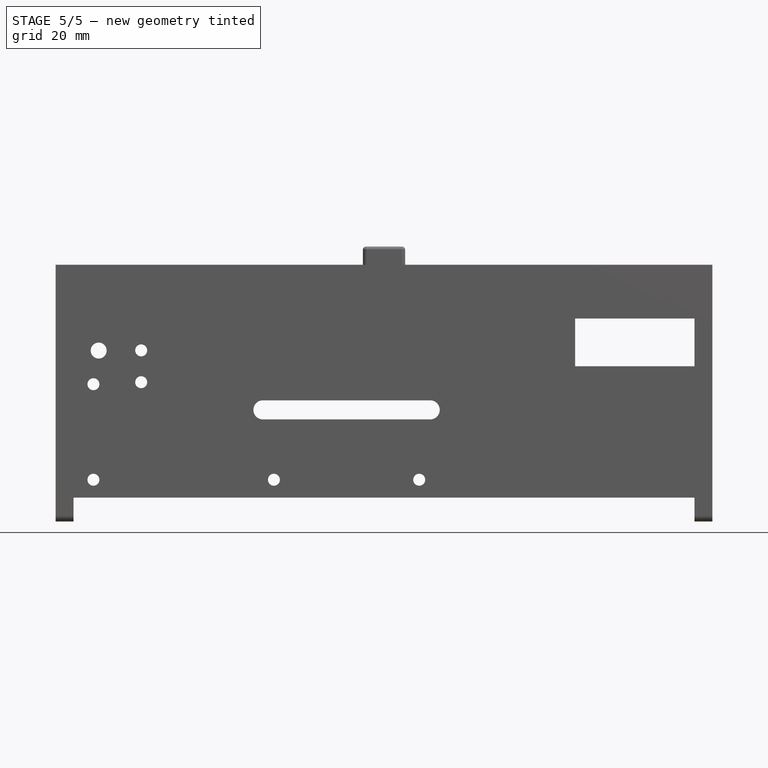
[diagram: stage 5 of 5 — front view after this stage's code; geometry added in this stage tinted green]
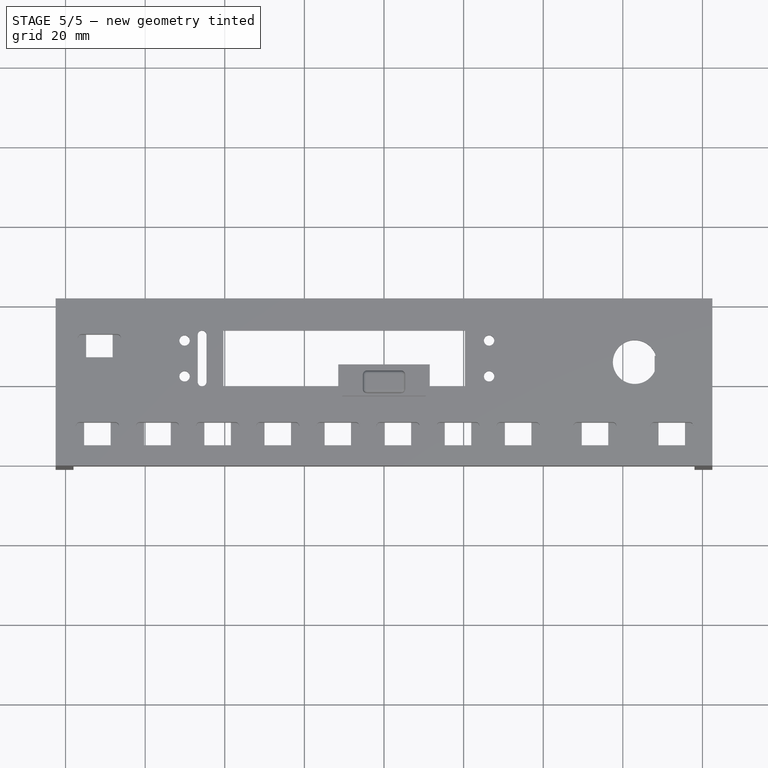
[diagram: stage 5 of 5 — top view after this stage's code; geometry added in this stage tinted green]
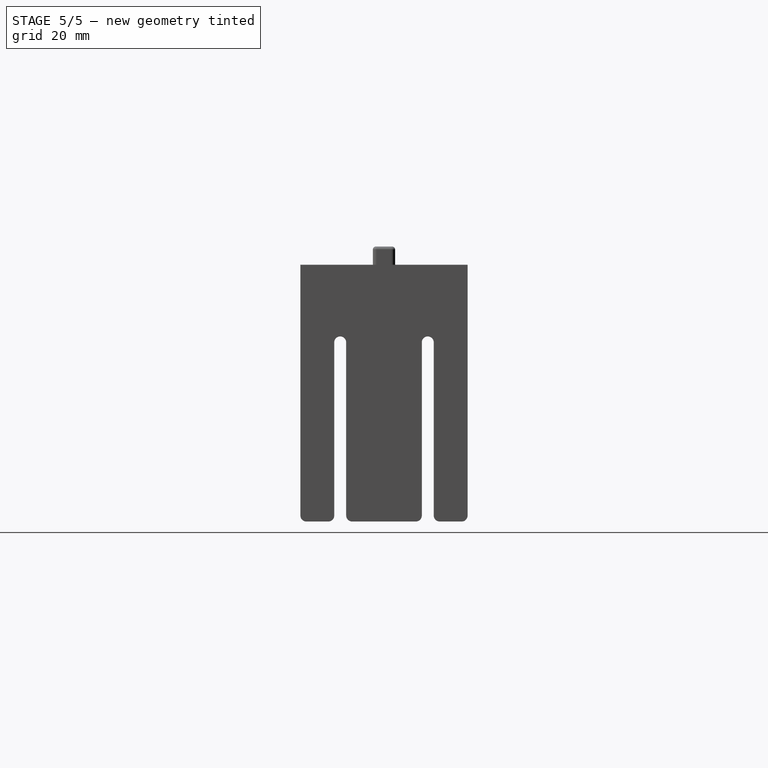
[diagram: stage 5 of 5 — right view after this stage's code; geometry added in this stage tinted green]
FEATURE [Sketcher::SketchObject] Sketch032  label="Sketch (marker mount)"
  Placement = pos=(0,0,-1) rot=(0,0,1;0rad)
  sketch-geometry (44):
    g0: LineSegment StartX=-11.5 StartY=4.5 StartZ=0 EndX=11.5 EndY=4.5 EndZ=0
    g1: LineSegment StartX=11.5 StartY=-4.5 StartZ=0 EndX=-11.5 EndY=-4.5 EndZ=0
    g2: LineSegment [constr] StartX=-11.5 StartY=4.5 StartZ=0 EndX=0 EndY=0 EndZ=0
    g3: LineSegment [constr] StartX=0 StartY=0 StartZ=0 EndX=11.5 EndY=-4.5 EndZ=0
    g4: LineSegment StartX=-11.5 StartY=4.5 StartZ=0 EndX=-11.5 EndY=-4.5 EndZ=0
    g5: LineSegment StartX=11.5 StartY=4.5 StartZ=0 EndX=11.5 EndY=-4.5 EndZ=0
    g6: LineSegment [constr] StartX=0 StartY=0 StartZ=0 EndX=-7 EndY=0 EndZ=0
    g7: LineSegment [constr] StartX=0 StartY=0 StartZ=0 EndX=7 EndY=0 EndZ=0
    g8: ArcOfCircle CenterX=7 CenterY=0 CenterZ=0 NormalX=0 NormalY=0 NormalZ=1 Radius=2.15 StartAngle=1.23917 EndAngle=1.90242
    g9: ArcOfCircle CenterX=7 CenterY=0 CenterZ=0 NormalX=0 NormalY=0 NormalZ=1 Radius=2.15 StartAngle=4.38076 EndAngle=5.04402
    g10: LineSegment [constr] StartX=7.7 StartY=2.03286 StartZ=0 EndX=6.3 EndY=-2.03286 EndZ=0
    g11: LineSegment [constr] StartX=6.3 StartY=2.03286 StartZ=0 EndX=7.7 EndY=-2.03286 EndZ=0
    g12: LineSegment StartX=6.3 StartY=2.03286 StartZ=0 EndX=6.3 EndY=0.632855 EndZ=0
    g13: LineSegment StartX=6.3 StartY=-2.03286 StartZ=0 EndX=6.3 EndY=-0.632855 EndZ=0
    g14: LineSegment StartX=7.7 StartY=2.03286 StartZ=0 EndX=7.7 EndY=0.632855 EndZ=0
    g15: LineSegment StartX=7.7 StartY=-2.03286 StartZ=0 EndX=7.7 EndY=-0.632855 EndZ=0
    g16: LineSegment [constr] StartX=7.7 StartY=0.632855 StartZ=0 EndX=7.7 EndY=-0.632855 EndZ=0
    g17: LineSegment [constr] StartX=6.3 StartY=0.632855 StartZ=0 EndX=6.3 EndY=-0.632855 EndZ=0
    g18: LineSegment StartX=6.3 StartY=0.632855 StartZ=0 EndX=7.7 EndY=0.632855 EndZ=0
    g19: LineSegment StartX=6.3 StartY=-0.632855 StartZ=0 EndX=7.7 EndY=-0.632855 EndZ=0
    g20: ArcOfCircle CenterX=0 CenterY=0 CenterZ=0 NormalX=0 NormalY=0 NormalZ=1 Radius=2.15 StartAngle=1.23917 EndAngle=1.90242
    g21: ArcOfCircle CenterX=0 CenterY=0 CenterZ=0 NormalX=0 NormalY=0 NormalZ=1 Radius=2.15 StartAngle=4.38076 EndAngle=5.04402
    g22: LineSegment [constr] StartX=0.7 StartY=2.03286 StartZ=0 EndX=-0.7 EndY=-2.03286 EndZ=0
    g23: LineSegment [constr] StartX=-0.7 StartY=2.03286 StartZ=0 EndX=0.7 EndY=-2.03286 EndZ=0
    g24: LineSegment StartX=-0.7 StartY=2.03286 StartZ=0 EndX=-0.7 EndY=0.632855 EndZ=0
    g25: LineSegment StartX=-0.7 StartY=-2.03286 StartZ=0 EndX=-0.7 EndY=-0.632855 EndZ=0
    g26: LineSegment StartX=0.7 StartY=2.03286 StartZ=0 EndX=0.7 EndY=0.632855 EndZ=0
    g27: LineSegment StartX=0.7 StartY=-2.03286 StartZ=0 EndX=0.7 EndY=-0.632855 EndZ=0
    g28: LineSegment [constr] StartX=0.7 StartY=0.632855 StartZ=0 EndX=0.7 EndY=-0.632855 EndZ=0
    g29: LineSegment [constr] StartX=-0.7 StartY=0.632855 StartZ=0 EndX=-0.7 EndY=-0.632855 EndZ=0
    g30: LineSegment StartX=-0.7 StartY=0.632855 StartZ=0 EndX=0.7 EndY=0.632855 EndZ=0
    g31: LineSegment StartX=-0.7 StartY=-0.632855 StartZ=0 EndX=0.7 EndY=-0.632855 EndZ=0
    g32: ArcOfCircle CenterX=-7 CenterY=0 CenterZ=0 NormalX=0 NormalY=0 NormalZ=1 Radius=2.15 StartAngle=1.23917 EndAngle=1.90242
    g33: ArcOfCircle CenterX=-7 CenterY=0 CenterZ=0 NormalX=0 NormalY=0 NormalZ=1 Radius=2.15 StartAngle=4.38076 EndAngle=5.04402
    g34: LineSegment [constr] StartX=-6.3 StartY=2.03286 StartZ=0 EndX=-7.7 EndY=-2.03286 EndZ=0
    g35: LineSegment [constr] StartX=-7.7 StartY=2.03286 StartZ=0 EndX=-6.3 EndY=-2.03286 EndZ=0
    g36: LineSegment StartX=-7.7 StartY=2.03286 StartZ=0 EndX=-7.7 EndY=0.632855 EndZ=0
    g37: LineSegment StartX=-7.7 StartY=-2.03286 StartZ=0 EndX=-7.7 EndY=-0.632855 EndZ=0
    g38: LineSegment StartX=-6.3 StartY=2.03286 StartZ=0 EndX=-6.3 EndY=0.632855 EndZ=0
    g39: LineSegment StartX=-6.3 StartY=-2.03286 StartZ=0 EndX=-6.3 EndY=-0.632855 EndZ=0
    g40: LineSegment [constr] StartX=-6.3 StartY=0.632855 StartZ=0 EndX=-6.3 EndY=-0.632855 EndZ=0
    g41: LineSegment [constr] StartX=-7.7 StartY=0.632855 StartZ=0 EndX=-7.7 EndY=-0.632855 EndZ=0
    g42: LineSegment StartX=-7.7 StartY=0.632855 StartZ=0 EndX=-6.3 EndY=0.632855 EndZ=0
    g43: LineSegment StartX=-7.7 StartY=-0.632855 StartZ=0 EndX=-6.3 EndY=-0.632855 EndZ=0
  constraints (124):
    c: Horizontal(g0)
    c: Horizontal(g1)
    c: DistanceY(g1,g0) = 9
    c: DistanceX(g0,g0) = 23
    c: Parallel(g3,g2)
    c: Equal(g3,g2)
    c: Coincident(g4,g0)
    c: Coincident(g4,g1)
    c: Vertical(g4)
    c: Coincident(g5,g0)
    c: Coincident(g5,g1)
    c: Vertical(g5)
    c: Coincident(g1,g3)
    c: Coincident(g0,g2)
    c: Horizontal(g7)
    c: Equal(g6,g7)
    c: DistanceX(g7,g7) = 7
    c: Coincident(g8,g7)
    c: Coincident(g9,g7)
    c: Coincident(g10,g8)
    c: Coincident(g10,g9)
    c: Coincident(g11,g8)
    c: Coincident(g11,g9)
    c: Coincident(g12,g8)
    c: Coincident(g13,g9)
    c: Coincident(g14,g8)
    c: Vertical(g14)
    c: Coincident(g15,g9)
    c: Coincident(g16,g14)
    c: Coincident(g16,g15)
    c: Coincident(g17,g12)
    c: Coincident(g17,g13)
    c: Vertical(g17)
    c: Vertical(g12)
    c: Vertical(g16)
    c: Vertical(g13)
    c: PointOnObject(g7,g10)
    c: PointOnObject(g7,g11)
    c: Radius(g8) = 2.15
    c: Vertical(g15)
    c: Coincident(g18,g12)
    c: Coincident(g18,g14)
    c: Horizontal(g18)
    c: Coincident(g19,g13)
    c: Coincident(g19,g15)
    c: Horizontal(g19)
    c: Equal(g12,g14)
    c: Equal(g14,g15)
    c: Equal(g15,g13)
    c: DistanceY(g14,g14) = 1.4
    c: DistanceX(g18,g18) = 1.4
    c: Coincident(g22,g20)
    c: Coincident(g22,g21)
    c: Coincident(g23,g20)
    c: Coincident(g23,g21)
    c: Coincident(g24,g20)
    c: Coincident(g25,g21)
    c: Coincident(g26,g20)
    c: Vertical(g26)
    c: Coincident(g27,g21)
    c: Coincident(g28,g26)
    c: Coincident(g28,g27)
    c: Coincident(g29,g24)
    c: Coincident(g29,g25)
    c: Vertical(g29)
    c: Vertical(g24)
    c: Vertical(g28)
    c: Vertical(g25)
    c: Equal(g8,g20) = 2.2
    c: Vertical(g27)
    c: Coincident(g30,g24)
    c: Coincident(g30,g26)
    c: Horizontal(g30)
    c: Coincident(g31,g25)
    c: Coincident(g31,g27)
    c: Horizontal(g31)
    c: Equal(g24,g26)
    c: Equal(g26,g27)
    c: Equal(g27,g25)
    c: Equal(g14,g26) = 1.4
    c: Equal(g18,g30) = 1.4
    c: Coincident(g34,g32)
    c: Coincident(g34,g33)
    c: Coincident(g35,g32)
    c: Coincident(g35,g33)
    c: Coincident(g36,g32)
    c: Coincident(g37,g33)
    c: Coincident(g38,g32)
    c: Vertical(g38)
    c: Coincident(g39,g33)
    c: Coincident(g40,g38)
    c: Coincident(g40,g39)
    c: Coincident(g41,g36)
    c: Coincident(g41,g37)
    c: Vertical(g41)
    c: Vertical(g36)
    c: Vertical(g40)
    c: Vertical(g37)
    c: Vertical(g39)
    c: Coincident(g42,g36)
    c: Coincident(g42,g38)
    c: Horizontal(g42)
    c: Coincident(g43,g37)
    c: Coincident(g43,g39)
    c: Horizontal(g43)
    c: Equal(g36,g38)
    c: Equal(g38,g39)
    c: Equal(g39,g37)
    c: PointOnObject(g-1,g22)
    c: PointOnObject(g-1,g23)
    c: Coincident(g32,g6)
    c: Coincident(g33,g6)
    c: Horizontal(g6)
    c: Coincident(g2,g3)
    c: Coincident(g2,g7)
    c: Coincident(g2,g20)
    c: Coincident(g2,g21)
    c: Coincident(g2,g-1)
    c: Coincident(g6,g-1)
    c: PointOnObject(g6,g34)
    c: Equal(g30,g42)
    c: Equal(g38,g24)
    c: Equal(g39,g38)
    c: Equal(g32,g20)
FEATURE [PartDesign::Pad] Pad023  label="Pad (marker mount)"
  Length = 3.5
  Length2 = 100
  Placement = pos=(0,0,-1) rot=(0,0,1;0rad)
  Reversed = true
  Sketch = -> Sketch032
  Type = 0
FEATURE [Sketcher::SketchObject] Sketch038  label="Sketch (led base)"
  Placement = pos=(0,0,-1) rot=(0,0,1;0rad)
  sketch-geometry (5):
    g0: Circle CenterX=0 CenterY=0 CenterZ=0 NormalX=0 NormalY=0 NormalZ=1 Radius=2.15
    g1: Circle CenterX=7 CenterY=0 CenterZ=0 NormalX=0 NormalY=0 NormalZ=1 Radius=2.15
    g2: Circle CenterX=-7 CenterY=0 CenterZ=0 NormalX=0 NormalY=0 NormalZ=1 Radius=2.15
    g3: LineSegment [constr] StartX=-7 StartY=0 StartZ=0 EndX=0 EndY=0 EndZ=0
    g4: LineSegment [constr] StartX=0 StartY=0 StartZ=0 EndX=7 EndY=0 EndZ=0
  constraints (12):
    c: Coincident(g0,g-1)
    c: Coincident(g3,g2)
    c: Coincident(g3,g-1)
    c: Horizontal(g3)
    c: Coincident(g4,g-1)
    c: Coincident(g4,g1)
    c: Equal(g3,g4)
    c: Horizontal(g4)
    c: Equal(g0,g2)
    c: Equal(g2,g1)
    c: Radius(g1) = 2.15
    c: DistanceX(g3,g3) = 7
FEATURE [PartDesign::Pad] Pad025  label="Pad (led base)"
  Length = 1.4
  Length2 = 100
  Placement = pos=(0,0,-1) rot=(0,0,1;0rad)
  Reversed = true
  Sketch = -> Sketch038
  Type = 0
FEATURE [Part::Cut] Cut004  label="Cut (marker mount)"
  Base = -> Pad023
  Tool = -> Pad025
FEATURE [Sketcher::SketchObject] Sketch040  label="Sketch (marker left)"
  sketch-geometry (4):
    g0: LineSegment StartX=-3.5 StartY=4.5 StartZ=0 EndX=-13.5 EndY=4.5 EndZ=0
    g1: LineSegment StartX=-13.5 StartY=4.5 StartZ=0 EndX=-13.5 EndY=-4.5 EndZ=0
    g2: LineSegment StartX=-13.5 StartY=-4.5 StartZ=0 EndX=-3.5 EndY=-4.5 EndZ=0
    g3: LineSegment StartX=-3.5 StartY=-4.5 StartZ=0 EndX=-3.5 EndY=4.5 EndZ=0
  constraints (12):
    c: Coincident(g0,g1)
    c: Coincident(g1,g2)
    c: Coincident(g2,g3)
    c: Coincident(g3,g0)
    c: Horizontal(g0)
    c: Horizontal(g2)
    c: Vertical(g1)
    c: Vertical(g3)
    c: DistanceY(g3,g3) = 9
    c: DistanceX(g0,g0) = 10
    c: DistanceX(g0,g-1) = 3.5
    c: Symmetric(g0,g2,g-1)
FEATURE [PartDesign::Pad] Pad027  label="Pad (marker left)"
  Length = 10
  Length2 = 1
  Sketch = -> Sketch040
  Type = 4
FEATURE [Part::FeaturePython] Clone002  label="Clone of Cut (marker window left)"  # Draft clone (typed FeaturePython)
  Objects = -> [Cut005]
  Scale = (1,1,1)
FEATURE [Part::MultiCommon] Common  label="Common (marker left)"
  Shapes = -> [Pad027,Clone002]
FEATURE [Part::MultiCommon] Common001  label="Common (marker right)"
  Shapes = -> [Pad029,Clone003]
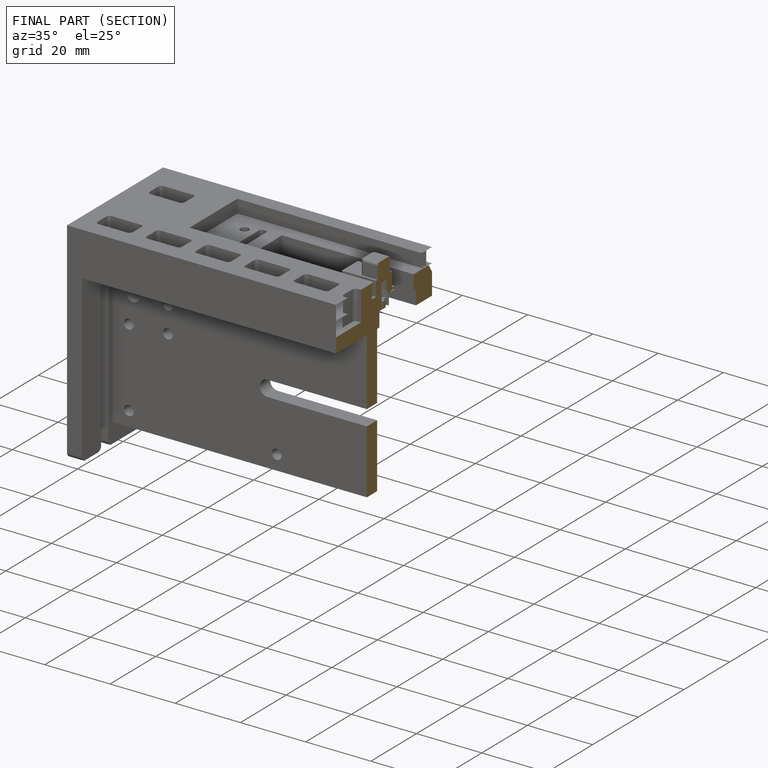
[diagram: finished part — half-section view (interior)]
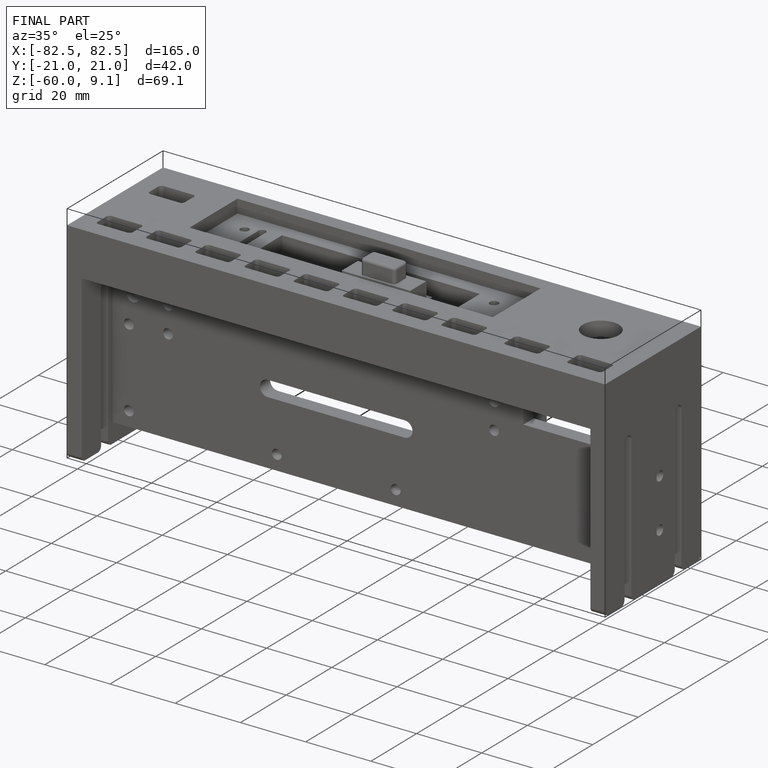
[diagram: finished part — iso view with bounding-box wireframe]
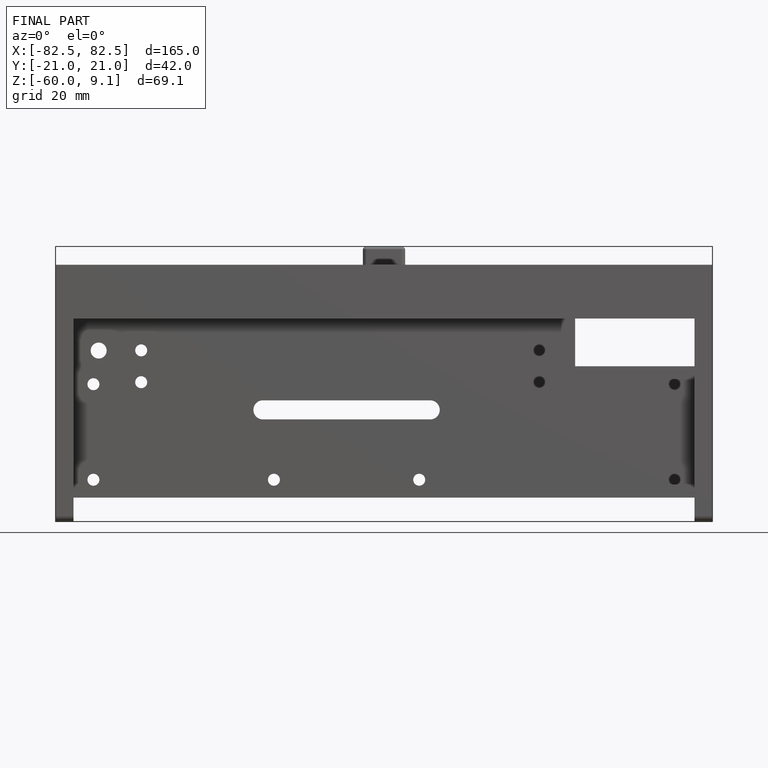
[diagram: finished part — front view with bounding-box wireframe]
